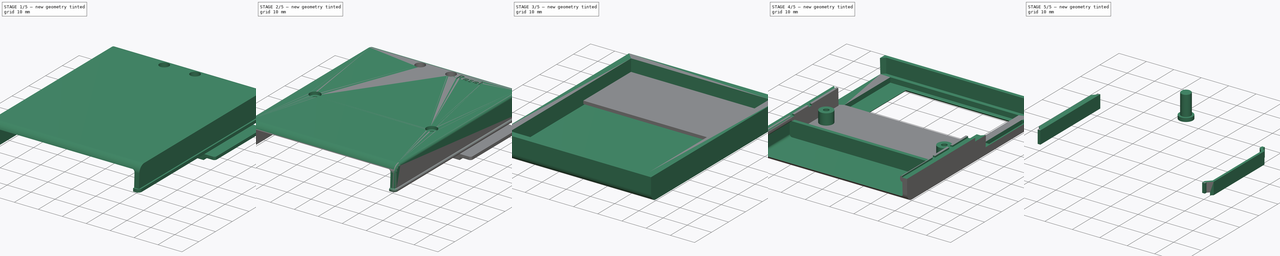
[diagram: build sequence overview — one tinted view per stage of 5, left to right]
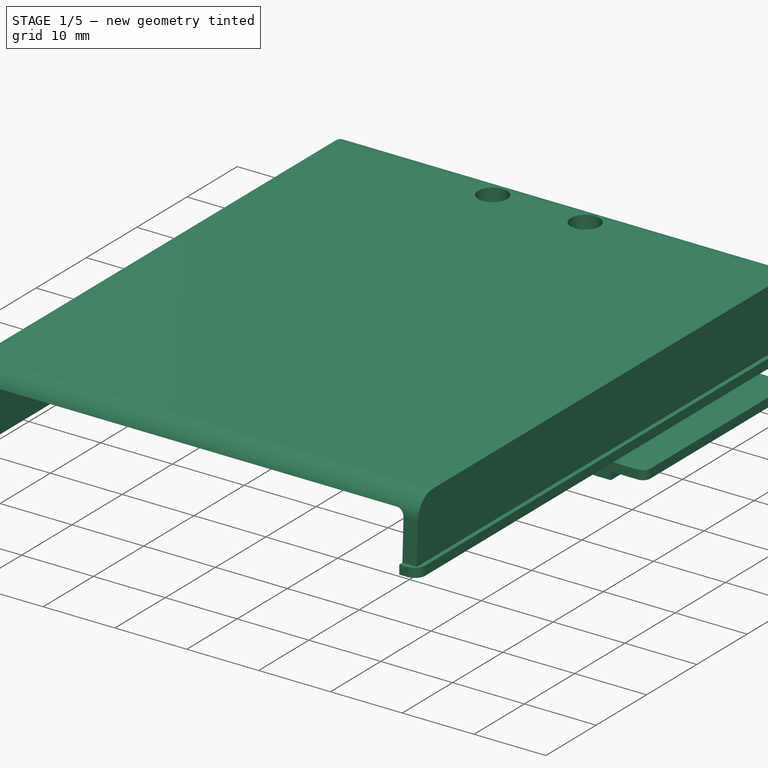
[diagram: stage 1 of 5 — iso view after this stage's code; geometry added in this stage tinted green]
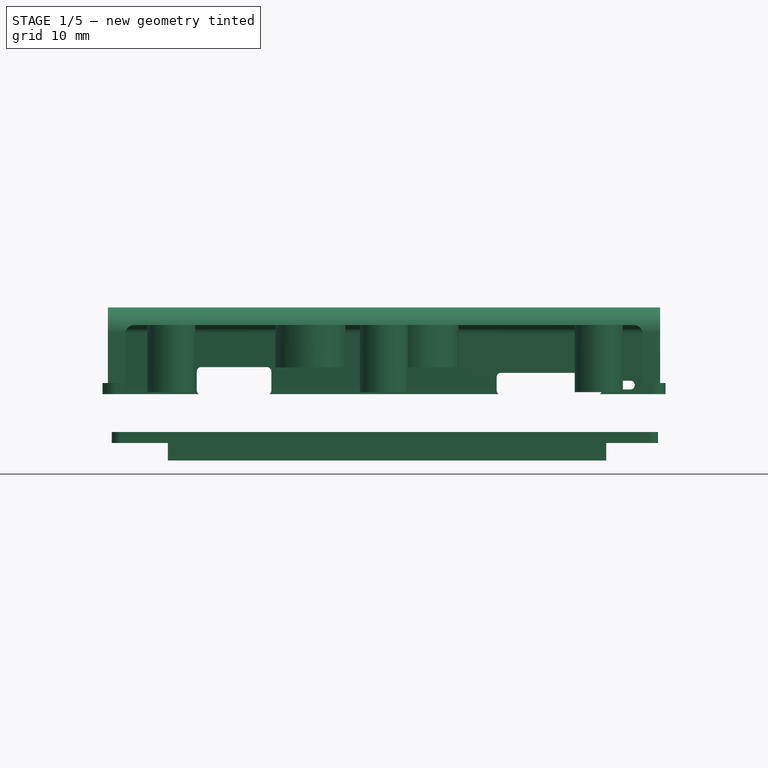
[diagram: stage 1 of 5 — front view after this stage's code; geometry added in this stage tinted green]
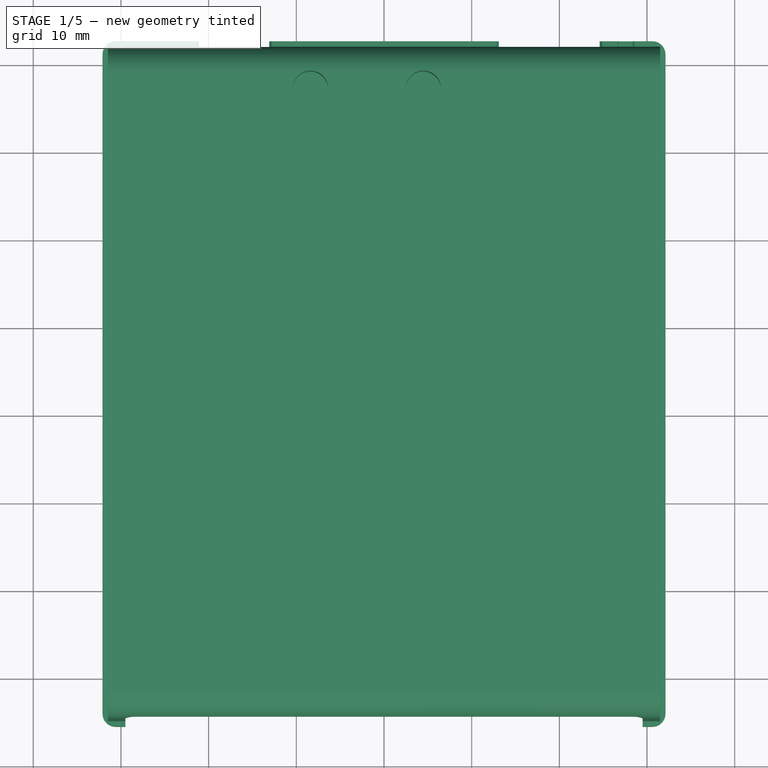
[diagram: stage 1 of 5 — top view after this stage's code; geometry added in this stage tinted green]
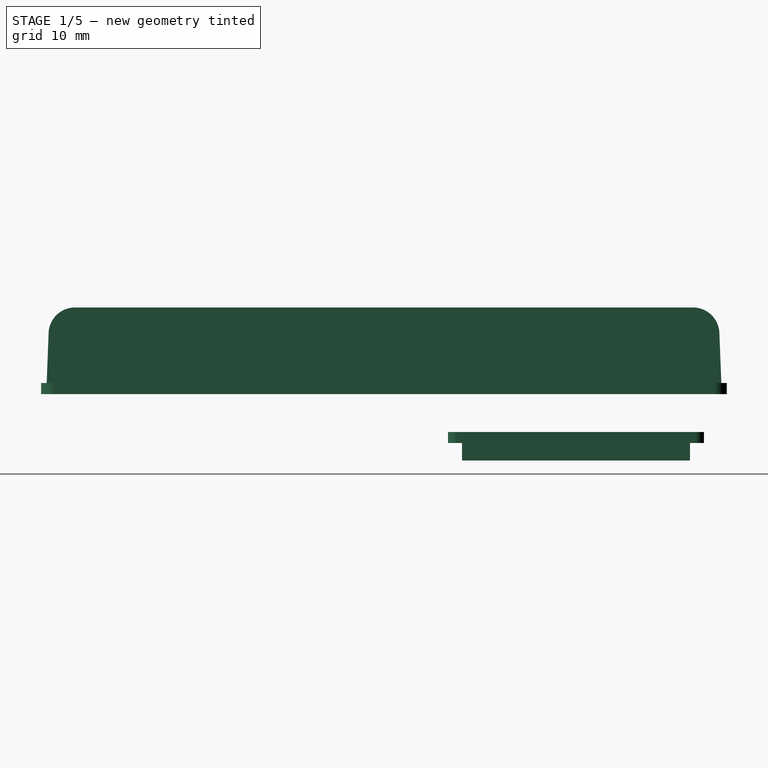
[diagram: stage 1 of 5 — right view after this stage's code; geometry added in this stage tinted green]
FCSTD DOCUMENT  (FreeCAD 1.0R39285 (Git))
Label: DecentCart2350
License: Creative Commons Attribution 4.0
LicenseURL: https://creativecommons.org/licenses/by/4.0/
objects: Part::Feature×97, App::Link×62, Sketcher::SketchObject×31, App::Part×27, PartDesign::Pocket×19, PartDesign::Pad×18, PartDesign::SubShapeBinder×14, PartDesign::Body×7, PartDesign::Fillet×5, PartDesign::Point×2, PartDesign::Draft×2, PartDesign::Thickness×2, PartDesign::Plane×2, PartDesign::Line×1, PartDesign::Chamfer×1, PartDesign::FeatureBase×1, Part::Part2DObjectPython×1, PartDesign::CoordinateSystem×1
note: 330 computed .brp shape members not serialized (recipe doc carries the construction recipe); baked Part::Feature solids carry a one-line shape summary decoded from their .brp

FEATURE [Sketcher::SketchObject] Sketch
  ArcFitTolerance = 1e-06
  AttachmentSupport = -> [YZ_Plane008]
  FullyConstrained = true
  MakeInternals = false
  MapMode = 5
  Placement = pos=(0,0,0) rot=(0.57735,0.57735,0.57735;2.0944rad)
  sketch-geometry (7):
    g0: LineSegment StartX=-5 StartY=0 StartZ=0 EndX=-4.75 EndY=6.36769 EndZ=0
    g1: ArcOfCircle CenterX=-1.75231 CenterY=6.25 CenterZ=0 NormalX=0 NormalY=0 NormalZ=1 AngleXU=0 Radius=3 StartAngle=1.5708 EndAngle=3.10235
    g2: LineSegment StartX=-1.75231 StartY=9.25 StartZ=0 EndX=68.7523 EndY=9.25 EndZ=0
    g3: ArcOfCircle CenterX=68.7523 CenterY=6.25 CenterZ=0 NormalX=0 NormalY=0 NormalZ=1 AngleXU=0 Radius=3 StartAngle=0.0392405 EndAngle=1.5708
    g4: LineSegment StartX=71.75 StartY=6.36769 StartZ=0 EndX=72 EndY=0 EndZ=0
    g5: LineSegment StartX=72 StartY=0 StartZ=0 EndX=-5 EndY=0 EndZ=0
    g6: LineSegment [constr] StartX=33.5 StartY=0 StartZ=0 EndX=33.5 EndY=9.25 EndZ=0
  constraints (18):
    c: PointOnObject(g0,g-1)
    c: Tangent(g0,g1) = 1.5708
    c: Horizontal(g2)
    c: Tangent(g2,g3) = 1.5708
    c: Coincident(g4,g5)
    c: Coincident(g5,g0)
    c: Tangent(g3,g4) = 1.5708
    c: Tangent(g1,g2) = 1.5708
    c: Horizontal(g0,g3)
    c: Radius(g1) = 3
    c: DistanceX(g0,g3) = 76.5
    c: DistanceX(g0,g4) = 77
    c: PointOnObject(g6,g2)
    c: Symmetric(g1,g2,g6)
    c: DistanceY(g4,g2) = 9.25
    c: DistanceX(g0,g-3) = 5
    c: Symmetric(g0,g4,g6)
    c: PointOnObject(g6,g-1)
FEATURE [PartDesign::Pad] Pad  label="General shape of the thing"
  Direction = (1,0,0)
  Length = 63
  Length2 = 10
  Midplane = true
  Placement = pos=(0,0,0) rot=(1,1,1;2.0944rad)
  Profile = -> Sketch
  ReferenceAxis = -> Sketch [N_Axis]
  Suppressed = false
  Type = 0
FEATURE [PartDesign::Thickness] Thickness  label="Dig the insides"
  Base = -> Pad [Face6]
  BaseFeature = -> Pad
  Intersection = false
  Join = 0
  Mode = 0
  Reversed = true
  SupportTransform = false
  Suppressed = false
  Value = 2
FEATURE [Sketcher::SketchObject] Sketch001
  ArcFitTolerance = 1e-06
  AttachmentSupport = -> [Thickness]
  ExternalGeometry = -> [Thickness]
  FullyConstrained = true
  MakeInternals = false
  MapMode = 5
  Placement = pos=(0,0,-2e-16) rot=(1,0,0;3.14159rad)
  expr: Constraints[15] = .Constraints.offset
  expr: Constraints[16] = .Constraints.offset
  expr: Constraints[17] = .Constraints.offset
  sketch-geometry (16):
    g0: LineSegment StartX=-29.5 StartY=2.99846 StartZ=0 EndX=-29.5 EndY=-69.9985 EndZ=0
    g1: LineSegment StartX=-29.5 StartY=-69.9985 StartZ=0 EndX=29.5 EndY=-69.9985 EndZ=0
    g2: LineSegment StartX=29.5 StartY=-69.9985 StartZ=0 EndX=29.5 EndY=2.99846 EndZ=0
    g3: LineSegment StartX=29.5 StartY=2.99846 StartZ=0 EndX=-29.5 EndY=2.99846 EndZ=0
    g4: LineSegment StartX=-32.1 StartY=4.1 StartZ=0 EndX=-32.1 EndY=-71.1 EndZ=0
    g5: LineSegment StartX=-30.6 StartY=-72.6 StartZ=0 EndX=30.6 EndY=-72.6 EndZ=0
    g6: LineSegment StartX=32.1 StartY=-71.1 StartZ=0 EndX=32.1 EndY=4.1 EndZ=0
    g7: LineSegment StartX=30.6 StartY=5.6 StartZ=0 EndX=-30.6 EndY=5.6 EndZ=0
    g8: ArcOfCircle CenterX=-30.6 CenterY=4.1 CenterZ=0 NormalX=0 NormalY=0 NormalZ=1 AngleXU=0 Radius=1.5 StartAngle=1.5708 EndAngle=3.14159
    g9: GeomPoint [constr] X=-32.1 Y=5.6 Z=0
    g10: ArcOfCircle CenterX=30.6 CenterY=4.1 CenterZ=0 NormalX=0 NormalY=0 NormalZ=1 AngleXU=0 Radius=1.5 StartAngle=3e-16 EndAngle=1.5708
    g11: GeomPoint [constr] X=32.1 Y=5.6 Z=0
    g12: ArcOfCircle CenterX=30.6 CenterY=-71.1 CenterZ=0 NormalX=0 NormalY=0 NormalZ=1 AngleXU=0 Radius=1.5 StartAngle=4.71239 EndAngle=6.28319
    g13: GeomPoint [constr] X=32.1 Y=-72.6 Z=0
    g14: ArcOfCircle CenterX=-30.6 CenterY=-71.1 CenterZ=0 NormalX=0 NormalY=0 NormalZ=1 AngleXU=0 Radius=1.5 StartAngle=3.14159 EndAngle=4.71239
    g15: GeomPoint [constr] X=-32.1 Y=-72.6 Z=0
  constraints (38):
    c: Coincident(g0,g1)
    c: Coincident(g1,g2)
    c: Coincident(g2,g3)
    c: Coincident(g3,g0)
    c: Vertical(g0)
    c: Vertical(g2)
    c: Horizontal(g1)
    c: Horizontal(g3)
    c: Coincident(g0,g-8)
    c: Coincident(g1,g-10)
    c: Vertical(g4)
    c: Vertical(g6)
    c: Horizontal(g5)
    c: Horizontal(g7)
    c: DistanceX(g9,g-3) = 0.6  'offset'
    c: DistanceY(g-3,g9) = 0.6
    c: DistanceX(g-5,g13) = 0.6
    c: DistanceY(g13,g-5) = 0.6
    c: PointOnObject(g9,g4)
    c: PointOnObject(g9,g7)
    c: Tangent(g4,g8) = -1.5708
    c: Tangent(g7,g8) = -1.5708
    c: PointOnObject(g11,g7)
    c: PointOnObject(g11,g6)
    c: Tangent(g7,g10) = -1.5708
    c: Tangent(g6,g10) = -1.5708
    c: PointOnObject(g13,g6)
    c: PointOnObject(g13,g5)
    c: Tangent(g6,g12) = -1.5708
    c: Tangent(g5,g12) = -1.5708
    c: PointOnObject(g15,g5)
    c: PointOnObject(g15,g4)
    c: Tangent(g5,g14) = -1.5708
    c: Tangent(g4,g14) = -1.5708
    c: Radius(g8) = 1.5
    c: Equal(g8,g10)
    c: Equal(g8,g14)
    c: Equal(g8,g12)
FEATURE [PartDesign::Pad] Pad001  label="Rim"
  BaseFeature = -> Thickness
  Direction = (0,0,-1)
  Length = 1.27
  Length2 = 10
  Midplane = true
  Profile = -> Sketch001
  ReferenceAxis = -> Sketch001 [N_Axis]
  Refine = true
  Suppressed = false
  Type = 0
FEATURE [PartDesign::Plane] DatumPlane  label="Top of PCB"
  AttachmentOffset = pos=(0,0,-2) rot=(0,0,1;0rad)
  AttachmentSupport = -> [Pad001]
  Length = 80.0315
  MapMode = 2
  Placement = pos=(0,0,-2) rot=(0,0,1;0rad)
  ResizeMode = 0
  Width = 113.432
FEATURE [PartDesign::Plane] DatumPlane001  label="Bottom of PCB"
  AttachmentOffset = pos=(0,0,-0.4) rot=(0,0,1;0rad)
  AttachmentSupport = -> [XY_Plane008]
  Length = 80.0315
  MapMode = 5
  Placement = pos=(0,0,-0.4) rot=(0,0,1;0rad)
  ResizeMode = 0
  Width = 113.432
FEATURE [Sketcher::SketchObject] Sketch002
  ArcFitTolerance = 1e-06
  AttachmentOffset = pos=(0,0,-73) rot=(0,0,1;0rad)
  AttachmentSupport = -> [XZ_Plane008]
  FullyConstrained = true
  MakeInternals = false
  MapMode = 5
  Placement = pos=(0,73,-1.62e-14) rot=(1,0,0;1.5708rad)
  sketch-geometry (28):
    g0: LineSegment StartX=12.85 StartY=1.3 StartZ=0 EndX=12.85 EndY=-0.2 EndZ=0
    g1: LineSegment StartX=13.35 StartY=-0.7 StartZ=0 EndX=24.35 EndY=-0.7 EndZ=0
    g2: LineSegment StartX=24.85 StartY=-0.2 StartZ=0 EndX=24.85 EndY=1.3 EndZ=0
    g3: LineSegment StartX=24.35 StartY=1.8 StartZ=0 EndX=13.35 EndY=1.8 EndZ=0
    g4: LineSegment StartX=-21.35 StartY=1.95 StartZ=0 EndX=-21.35 EndY=-0.2 EndZ=0
    g5: LineSegment StartX=-20.85 StartY=-0.7 StartZ=0 EndX=-13.35 EndY=-0.7 EndZ=0
    g6: LineSegment StartX=-12.85 StartY=-0.2 StartZ=0 EndX=-12.85 EndY=1.95 EndZ=0
    g7: LineSegment StartX=-13.35 StartY=2.45 StartZ=0 EndX=-20.85 EndY=2.45 EndZ=0
    g8: ArcOfCircle CenterX=13.35 CenterY=1.3 CenterZ=0 NormalX=0 NormalY=0 NormalZ=1 AngleXU=0 Radius=0.5 StartAngle=1.5708 EndAngle=3.14159
    g9: GeomPoint [constr] X=12.85 Y=1.8 Z=0
    g10: ArcOfCircle CenterX=13.35 CenterY=-0.2 CenterZ=0 NormalX=0 NormalY=0 NormalZ=1 AngleXU=0 Radius=0.5 StartAngle=3.14159 EndAngle=4.71239
    g11: GeomPoint [constr] X=12.85 Y=-0.7 Z=0
    g12: ArcOfCircle CenterX=24.35 CenterY=1.3 CenterZ=0 NormalX=0 NormalY=0 NormalZ=1 AngleXU=0 Radius=0.5 StartAngle=2e-16 EndAngle=1.5708
    g13: GeomPoint [constr] X=24.85 Y=1.8 Z=0
    g14: ArcOfCircle CenterX=24.35 CenterY=-0.2 CenterZ=0 NormalX=0 NormalY=0 NormalZ=1 AngleXU=0 Radius=0.5 StartAngle=4.71239 EndAngle=6.28319
    g15: GeomPoint [constr] X=24.85 Y=-0.7 Z=0
    g16: ArcOfCircle CenterX=-20.85 CenterY=1.95 CenterZ=0 NormalX=0 NormalY=0 NormalZ=1 AngleXU=0 Radius=0.5 StartAngle=1.5708 EndAngle=3.14159
    g17: GeomPoint [constr] X=-21.35 Y=2.45 Z=0
    g18: ArcOfCircle CenterX=-20.85 CenterY=-0.2 CenterZ=0 NormalX=0 NormalY=0 NormalZ=1 AngleXU=0 Radius=0.5 StartAngle=3.14159 EndAngle=4.71239
    g19: GeomPoint [constr] X=-21.35 Y=-0.7 Z=0
    g20: ArcOfCircle CenterX=-13.35 CenterY=-0.2 CenterZ=0 NormalX=0 NormalY=0 NormalZ=1 AngleXU=0 Radius=0.5 StartAngle=4.71239 EndAngle=6.28319
    g21: GeomPoint [constr] X=-12.85 Y=-0.7 Z=0
    g22: ArcOfCircle CenterX=-13.35 CenterY=1.95 CenterZ=0 NormalX=0 NormalY=0 NormalZ=1 AngleXU=0 Radius=0.5 StartAngle=0 EndAngle=1.5708
    g23: GeomPoint [constr] X=-12.85 Y=2.45 Z=0
    g24: ArcOfCircle CenterX=28.1 CenterY=0.4 CenterZ=0 NormalX=0 NormalY=0 NormalZ=1 AngleXU=0 Radius=0.5 StartAngle=4.71239 EndAngle=7.85398
    g25: ArcOfCircle CenterX=27.1 CenterY=0.4 CenterZ=0 NormalX=0 NormalY=0 NormalZ=1 AngleXU=0 Radius=0.5 StartAngle=1.5708 EndAngle=4.71239
    g26: LineSegment StartX=28.1 StartY=-0.1 StartZ=0 EndX=27.1 EndY=-0.1 EndZ=0
    g27: LineSegment StartX=28.1 StartY=0.9 StartZ=0 EndX=27.1 EndY=0.9 EndZ=0
  constraints (66):
    c: Vertical(g0)
    c: Vertical(g2)
    c: Horizontal(g1)
    c: Horizontal(g3)
    c: Vertical(g4)
    c: Vertical(g6)
    c: Horizontal(g5)
    c: Horizontal(g7)
    c: PointOnObject(g9,g3)
    c: PointOnObject(g9,g0)
    c: Tangent(g3,g8) = -1.5708
    c: Tangent(g0,g8) = -1.5708
    c: Radius(g8) = 0.5  'fillet'
    c: PointOnObject(g11,g1)
    c: PointOnObject(g11,g0)
    c: Tangent(g1,g10) = -1.5708
    c: Tangent(g0,g10) = -1.5708
    c: PointOnObject(g13,g2)
    c: PointOnObject(g13,g3)
    c: Tangent(g2,g12) = -1.5708
    c: Tangent(g3,g12) = -1.5708
    c: PointOnObject(g15,g2)
    c: PointOnObject(g15,g1)
    c: Tangent(g2,g14) = -1.5708
    c: Tangent(g1,g14) = -1.5708
    c: Equal(g8,g12)
    c: Equal(g8,g14)
    c: Equal(g8,g10)
    c: DistanceX(g-1,g0) = 12.85
    c: DistanceX(g0,g2) = 12
    c: PointOnObject(g17,g7)
    c: PointOnObject(g17,g4)
    c: Tangent(g7,g16) = -1.5708
    c: Tangent(g4,g16) = -1.5708
    c: PointOnObject(g19,g4)
    c: PointOnObject(g19,g5)
    c: Tangent(g4,g18) = -1.5708
    c: Tangent(g5,g18) = -1.5708
    c: PointOnObject(g21,g5)
    c: PointOnObject(g21,g6)
    c: Tangent(g5,g20) = -1.5708
    c: Tangent(g6,g20) = -1.5708
    c: PointOnObject(g23,g6)
    c: PointOnObject(g23,g7)
    c: Tangent(g6,g22) = -1.5708
    c: Tangent(g7,g22) = -1.5708
    c: Equal(g22,g8)
    c: Equal(g16,g22)
    c: Equal(g16,g20)
    c: Equal(g16,g18)
    c: DistanceX(g6,g-1) = 12.85
    c: DistanceX(g4,g6) = 8.5
    c: DistanceY(g5,g7) = 3.15
    c: DistanceY(g-1,g7) = 2.45
    c: DistanceY(g3,g7) = 0.65
    c: Horizontal(g1,g5)
    c: Tangent(g24,g26) = 1.5708
    c: Tangent(g24,g27) = -1.5708
    c: Tangent(g25,g26) = 1.5708
    c: Tangent(g25,g27) = -1.5708
    c: Equal(g24,g25)
    c: Horizontal(g26)
    c: DistanceY(g24,g24) = 1
    c: DistanceX(g25,g24) = 1
    c: DistanceY(g-1,g24) = 0.4
    c: DistanceX(g-1,g25) = 27.1
FEATURE [PartDesign::Pocket] Pocket  label="SD and USB slots"
  BaseFeature = -> Pad001
  Direction = (0,1,-2e-16)
  Length = 4
  Length2 = 5
  Profile = -> Sketch002
  ReferenceAxis = -> Sketch002 [N_Axis]
  Reversed = true
  Suppressed = false
  Type = 0
FEATURE [Sketcher::SketchObject] Sketch003
  ArcFitTolerance = 1e-06
  AttachmentOffset = pos=(0,0,-2) rot=(0,0,1;0rad)
  AttachmentSupport = -> [Pocket]
  FullyConstrained = true
  MakeInternals = false
  MapMode = 5
  Placement = pos=(0,2e-15,7.25) rot=(0,0,1;0rad)
  sketch-geometry (4):
    g0: Circle CenterX=-8.39 CenterY=67.1 CenterZ=0 NormalX=0 NormalY=0 NormalZ=1 AngleXU=0 Radius=4
    g1: Circle CenterX=4.49 CenterY=67.1 CenterZ=0 NormalX=0 NormalY=0 NormalZ=1 AngleXU=0 Radius=4
    g2: Circle CenterX=-8.39 CenterY=67.1 CenterZ=0 NormalX=0 NormalY=0 NormalZ=1 AngleXU=0 Radius=2
    g3: Circle CenterX=4.49 CenterY=67.1 CenterZ=0 NormalX=0 NormalY=0 NormalZ=1 AngleXU=0 Radius=2
  constraints (10):
    c: Horizontal(g0,g1)
    c: Equal(g0,g1)
    c: Diameter(g0) = 8
    c: Distance(g1,g-2) = 4.49
    c: Distance(g0,g-2) = 8.39
    c: Distance(g1,g-1) = 67.1
    c: Diameter(g2) = 4
    c: Coincident(g2,g0)
    c: Coincident(g3,g1)
    c: Equal(g3,g2)
FEATURE [PartDesign::Pad] Pad002  label="Button columns"
  BaseFeature = -> Pocket
  Direction = (0,0,1)
  Length = 4.85
  Length2 = 10
  Profile = -> Sketch003 [Edge2,Edge1]
  ReferenceAxis = -> Sketch003 [N_Axis]
  Reversed = true
  Suppressed = false
  Type = 0
FEATURE [PartDesign::Pocket] Pocket001  label="Button pockets"
  BaseFeature = -> Pad002
  Direction = (0,0,-1)
  Length = 5
  Length2 = 5
  Midplane = true
  Profile = -> Sketch003 [Edge4,Edge3]
  ReferenceAxis = -> Sketch003 [N_Axis]
  Suppressed = false
  Type = 1
FEATURE [PartDesign::Body] Body002  label="Boot select button"
  AllowCompound = false
  Group = -> [Clone]
  Origin = -> Origin010
  Placement = pos=(-12.88,0,-0.85) rot=(0,0,1;0rad)
  Tip = -> Clone
FEATURE [Sketcher::SketchObject] Sketch005
  ArcFitTolerance = 1e-06
  AttachmentSupport = -> [XZ_Plane008]
  ExternalGeometry = -> [Pocket001]
  FullyConstrained = true
  MakeInternals = false
  MapMode = 5
  Placement = pos=(0,0,0) rot=(1,0,0;1.5708rad)
  sketch-geometry (8):
    g0: LineSegment StartX=-29.5 StartY=-0.635 StartZ=0 EndX=29.5 EndY=-0.635 EndZ=0
    g1: LineSegment StartX=29.5 StartY=-0.635 StartZ=0 EndX=29.5 EndY=6.25 EndZ=0
    g2: LineSegment StartX=28.5 StartY=7.25 StartZ=0 EndX=-28.5 EndY=7.25 EndZ=0
    g3: LineSegment StartX=-29.5 StartY=6.25 StartZ=0 EndX=-29.5 EndY=-0.635 EndZ=0
    g4: ArcOfCircle CenterX=-28.5 CenterY=6.25 CenterZ=0 NormalX=0 NormalY=0 NormalZ=1 AngleXU=0 Radius=1 StartAngle=1.5708 EndAngle=3.14159
    g5: GeomPoint [constr] X=-29.5 Y=7.25 Z=0
    g6: ArcOfCircle CenterX=28.5 CenterY=6.25 CenterZ=0 NormalX=0 NormalY=0 NormalZ=1 AngleXU=0 Radius=1 StartAngle=4e-16 EndAngle=1.5708
    g7: GeomPoint [constr] X=29.5 Y=7.25 Z=0
  constraints (18):
    c: Coincident(g0,g1)
    c: Coincident(g3,g0)
    c: Horizontal(g0)
    c: Horizontal(g2)
    c: Vertical(g1)
    c: Vertical(g3)
    c: Coincident(g0,g-4)
    c: Coincident(g7,g-3)
    c: PointOnObject(g5,g3)
    c: PointOnObject(g5,g2)
    c: Tangent(g3,g4) = -1.5708
    c: Tangent(g2,g4) = -1.5708
    c: PointOnObject(g7,g2)
    c: PointOnObject(g7,g1)
    c: Tangent(g2,g6) = -1.5708
    c: Tangent(g1,g6) = -1.5708
    c: Equal(g4,g6)
    c: Radius(g4) = 1
FEATURE [PartDesign::Pocket] Pocket002  label="PCB opening"
  BaseFeature = -> Pocket001
  Direction = (0,1,-2e-16)
  Length = 5
  Length2 = 5
  Profile = -> Sketch005
  ReferenceAxis = -> Sketch005 [N_Axis]
  Refine = true
  Reversed = true
  Suppressed = false
  Type = 1
FEATURE [Sketcher::SketchObject] Sketch006
  ArcFitTolerance = 1e-06
  AttachmentSupport = -> [Pocket002]
  FullyConstrained = true
  MakeInternals = false
  MapMode = 5
  Placement = pos=(0,2e-15,9.25) rot=(0,0,1;0rad)
  sketch-geometry (9):
    g0: Circle CenterX=-24.25 CenterY=27 CenterZ=0 NormalX=0 NormalY=0 NormalZ=1 AngleXU=0 Radius=2.75
    g1: Circle CenterX=24.5 CenterY=27 CenterZ=0 NormalX=0 NormalY=0 NormalZ=1 AngleXU=0 Radius=2.75
    g2: Circle CenterX=0 CenterY=51.7 CenterZ=0 NormalX=0 NormalY=0 NormalZ=1 AngleXU=0 Radius=2.75
    g3: Circle CenterX=0 CenterY=51.7 CenterZ=0 NormalX=0 NormalY=0 NormalZ=1 AngleXU=0 Radius=1.1
    g4: Circle CenterX=-24.25 CenterY=27 CenterZ=0 NormalX=0 NormalY=0 NormalZ=1 AngleXU=0 Radius=1.1
    g5: Circle CenterX=24.5 CenterY=27 CenterZ=0 NormalX=0 NormalY=0 NormalZ=1 AngleXU=0 Radius=1.1
    g6: Circle CenterX=0 CenterY=51.7 CenterZ=0 NormalX=0 NormalY=0 NormalZ=1 AngleXU=0 Radius=2.25
    g7: Circle CenterX=24.5 CenterY=27 CenterZ=0 NormalX=0 NormalY=0 NormalZ=1 AngleXU=0 Radius=2.25
    g8: Circle CenterX=-24.25 CenterY=27 CenterZ=0 NormalX=0 NormalY=0 NormalZ=1 AngleXU=0 Radius=2.25
  constraints (21):
    c: PointOnObject(g2,g-2)
    c: Coincident(g3,g2)
    c: Coincident(g4,g0)
    c: Coincident(g5,g1)
    c: Equal(g3,g4)
    c: Equal(g3,g5)
    c: Equal(g2,g1)
    c: Equal(g2,g0)
    c: Diameter(g3) = 2.2
    c: Diameter(g2) = 5.5
    c: DistanceY(g-1,g2) = 51.7
    c: DistanceX(g-1,g1) = 24.5
    c: DistanceY(g-1,g1) = 27
    c: Diameter(g6) = 4.5
    c: Coincident(g6,g2)
    c: Coincident(g7,g1)
    c: Coincident(g8,g0)
    c: Equal(g6,g8)
    c: Equal(g6,g7)
    c: DistanceX(g0,g-1) = 24.25
    c: Horizontal(g0,g1)
FEATURE [PartDesign::Pad] Pad005  label="Screw columns"
  BaseFeature = -> Pocket002
  Direction = (0,0,1)
  Length = 10
  Length2 = 10
  Profile = -> Sketch006 [Edge3,Edge1,Edge2]
  ReferenceAxis = -> Sketch006 [N_Axis]
  Refine = true
  Reversed = true
  Suppressed = false
  Type = 3
  UpToFace = -> DatumPlane001
FEATURE [PartDesign::SubShapeBinder] Binder009
  BindCopyOnChange = 0
  BindMode = 0
  ClaimChildren = false
  Context = -> Board_9dbe [Body004.Binder009.]
  Fuse = false
  MakeFace = true
  OffsetFill = false
  OffsetIntersection = false
  OffsetJoinType = 0
  OffsetOpenResult = false
  PartialLoad = false
  Relative = true
  Support = -> [Board_Geoms_9dbe[PCB_Sketch_9dbe.]]
  _Version = 2
FEATURE [Sketcher::SketchObject] Sketch028
  ArcFitTolerance = 1e-06
  AttachmentOffset = pos=(0,0,-4.95) rot=(0,0,1;0rad)
  AttachmentSupport = -> [XY_Plane]
  ExternalGeometry = -> [Binder009]
  FullyConstrained = true
  MakeInternals = false
  MapMode = 5
  Placement = pos=(0,0,-4.95) rot=(0,0,1;0rad)
  sketch-geometry (10):
    g0: LineSegment StartX=30.25 StartY=70 StartZ=0 EndX=-30.05 EndY=70 EndZ=0
    g1: LineSegment StartX=-31.05 StartY=69 StartZ=0 EndX=-31.05 EndY=41.8 EndZ=0
    g2: LineSegment StartX=-30.05 StartY=40.8 StartZ=0 EndX=30.25 EndY=40.8 EndZ=0
    g3: LineSegment StartX=31.25 StartY=41.8 StartZ=0 EndX=31.25 EndY=69 EndZ=0
    g4: ArcOfCircle CenterX=30.25 CenterY=69 CenterZ=0 NormalX=0 NormalY=0 NormalZ=1 AngleXU=0 Radius=1 StartAngle=1.6e-15 EndAngle=1.5708
    g5: ArcOfCircle CenterX=-30.05 CenterY=69 CenterZ=0 NormalX=0 NormalY=0 NormalZ=1 AngleXU=0 Radius=1 StartAngle=1.5708 EndAngle=3.14159
    g6: ArcOfCircle CenterX=-30.05 CenterY=41.8 CenterZ=0 NormalX=0 NormalY=0 NormalZ=1 AngleXU=0 Radius=1 StartAngle=3.14159 EndAngle=4.71239
    g7: ArcOfCircle CenterX=30.25 CenterY=41.8 CenterZ=0 NormalX=0 NormalY=0 NormalZ=1 AngleXU=0 Radius=1 StartAngle=4.71239 EndAngle=6.28319
    g8: GeomPoint [constr] X=31.25 Y=70 Z=0
    g9: GeomPoint [constr] X=-31.05 Y=40.8 Z=0
  constraints (24):
    c: Tangent(g0,g4) = -1.5708
    c: Tangent(g0,g5) = -1.5708
    c: Tangent(g1,g5) = -1.5708
    c: Tangent(g1,g6) = -1.5708
    c: Tangent(g2,g6) = -1.5708
    c: Tangent(g2,g7) = -1.5708
    c: Tangent(g3,g7) = -1.5708
    c: Tangent(g3,g4) = -1.5708
    c: Horizontal(g0)
    c: Horizontal(g2)
    c: Vertical(g1)
    c: Vertical(g3)
    c: Equal(g4,g5)
    c: Equal(g5,g6)
    c: Equal(g6,g7)
    c: PointOnObject(g8,g0)
    c: PointOnObject(g8,g3)
    c: PointOnObject(g9,g1)
    c: PointOnObject(g9,g2)
    c: Radius(g5) = 1
    c: PointOnObject(g3,g-3)
    c: PointOnObject(g0,g-4)
    c: DistanceX(g1,g3) = 62.3
    c: DistanceY(g2,g0) = 29.2
FEATURE [PartDesign::Pad] Pad018  label="Display PCB"
  Direction = (0,0,1)
  Length = 1.25
  Length2 = 10
  Profile = -> Sketch028
  ReferenceAxis = -> Sketch028 [N_Axis]
  Reversed = true
  Suppressed = false
  Type = 0
FEATURE [Sketcher::SketchObject] Sketch029
  ArcFitTolerance = 1e-06
  AttachmentSupport = -> [Pad018]
  ExternalGeometry = -> [Pad018]
  FullyConstrained = true
  MakeInternals = false
  MapMode = 5
  Placement = pos=(0,0,-6.2) rot=(1,0,0;3.14159rad)
  sketch-geometry (8):
    g0: LineSegment StartX=-24.65 StartY=-42.4 StartZ=0 EndX=-24.65 EndY=-68.4 EndZ=0
    g1: LineSegment StartX=-24.65 StartY=-68.4 StartZ=0 EndX=25.35 EndY=-68.4 EndZ=0
    g2: LineSegment StartX=25.35 StartY=-68.4 StartZ=0 EndX=25.35 EndY=-42.4 EndZ=0
    g3: LineSegment StartX=25.35 StartY=-42.4 StartZ=0 EndX=-24.65 EndY=-42.4 EndZ=0
    g4: GeomPoint [constr] X=0.1 Y=-55.4 Z=0
    g5: GeomPoint [constr] X=-31.05 Y=-55.4 Z=0
    g6: GeomPoint [constr] X=31.25 Y=-55.4 Z=0
    g7: LineSegment [constr] StartX=-31.05 StartY=-55.4 StartZ=0 EndX=31.25 EndY=-55.4 EndZ=0
  constraints (16):
    c: Coincident(g0,g1)
    c: Coincident(g1,g2)
    c: Coincident(g2,g3)
    c: Coincident(g3,g0)
    c: Vertical(g2)
    c: Horizontal(g1)
    c: Horizontal(g3)
    c: DistanceX(g3,g3) = 50
    c: DistanceY(g2,g2) = 26
    c: Symmetric(g-3,g-4,g4)
    c: Symmetric(g-3,g-3,g5)
    c: Symmetric(g-4,g-4,g6)
    c: Coincident(g7,g5)
    c: Coincident(g7,g6)
    c: Symmetric(g0,g0,g7)
    c: DistanceX(g-3,g0) = 6.4
FEATURE [PartDesign::Pad] Pad019  label="Display glass"
  BaseFeature = -> Pad018
  Direction = (0,0,-1)
  Length = 2
  Length2 = 10
  Profile = -> Sketch029
  ReferenceAxis = -> Sketch029 [N_Axis]
  Suppressed = false
  Type = 0
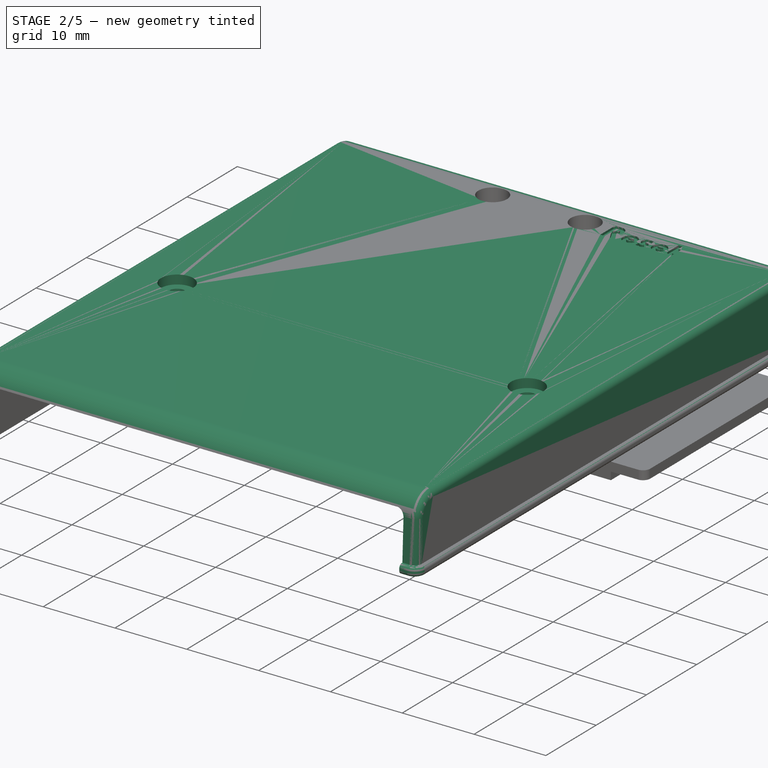
[diagram: stage 2 of 5 — iso view after this stage's code; geometry added in this stage tinted green]
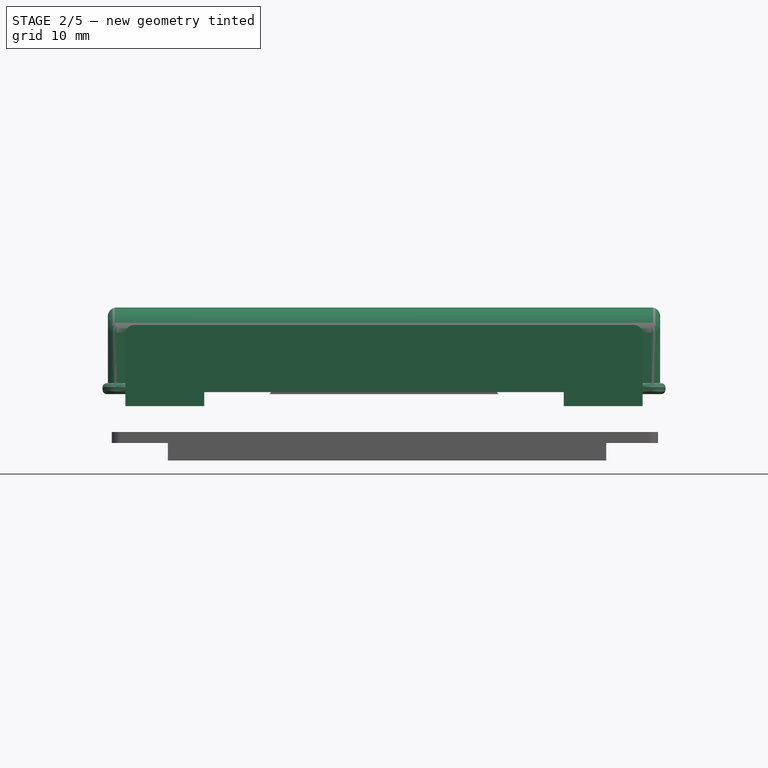
[diagram: stage 2 of 5 — front view after this stage's code; geometry added in this stage tinted green]
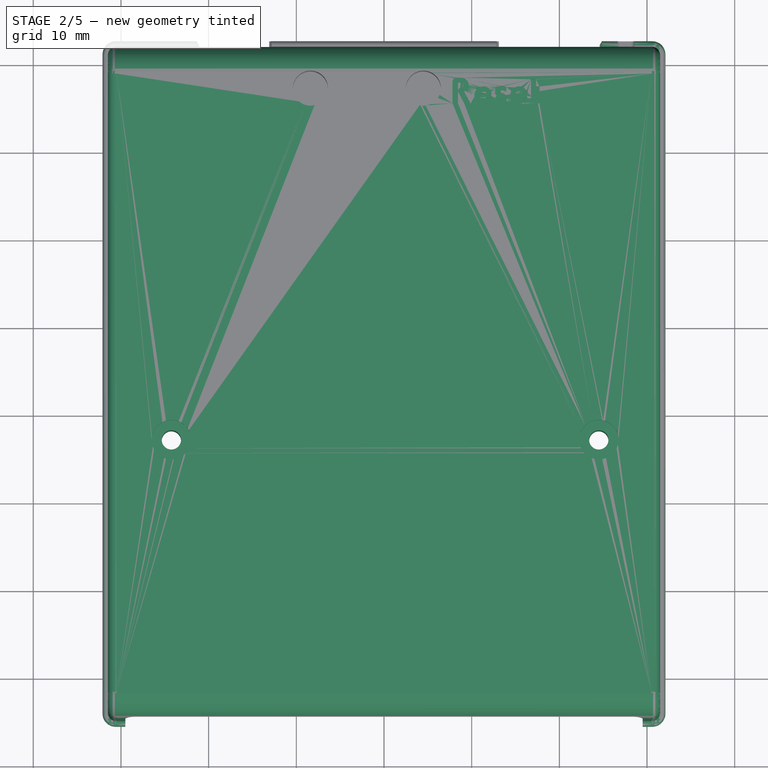
[diagram: stage 2 of 5 — top view after this stage's code; geometry added in this stage tinted green]
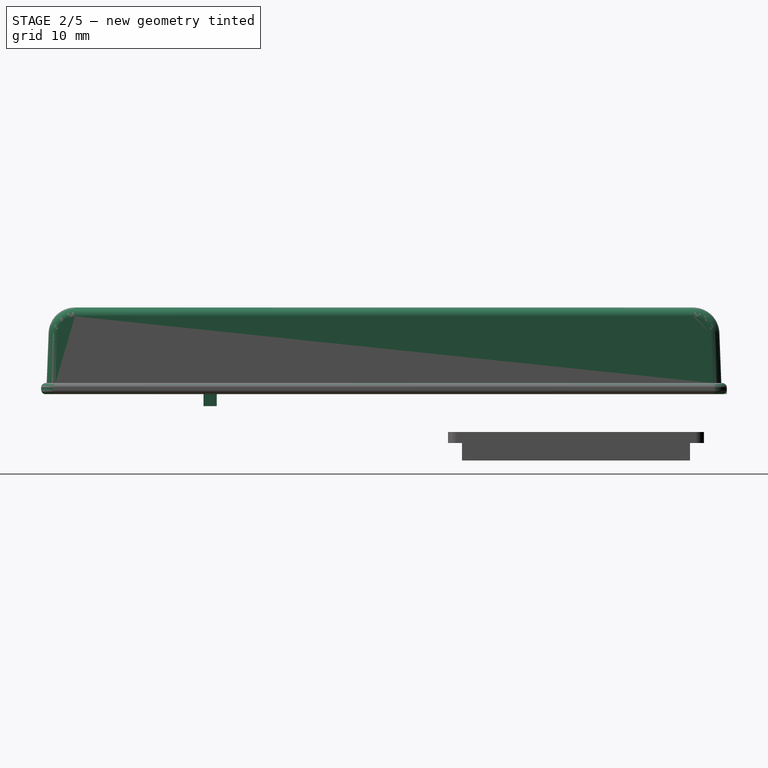
[diagram: stage 2 of 5 — right view after this stage's code; geometry added in this stage tinted green]
FEATURE [PartDesign::Pocket] Pocket003  label="Screw head recess"
  BaseFeature = -> Pad005
  Direction = (0,0,-1)
  Length = 1.25
  Length2 = 5
  Profile = -> Sketch006 [Edge9,Edge8]
  ReferenceAxis = -> Sketch006 [N_Axis]
  Suppressed = false
  Type = 0
FEATURE [PartDesign::Pocket] Pocket004  label="Screw tunnels"
  BaseFeature = -> Pocket003
  Direction = (0,0,-1)
  Length = 5
  Length2 = 5
  Profile = -> Sketch006 [Edge5,Edge6]
  ReferenceAxis = -> Sketch006 [N_Axis]
  Suppressed = false
  Type = 1
FEATURE [Sketcher::SketchObject] Sketch007
  ArcFitTolerance = 1e-06
  AttachmentSupport = -> [Pocket004]
  ExternalGeometry = -> [Pocket004]
  FullyConstrained = true
  MakeInternals = false
  MapMode = 5
  Placement = pos=(0,2.6e-15,7.25) rot=(1,0,0;3.14159rad)
  sketch-geometry (12):
    g0: LineSegment StartX=-29.5 StartY=-22.75 StartZ=0 EndX=-28 EndY=-23 EndZ=0
    g1: LineSegment StartX=-28 StartY=-23 StartZ=0 EndX=-28 EndY=-24.5 EndZ=0
    g2: LineSegment StartX=-28 StartY=-24.5 StartZ=0 EndX=-29.5 EndY=-24.75 EndZ=0
    g3: LineSegment StartX=-29.5 StartY=-24.75 StartZ=0 EndX=-29.5 EndY=-22.75 EndZ=0
    g4: LineSegment StartX=-29.5 StartY=-64 StartZ=0 EndX=-28 EndY=-64.25 EndZ=0
    g5: LineSegment StartX=-28 StartY=-64.25 StartZ=0 EndX=-28 EndY=-65.75 EndZ=0
    g6: LineSegment StartX=-28 StartY=-65.75 StartZ=0 EndX=-29.5 EndY=-66 EndZ=0
    g7: LineSegment StartX=-29.5 StartY=-66 StartZ=0 EndX=-29.5 EndY=-64 EndZ=0
    g8: LineSegment StartX=29.5 StartY=-22.75 StartZ=0 EndX=28 EndY=-23 EndZ=0
    g9: LineSegment StartX=28 StartY=-23 StartZ=0 EndX=28 EndY=-24.5 EndZ=0
    g10: LineSegment StartX=28 StartY=-24.5 StartZ=0 EndX=29.5 EndY=-24.75 EndZ=0
    g11: LineSegment StartX=29.5 StartY=-24.75 StartZ=0 EndX=29.5 EndY=-22.75 EndZ=0
  constraints (36):
    c: Coincident(g0,g1)
    c: Coincident(g1,g2)
    c: Coincident(g2,g3)
    c: Coincident(g3,g0)
    c: DistanceY(g1,g1) = 1.5
    c: DistanceY(g3,g3) = 2
    c: Equal(g0,g2)
    c: DistanceY(g0,g-1) = 23
    c: Coincident(g4,g5)
    c: Coincident(g5,g6)
    c: Coincident(g6,g7)
    c: Coincident(g7,g4)
    c: DistanceY(g5,g5) = 1.5
    c: DistanceY(g7,g7) = 2
    c: Equal(g4,g6)
    c: Coincident(g8,g9)
    c: Coincident(g9,g10)
    c: Coincident(g10,g11)
    c: Coincident(g11,g8)
    c: DistanceY(g9,g9) = 1.5
    c: DistanceY(g11,g11) = 2
    c: Equal(g8,g10)
    c: PointOnObject(g0,g-3)
    c: PointOnObject(g2,g-3)
    c: PointOnObject(g1,g-4)
    c: PointOnObject(g0,g-4)
    c: PointOnObject(g4,g-3)
    c: PointOnObject(g6,g-3)
    c: PointOnObject(g4,g-4)
    c: PointOnObject(g5,g-4)
    c: DistanceY(g4,g-1) = 64
    c: PointOnObject(g8,g-5)
    c: PointOnObject(g10,g-5)
    c: PointOnObject(g8,g-6)
    c: PointOnObject(g9,g-6)
    c: Horizontal(g8,g0)
FEATURE [PartDesign::Pad] Pad006  label="Side padding"
  BaseFeature = -> Pocket004
  Direction = (0,0,-1)
  Length = 10
  Length2 = 10
  Profile = -> Sketch007
  ReferenceAxis = -> Sketch007 [N_Axis]
  Refine = true
  Suppressed = false
  Type = 3
  UpToFace = -> Pocket004 [Face52]
FEATURE [PartDesign::Fillet] Fillet  label="Wide fillet"
  Base = -> Pad006 [Edge49,Edge122]
  BaseFeature = -> Pad006
  Radius = 1
  SupportTransform = false
  Suppressed = false
  UseAllEdges = false
FEATURE [PartDesign::Fillet] Fillet001  label="Thin fillet"
  Base = -> Fillet [Edge205,Edge78,Edge238,Edge168,Edge265,Edge252]
  BaseFeature = -> Fillet
  Radius = 0.5
  SupportTransform = false
  Suppressed = false
  UseAllEdges = false
FEATURE [PartDesign::Fillet] Fillet002  label="Column base fillet"
  Base = -> Fillet001 [Edge217,Edge218,Edge219]
  BaseFeature = -> Fillet001
  Radius = 1.5
  SupportTransform = false
  Suppressed = false
  UseAllEdges = false
FEATURE [Sketcher::SketchObject] Sketch008
  ArcFitTolerance = 1e-06
  AttachmentSupport = -> [Fillet002]
  ExternalGeometry = -> [Fillet002]
  FullyConstrained = true
  MakeInternals = false
  MapMode = 5
  Placement = pos=(0,2.6e-15,7.25) rot=(1,0,0;3.14159rad)
  sketch-geometry (4):
    g0: LineSegment StartX=-29.5 StartY=-12.9193 StartZ=0 EndX=-29.5 EndY=-14.4193 EndZ=0
    g1: LineSegment StartX=-29.5 StartY=-14.4193 StartZ=0 EndX=29.5 EndY=-14.4193 EndZ=0
    g2: LineSegment StartX=29.5 StartY=-14.4193 StartZ=0 EndX=29.5 EndY=-12.9193 EndZ=0
    g3: LineSegment StartX=29.5 StartY=-12.9193 StartZ=0 EndX=-29.5 EndY=-12.9193 EndZ=0
  constraints (12):
    c: Coincident(g0,g1)
    c: Coincident(g1,g2)
    c: Coincident(g2,g3)
    c: Coincident(g3,g0)
    c: Vertical(g0)
    c: Vertical(g2)
    c: Horizontal(g1)
    c: Horizontal(g3)
    c: PointOnObject(g2,g-3)
    c: PointOnObject(g0,g-4)
    c: DistanceY(g0,g0) = 1.5
    c: DistanceY(g0,g-5) = 17.5
FEATURE [PartDesign::Pad] Pad007  label="Lower barrier"
  BaseFeature = -> Fillet002
  Direction = (0,0,-1)
  Length = 6.6
  Length2 = 10
  Profile = -> Sketch008
  ReferenceAxis = -> Sketch008 [N_Axis]
  Refine = true
  Suppressed = false
  Type = 3
  UpToFace = -> DatumPlane001 [Plane]
FEATURE [Sketcher::SketchObject] Sketch009
  ArcFitTolerance = 1e-06
  AttachmentSupport = -> [Pad007]
  ExternalGeometry = -> [Pad007]
  FullyConstrained = true
  MakeInternals = false
  MapMode = 5
  Placement = pos=(0,0,-0.4) rot=(1,0,0;3.14159rad)
  sketch-geometry (8):
    g0: LineSegment StartX=-29.5 StartY=-12.9193 StartZ=0 EndX=-29.5 EndY=-14.4193 EndZ=0
    g1: LineSegment StartX=-29.5 StartY=-14.4193 StartZ=0 EndX=-22 EndY=-14.4193 EndZ=0
    g2: LineSegment StartX=-22 StartY=-14.4193 StartZ=0 EndX=-20.5 EndY=-12.9193 EndZ=0
    g3: LineSegment StartX=-20.5 StartY=-12.9193 StartZ=0 EndX=-29.5 EndY=-12.9193 EndZ=0
    g4: LineSegment StartX=29.5 StartY=-12.9193 StartZ=0 EndX=20.5 EndY=-12.9193 EndZ=0
    g5: LineSegment StartX=20.5 StartY=-12.9193 StartZ=0 EndX=22 EndY=-14.4193 EndZ=0
    g6: LineSegment StartX=22 StartY=-14.4193 StartZ=0 EndX=29.5 EndY=-14.4193 EndZ=0
    g7: LineSegment StartX=29.5 StartY=-14.4193 StartZ=0 EndX=29.5 EndY=-12.9193 EndZ=0
  constraints (20):
    c: Coincident(g0,g1)
    c: Coincident(g1,g2)
    c: Coincident(g2,g3)
    c: Coincident(g3,g0)
    c: Vertical(g0)
    c: Horizontal(g1)
    c: Horizontal(g3)
    c: Coincident(g4,g5)
    c: Coincident(g6,g7)
    c: Coincident(g7,g4)
    c: Horizontal(g6)
    c: Symmetric(g2,g4,g-2)
    c: DistanceX(g2,g4) = 41
    c: Coincident(g6,g5)
    c: Angle(g5,g4) = 0.785398
    c: Angle(g3,g2) = 0.785398
    c: Horizontal(g4)
    c: Coincident(g4,g-3)
    c: Coincident(g6,g-4)
    c: Coincident(g0,g-4)
FEATURE [PartDesign::Pad] Pad008  label="Top barrier"
  BaseFeature = -> Pad007
  Direction = (0,0,-1)
  Length = 1.6
  Length2 = 10
  Profile = -> Sketch009
  ReferenceAxis = -> Sketch009 [N_Axis]
  Refine = true
  Suppressed = false
  Type = 0
FEATURE [PartDesign::SubShapeBinder] Binder004  label="Back PCB opening binder"
  BindCopyOnChange = 0
  BindMode = 0
  ClaimChildren = false
  Context = -> Body003 [Binder004.]
  Fuse = false
  MakeFace = true
  OffsetFill = false
  OffsetIntersection = false
  OffsetJoinType = 0
  OffsetOpenResult = false
  PartialLoad = false
  Relative = true
  Support = -> [Body[Sketch005.]]
  _Version = 2
FEATURE [PartDesign::SubShapeBinder] Binder005  label="Screw column binder"
  BindCopyOnChange = 0
  BindMode = 0
  ClaimChildren = false
  Context = -> Body003 [Binder005.]
  Fuse = false
  MakeFace = true
  OffsetFill = false
  OffsetIntersection = false
  OffsetJoinType = 0
  OffsetOpenResult = false
  PartialLoad = false
  Relative = true
  Support = -> [Body[Sketch006.]]
  _Version = 2
FEATURE [Part::Part2DObjectPython] ShapeString  label="Reset"  # Draft 2D object (typed FeaturePython)
  FontFile = <path>
  Fuse = false
  Justification = 6
  JustificationReference = 0
  KeepLeftMargin = false
  MakeFace = true
  ObliqueAngle = 0
  Placement = pos=(7.8198,65.3531,9.25) rot=(0,0,-0.999058;0rad)
  ScaleToSize = true
  Size = 3
  String = Reset
  Tracking = 0
FEATURE [PartDesign::Pocket] Pocket011  label="Reset legend"
  BaseFeature = -> Pad008
  Direction = (0,0,-1)
  Length = 0.3
  Length2 = 5
  Profile = -> ShapeString
  ReferenceAxis = -> ShapeString [N_Axis]
  Suppressed = false
  Type = 0
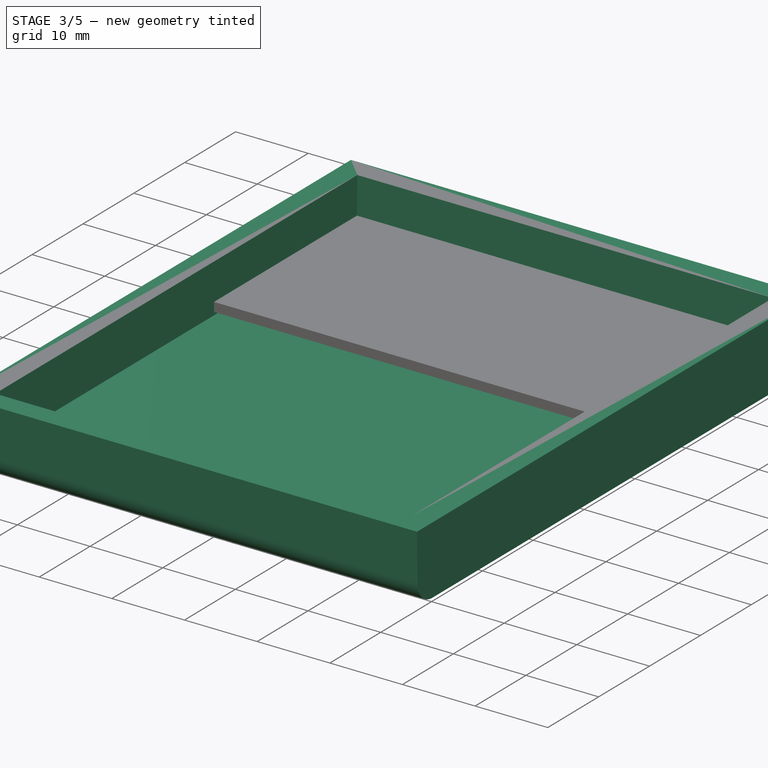
[diagram: stage 3 of 5 — iso view after this stage's code; geometry added in this stage tinted green]
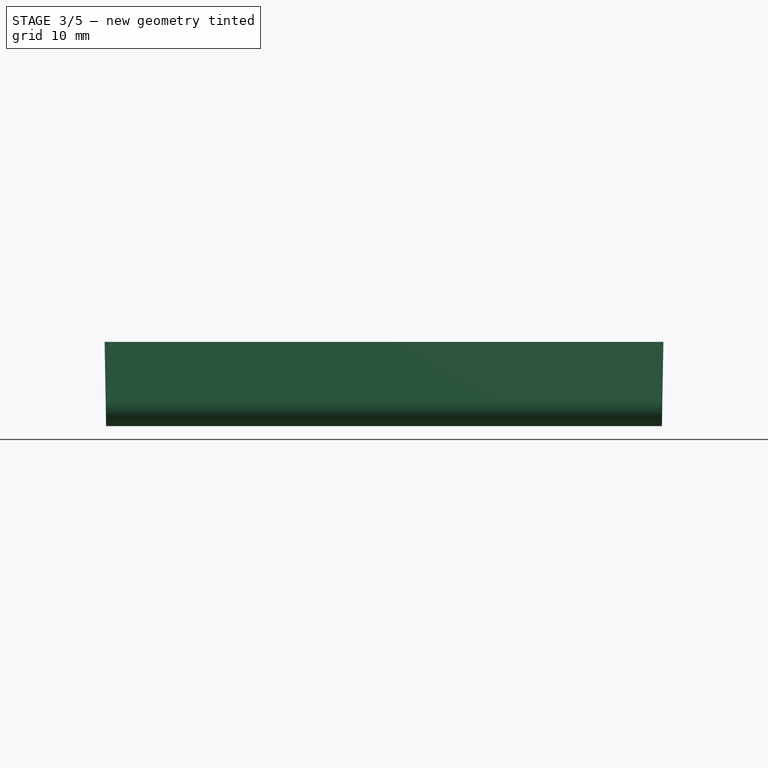
[diagram: stage 3 of 5 — front view after this stage's code; geometry added in this stage tinted green]
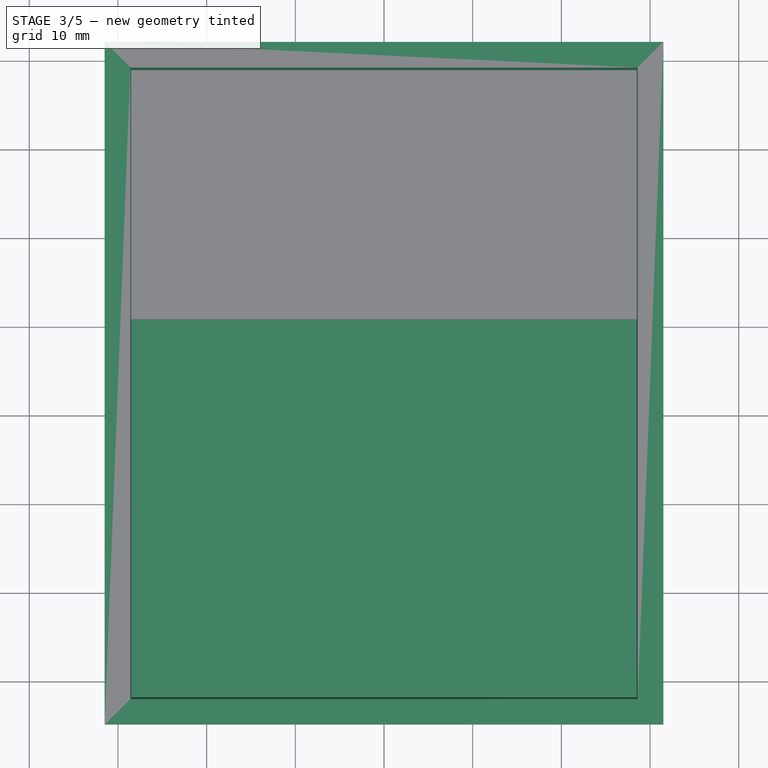
[diagram: stage 3 of 5 — top view after this stage's code; geometry added in this stage tinted green]
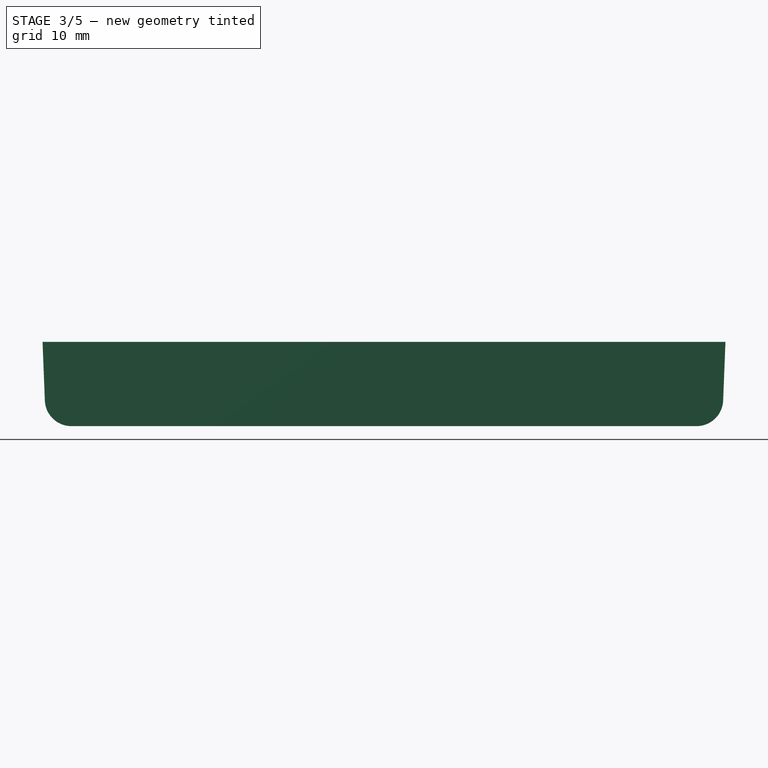
[diagram: stage 3 of 5 — right view after this stage's code; geometry added in this stage tinted green]
FEATURE [PartDesign::Point] DatumPoint  label="Top middle"
  AttacherType = Attacher::AttachEnginePoint
  MapMode = 37
  Placement = pos=(0,70,-2) rot=(0,0,1;0rad)
FEATURE [PartDesign::Point] DatumPoint001  label="Bottom middle"
  AttacherType = Attacher::AttachEnginePoint
  MapMode = 37
  Placement = pos=(0,-1.42e-14,-2) rot=(0,0,1;0rad)
FEATURE [PartDesign::Line] DatumLine  label="Mid"
  AttacherType = Attacher::AttachEngineLine
  AttachmentSupport = -> [DatumPoint,DatumPoint001]
  Length = 20
  MapMode = 29
  Placement = pos=(0,70,-2) rot=(1,0,0;1.5708rad)
  ResizeMode = 0
FEATURE [PartDesign::Draft] Draft  label="Sides draft"
  Angle = 1
  Base = -> Pad [Face8,Face7]
  BaseFeature = -> Pad
  NeutralPlane = -> Pad [Face3]
  Placement = pos=(0,0,0) rot=(1,1,1;2.0944rad)
  SupportTransform = false
  Suppressed = false
FEATURE [PartDesign::SubShapeBinder] Binder002  label="Side profile binder"
  BindCopyOnChange = 0
  BindMode = 0
  ClaimChildren = false
  Context = -> Body003 [Binder002.]
  Fuse = false
  MakeFace = true
  OffsetFill = false
  OffsetIntersection = false
  OffsetJoinType = 0
  OffsetOpenResult = false
  PartialLoad = false
  Relative = true
  Support = -> [Body[Sketch.]]
  _Version = 2
FEATURE [Sketcher::SketchObject] Sketch010
  ArcFitTolerance = 1e-06
  AttachmentSupport = -> [Binder002]
  ExternalGeometry = -> [Binder002]
  FullyConstrained = true
  MakeInternals = false
  MapMode = 5
  Placement = pos=(0,0,0) rot=(0.57735,0.57735,0.57735;2.0944rad)
  sketch-geometry (6):
    g0: LineSegment StartX=-5 StartY=0 StartZ=0 EndX=72 EndY=9e-16 EndZ=0
    g1: LineSegment StartX=72 StartY=9e-16 StartZ=0 EndX=71.74 EndY=-6.61778 EndZ=0
    g2: ArcOfCircle CenterX=68.7423 CenterY=-6.5 CenterZ=0 NormalX=0 NormalY=0 NormalZ=1 AngleXU=0 Radius=3 StartAngle=4.71239 EndAngle=6.24392
    g3: LineSegment StartX=68.7423 StartY=-9.5 StartZ=0 EndX=-1.7423 EndY=-9.5 EndZ=0
    g4: ArcOfCircle CenterX=-1.7423 CenterY=-6.5 CenterZ=0 NormalX=0 NormalY=0 NormalZ=1 AngleXU=0 Radius=3 StartAngle=3.18086 EndAngle=4.71239
    g5: LineSegment StartX=-4.73999 StartY=-6.61778 StartZ=0 EndX=-5 EndY=0 EndZ=0
  constraints (14):
    c: Coincident(g-3,g0)
    c: Coincident(g0,g-5)
    c: Coincident(g0,g1)
    c: Tangent(g1,g2) = 1.5708
    c: Tangent(g3,g4) = 1.5708
    c: Coincident(g5,g0)
    c: Angle(g5,g0) = 1.53153
    c: Angle(g0,g1) = 1.53153
    c: DistanceY(g3,g0) = 9.5
    c: Horizontal(g3)
    c: Tangent(g2,g3) = 1.5708
    c: Equal(g-6,g4)
    c: Equal(g4,g2)
    c: Tangent(g4,g5) = 1.5708
FEATURE [PartDesign::Pad] Pad009  label="General shape of the front thing"
  Direction = (1,0,0)
  Length = 63
  Length2 = 10
  Midplane = true
  Profile = -> Sketch010
  ReferenceAxis = -> Sketch010 [N_Axis]
  Suppressed = false
  Type = 0
FEATURE [PartDesign::Draft] Draft001  label="Sides draft front"
  Angle = 1
  Base = -> Pad009 [Face7,Face8]
  BaseFeature = -> Pad009
  SupportTransform = false
  Suppressed = false
FEATURE [PartDesign::Thickness] Thickness001  label="Digging the front"
  Base = -> Draft001 [Face1]
  BaseFeature = -> Draft001
  Intersection = false
  Join = 1
  Mode = 0
  Reversed = true
  SupportTransform = false
  Suppressed = false
  Value = 2.9
FEATURE [PartDesign::SubShapeBinder] Binder008  label="Bottom of PCB binder"
  BindCopyOnChange = 0
  BindMode = 0
  ClaimChildren = false
  Context = -> Body003 [Binder008.]
  Fuse = false
  MakeFace = true
  OffsetFill = false
  OffsetIntersection = false
  OffsetJoinType = 0
  OffsetOpenResult = false
  PartialLoad = false
  Placement = pos=(0,0,-1.2) rot=(0,0,1;0rad)
  Relative = true
  Support = -> [Body[DatumPlane001.]]
  _Version = 2
FEATURE [PartDesign::CoordinateSystem] Local_CS_9dbe
  AttacherType = Attacher::AttachEngine3D
  MapMode = 2
FEATURE [Part::Feature] Pcb_9dbe
  Placement = pos=(-149.761,121.317,0) rot=(0,0,1;0rad)
  shape: bbox 59.25 x 73 x 1.6 mm, 71 faces (baked)
FEATURE [Sketcher::SketchObject] PCB_Sketch_9dbe
  ArcFitTolerance = 1e-06
  FullyConstrained = false
  MakeInternals = false
  sketch-geometry (19):
    g0: LineSegment StartX=19.7929 StartY=12.7071 StartZ=0 EndX=27.7071 EndY=20.6229 EndZ=0
    g1: LineSegment StartX=19.5 StartY=-2.5 StartZ=0 EndX=19.5 EndY=12 EndZ=0
    g2: LineSegment StartX=-26 StartY=70 StartZ=0 EndX=29.25 EndY=70 EndZ=0
    g3: LineSegment StartX=19 StartY=-3 StartZ=0 EndX=19.5 EndY=-2.5 EndZ=0
    g4: LineSegment StartX=28 StartY=32.89 StartZ=0 EndX=28 EndY=21.33 EndZ=0
    g5: LineSegment StartX=19 StartY=-3 StartZ=0 EndX=-19 EndY=-3 EndZ=0
    g6: LineSegment StartX=-28 StartY=21.3171 StartZ=0 EndX=-28 EndY=68 EndZ=0
    g7: LineSegment StartX=31.25 StartY=36.14 StartZ=0 EndX=31.25 EndY=68 EndZ=0
    g8: LineSegment StartX=-19.7929 StartY=12.7071 StartZ=0 EndX=-27.7071 EndY=20.61 EndZ=0
    g9: LineSegment StartX=-19 StartY=-3 StartZ=0 EndX=-19.5 EndY=-2.5 EndZ=0
    g10: LineSegment StartX=-19.5 StartY=-2.5 StartZ=0 EndX=-19.5 EndY=12 EndZ=0
    g11: ArcOfCircle CenterX=-20.5001 CenterY=12 CenterZ=0 NormalX=0 NormalY=0 NormalZ=-1 AngleXU=2.35623 Radius=1.00008 StartAngle=0 EndAngle=0.78533
    g12: ArcOfCircle CenterX=29.25 CenterY=36.14 CenterZ=0 NormalX=0 NormalY=0 NormalZ=-1 AngleXU=3.14159 Radius=2 StartAngle=0 EndAngle=1.5708
    g13: ArcOfCircle CenterX=29.25 CenterY=32.89 CenterZ=0 NormalX=0 NormalY=0 NormalZ=-1 AngleXU=1.30145e-06 Radius=1.25 StartAngle=0 EndAngle=1.57079
    g14: ArcOfCircle CenterX=20.5 CenterY=12 CenterZ=0 NormalX=0 NormalY=0 NormalZ=-1 AngleXU=1.0278e-05 Radius=1.00003 StartAngle=0 EndAngle=0.785377
    g15: ArcOfCircle CenterX=29.25 CenterY=68 CenterZ=0 NormalX=0 NormalY=0 NormalZ=-1 AngleXU=1.5708 Radius=2 StartAngle=0 EndAngle=1.5708
    g16: ArcOfCircle CenterX=-27 CenterY=21.3171 CenterZ=0 NormalX=0 NormalY=0 NormalZ=-1 AngleXU=-0.785398 Radius=0.999999 StartAngle=0 EndAngle=0.785399
    g17: ArcOfCircle CenterX=-26 CenterY=68 CenterZ=0 NormalX=0 NormalY=0 NormalZ=-1 AngleXU=-7.47076e-07 Radius=2 StartAngle=0 EndAngle=1.5708
    g18: ArcOfCircle CenterX=27 CenterY=21.33 CenterZ=0 NormalX=0 NormalY=0 NormalZ=-1 AngleXU=3.14158 Radius=0.999978 StartAngle=0 EndAngle=0.785416
  constraints (19):
    c: Coincident(g6,g16)
    c: Coincident(g6,g17)
    c: Coincident(g8,g16)
    c: Coincident(g2,g17)
    c: Coincident(g8,g11)
    c: Coincident(g9,g10)
    c: Coincident(g10,g11)
    c: Coincident(g5,g9)
    c: Coincident(g3,g5)
    c: Coincident(g1,g3)
    c: Coincident(g1,g14)
    c: Coincident(g0,g14)
    c: Coincident(g0,g18)
    c: Coincident(g4,g18)
    c: Coincident(g4,g13)
    c: Coincident(g12,g13)
    c: Coincident(g2,g15)
    c: Coincident(g7,g12)
    c: Coincident(g7,g15)
FEATURE [App::Part] Board_Geoms_9dbe
  Group = -> [Pcb_9dbe,PCB_Sketch_9dbe]
  Origin = -> Origin012
FEATURE [Part::Feature] Shape  label="U6_TSSOP_24_44x78mm_P065mm_249428eb97b7"
  Placement = pos=(9.906,23.836,0) rot=(0,0,-1;0.785398rad)
  shape: bbox 9.765 x 9.765 x 0.97 mm, 396 faces (baked)
FEATURE [Part::Feature] Shape001  label="R30_R_0402_1005Metric_56d1e8ac7ec3"
  Placement = pos=(-3.7846,64.6938,0) rot=(0,0,1;1.5708rad)
  shape: bbox 0.5 x 1 x 0.35 mm, 26 faces (baked)
FEATURE [Part::Feature] Shape002  label="C33_C_0402_1005Metric_439f5c97a156"
  Placement = pos=(15.9258,23.0232,0) rot=(0,0,1;2.35619rad)
  shape: bbox 1.061 x 1.061 x 0.5 mm, 28 faces (baked)
FEATURE [Part::Feature] Shape003  label="U3_RP2350B_5bf34b71a8d2"
  Placement = pos=(0,38.314,0) rot=(0,0,1;0.785398rad)
  shape: bbox 14.16 x 14.16 x 0.9762 mm, 744 faces (baked)
FEATURE [App::Link] C33_C_0402_1005Metric_439f5c97a156_ln_  label="C29_C_0402_1005Metric_d980d0f3218c"
  LinkPlacement = pos=(4.8514,21.55,0) rot=(0,0,1;3.14159rad)
  LinkedObject = -> Shape002
  Placement = pos=(4.8514,21.55,0) rot=(0,0,1;3.14159rad)
FEATURE [App::Link] C33_C_0402_1005Metric_439f5c97a156_ln_001  label="C10_C_0402_1005Metric_251042c45dc4"
  LinkPlacement = pos=(4.9784,42.5812,0) rot=(0,0,1;0.785398rad)
  LinkedObject = -> Shape002
  Placement = pos=(4.9784,42.5812,0) rot=(0,0,1;0.785398rad)
FEATURE [App::Link] R30_R_0402_1005Metric_56d1e8ac7ec3_ln_  label="R10_R_0402_1005Metric_51b1b8e8657a"
  LinkPlacement = pos=(-11.1506,31.4306,0) rot=(0,0,1;3.92699rad)
  LinkedObject = -> Shape001
  Placement = pos=(-11.1506,31.4306,0) rot=(0,0,1;3.92699rad)
FEATURE [App::Link] R30_R_0402_1005Metric_56d1e8ac7ec3_ln_001  label="R24_R_0402_1005Metric_4880820e7255"
  LinkPlacement = pos=(5.7404,41.8338,0) rot=(0,0,1;0.785398rad)
  LinkedObject = -> Shape001
  Placement = pos=(5.7404,41.8338,0) rot=(0,0,1;0.785398rad)
FEATURE [App::Link] C33_C_0402_1005Metric_439f5c97a156_ln_002  label="C39_C_0402_1005Metric_aed9d11787dd"
  LinkPlacement = pos=(21.4376,27.9508,0) rot=(0,0,1;0.785398rad)
  LinkedObject = -> Shape002
  Placement = pos=(21.4376,27.9508,0) rot=(0,0,1;0.785398rad)
FEATURE [App::Link] R30_R_0402_1005Metric_56d1e8ac7ec3_ln_002  label="R7_R_0402_1005Metric_6c02ad4cb323"
  LinkPlacement = pos=(20.32,51.1302,0) rot=(0,0,1;1.5708rad)
  LinkedObject = -> Shape001
  Placement = pos=(20.32,51.1302,0) rot=(0,0,1;1.5708rad)
FEATURE [App::Link] R30_R_0402_1005Metric_56d1e8ac7ec3_ln_003  label="R6_R_0402_1005Metric_24b84eea597d"
  LinkPlacement = pos=(17.4752,51.1302,0) rot=(0,0,1;1.5708rad)
  LinkedObject = -> Shape001
  Placement = pos=(17.4752,51.1302,0) rot=(0,0,1;1.5708rad)
FEATURE [App::Link] C33_C_0402_1005Metric_439f5c97a156_ln_003  label="C24_C_0402_1005Metric_bb1ce9836f4d"
  LinkPlacement = pos=(4.3434,28.9922,0) rot=(0,0,1;2.35619rad)
  LinkedObject = -> Shape002
  Placement = pos=(4.3434,28.9922,0) rot=(0,0,1;2.35619rad)
FEATURE [App::Link] U6_TSSOP_24_44x78mm_P065mm_249428eb97b7_ln_  label="U5_TSSOP_24_44x78mm_P065mm_d589b01f07bd"
  LinkPlacement = pos=(-0.254,19.518,0) rot=(0,0,-1;1.5708rad)
  LinkedObject = -> Shape
  Placement = pos=(-0.254,19.518,0) rot=(0,0,-1;1.5708rad)
FEATURE [Part::Feature] Shape004  label="R28_R_0805_2012Metric_252277e7415b"
  Placement = pos=(-6.604,45.339,0) rot=(0,0,-1;0.785398rad)
  shape: bbox 2.263 x 2.263 x 0.45 mm, 26 faces (baked)
FEATURE [App::Link] R30_R_0402_1005Metric_56d1e8ac7ec3_ln_004  label="R9_R_0402_1005Metric_bd238e743bb6"
  LinkPlacement = pos=(23.1648,51.1302,0) rot=(0,0,1;1.5708rad)
  LinkedObject = -> Shape001
  Placement = pos=(23.1648,51.1302,0) rot=(0,0,1;1.5708rad)
FEATURE [App::Link] C33_C_0402_1005Metric_439f5c97a156_ln_004  label="C16_C_0402_1005Metric_04ddee7b3d28"
  LinkPlacement = pos=(19.3802,51.1556,0) rot=(0,0,1;1.5708rad)
  LinkedObject = -> Shape002
  Placement = pos=(19.3802,51.1556,0) rot=(0,0,1;1.5708rad)
FEATURE [App::Link] C33_C_0402_1005Metric_439f5c97a156_ln_005  label="C25_C_0402_1005Metric_b25ebf576064"
  LinkPlacement = pos=(4.3942,32.1926,0) rot=(0,0,1;0.785398rad)
  LinkedObject = -> Shape002
  Placement = pos=(4.3942,32.1926,0) rot=(0,0,1;0.785398rad)
FEATURE [Part::Feature] Part__Feature008  label="TS-1187A v004"
  shape: bbox 5.1 x 5.1 x 1.2 mm, 48 faces (baked)
FEATURE [Part::Feature] Part__Feature009  label="TS-1187A v005"
  shape: bbox 2 x 2 x 1.4 mm, 4 faces (baked)
FEATURE [Part::Feature] Part__Feature010  label="TS-1187A v006"
  shape: bbox 1.15 x 1.15 x 0.7 mm, 10 faces (baked)
FEATURE [Part::Feature] Part__Feature011  label="TS-1187A v007"
  shape: bbox 1.15 x 1.15 x 0.7 mm, 10 faces (baked)
FEATURE [Part::Feature] Part__Feature012  label="TS-1187A v008"
  shape: bbox 1.15 x 1.15 x 0.7 mm, 10 faces (baked)
FEATURE [Part::Feature] Part__Feature013  label="TS-1187A v009"
  shape: bbox 1.15 x 1.15 x 0.7 mm, 10 faces (baked)
FEATURE [Part::Feature] Part__Feature014  label="TS-1187A v010"
  shape: bbox 1.55 x 0.5 x 0.2 mm, 10 faces (baked)
FEATURE [Part::Feature] Part__Feature015  label="TS-1187A v011"
  shape: bbox 1.55 x 0.5 x 0.2 mm, 10 faces (baked)
FEATURE [Part::Feature] Part__Feature016  label="TS-1187A v012"
  shape: bbox 1.55 x 0.5 x 0.2 mm, 10 faces (baked)
FEATURE [Part::Feature] Part__Feature017  label="TS-1187A v013"
  shape: bbox 1.55 x 0.5 x 0.2 mm, 10 faces (baked)
FEATURE [App::Part] TS_1187A_v2  label="SW3_TS-1187A v012_8148cfb37216"
  Group = -> [Part__Feature008,Part__Feature009,Part__Feature010,Part__Feature011,Part__Feature012,Part__Feature013,Part__Feature014,Part__Feature015,Part__Feature016,Part__Feature017]
  Origin = -> Origin017
  Placement = pos=(4.5,67.1,0) rot=(0,0,1;3.14159rad)
FEATURE [App::Link] R30_R_0402_1005Metric_56d1e8ac7ec3_ln_005  label="R36_R_0402_1005Metric_a48c821af01a"
  LinkPlacement = pos=(-17.52,43.93,0) rot=(0,0,1;0.785398rad)
  LinkedObject = -> Shape001
  Placement = pos=(-17.52,43.93,0) rot=(0,0,1;0.785398rad)
FEATURE [App::Link] U6_TSSOP_24_44x78mm_P065mm_249428eb97b7_ln_001  label="U1_TSSOP_24_44x78mm_P065mm_cca0021ee69b"
  LinkPlacement = pos=(-16.51,29.932,0) rot=(0,0,1;3.92699rad)
  LinkedObject = -> Shape
  Placement = pos=(-16.51,29.932,0) rot=(0,0,1;3.92699rad)
FEATURE [App::Link] R30_R_0402_1005Metric_56d1e8ac7ec3_ln_006  label="R8_R_0402_1005Metric_3dfb7eb72526"
  LinkPlacement = pos=(22.098,51.1302,0) rot=(0,0,1;1.5708rad)
  LinkedObject = -> Shape001
  Placement = pos=(22.098,51.1302,0) rot=(0,0,1;1.5708rad)
FEATURE [Part::Feature] Part__Feature018  label="Contact009"
  Placement = pos=(-13.13,0,0) rot=(0,0,1;0rad)
  shape: bbox 0.9 x 1.8 x 0.4546 mm, 22 faces (baked)
FEATURE [Part::Feature] Part__Feature019  label="Contact008"
  Placement = pos=(-7.7,0,0) rot=(0,0,1;0rad)
  shape: bbox 0.9 x 6.04 x 0.9096 mm, 26 faces (baked)
FEATURE [Part::Feature] Part__Feature020  label="Contact007"
  Placement = pos=(-6.6,0,0) rot=(0,0,1;0rad)
  shape: bbox 0.9 x 6.04 x 0.9096 mm, 26 faces (baked)
FEATURE [Part::Feature] Part__Feature021  label="Contact006"
  Placement = pos=(-5.5,0,0) rot=(0,0,1;0rad)
  shape: bbox 0.9 x 6.04 x 0.9096 mm, 26 faces (baked)
FEATURE [Part::Feature] Part__Feature022  label="Contact005"
  Placement = pos=(-4.4,0,0) rot=(0,0,1;0rad)
  shape: bbox 0.9 x 6.04 x 0.9096 mm, 26 faces (baked)
FEATURE [Part::Feature] Part__Feature023  label="Contact004"
  Placement = pos=(-3.3,0,0) rot=(0,0,1;0rad)
  shape: bbox 0.9 x 6.04 x 0.9096 mm, 26 faces (baked)
FEATURE [Part::Feature] Part__Feature024  label="Contact003"
  Placement = pos=(-2.2,0,0) rot=(0,0,1;0rad)
  shape: bbox 0.9 x 6.04 x 0.9096 mm, 26 faces (baked)
FEATURE [Part::Feature] Part__Feature025  label="Contact002"
  Placement = pos=(-1.1,0,0) rot=(0,0,1;0rad)
  shape: bbox 0.9 x 6.04 x 0.9096 mm, 26 faces (baked)
FEATURE [App::Part] cont
  Group = -> [Part__Feature018,Part__Feature019,Part__Feature020,Part__Feature021,Part__Feature022,Part__Feature023,Part__Feature024,Part__Feature025]
  Origin = -> Origin018
FEATURE [Part::Feature] Part__Feature026  label="frame002"
  Placement = pos=(0.05,0,-8.83) rot=(0,0,1;0rad)
  shape: bbox 14.8 x 14.69 x 2.22 mm, 238 faces (baked)
FEATURE [Part::Feature] Part__Feature027  label="cover001"
  Placement = pos=(0.3,1.14,-0.54) rot=(0.706791,-0.029864,0.706791;3.07998rad)
  shape: bbox 15.98 x 14.86 x 1.92 mm, 162 faces (baked)
FEATURE [Part::Feature] Part__Feature028  label="spring"
  Placement = pos=(-1.82,8.5,-8.08) rot=(0.15487,0.698575,-0.698575;2.83429rad)
  shape: bbox 1.439 x 3.68 x 1.439 mm, 10 faces (baked)
FEATURE [App::Part] microSD_card_slot  label="J1_microSD_card_slot_e46293b91a5e"
  Group = -> [cont,Part__Feature026,Part__Feature027,Part__Feature028]
  Origin = -> Origin019
  Placement = pos=(11.59,62.758,8.9) rot=(0,0,1;3.14159rad)
FEATURE [Part::Feature] Part__Feature029  label="cont002"
  Placement = pos=(6.9,4,0) rot=(0,0,1;0rad)
  shape: bbox 0.8 x 2.9 x 0.1 mm, 6 faces (baked)
FEATURE [Part::Feature] Part__Feature030  label="cont003"
  Placement = pos=(5.8,4,0) rot=(0,0,1;0rad)
  shape: bbox 0.8 x 2.9 x 0.1 mm, 6 faces (baked)
FEATURE [Part::Feature] Part__Feature031  label="cont005"
  Placement = pos=(3.6,4,0) rot=(0,0,1;0rad)
  shape: bbox 0.8 x 2.9 x 0.1 mm, 6 faces (baked)
FEATURE [Part::Feature] Part__Feature032  label="cont006"
  Placement = pos=(2.5,4.15,0) rot=(0,0,1;0rad)
  shape: bbox 0.8 x 3.2 x 0.1 mm, 6 faces (baked)
FEATURE [Part::Feature] Part__Feature033  label="cont007"
  Placement = pos=(1.4,4,0) rot=(0,0,1;0rad)
  shape: bbox 0.8 x 2.9 x 0.1 mm, 6 faces (baked)
FEATURE [Part::Feature] Part__Feature034  label="cont008"
  Placement = pos=(0.3,4,0) rot=(0,0,1;0rad)
  shape: bbox 0.8 x 2.9 x 0.1 mm, 6 faces (baked)
FEATURE [Part::Feature] Part__Feature035  label="cont001"
  Placement = pos=(8,4,0) rot=(0,0,1;0rad)
  shape: bbox 0.8 x 2.9 x 0.1 mm, 6 faces (baked)
FEATURE [Part::Feature] Part__Feature036  label="cont004"
  Placement = pos=(4.7,4.15,0) rot=(0,0,1;0rad)
  shape: bbox 0.8 x 3.2 x 0.1 mm, 6 faces (baked)
FEATURE [App::Part] contacts
  Group = -> [Part__Feature029,Part__Feature030,Part__Feature031,Part__Feature032,Part__Feature033,Part__Feature034,Part__Feature035,Part__Feature036]
  Origin = -> Origin020
  Placement = pos=(-11.8,0.74,-8.1) rot=(0,0,1;0rad)
FEATURE [Part::Feature] Part__Feature037  label="body"
  Placement = pos=(-7.65,2.35,-8.04) rot=(0,0,1;0rad)
  shape: bbox 11.09 x 15 x 1 mm, 19 faces (baked)
FEATURE [Part::Feature] Part__Feature038  label="microSD001"
  Placement = pos=(-9.65,-4.1,-7.33) rot=(0,0,1;0rad)
  shape: bbox 1.052 x 0.727 x 2e-07 mm, 1 faces, 0 solids (baked)
FEATURE [Part::Feature] Part__Feature039  label="microSD002"
  Placement = pos=(-9.65,-4.1,-7.33) rot=(0,0,1;0rad)
  shape: bbox 0.1517 x 0.7132 x 2e-07 mm, 1 faces, 0 solids (baked)
FEATURE [Part::Feature] Part__Feature040  label="microSD003"
  Placement = pos=(-9.65,-4.1,-7.33) rot=(0,0,1;0rad)
  shape: bbox 0.1704 x 0.168 x 2e-07 mm, 1 faces, 0 solids (baked)
FEATURE [Part::Feature] Part__Feature041  label="microSD004"
  Placement = pos=(-9.65,-4.1,-7.33) rot=(0,0,1;0rad)
  shape: bbox 0.546 x 0.7407 x 2e-07 mm, 1 faces, 0 solids (baked)
FEATURE [Part::Feature] Part__Feature042  label="microSD005"
  Placement = pos=(-9.65,-4.1,-7.33) rot=(0,0,1;0rad)
  shape: bbox 0.4376 x 0.727 x 2e-07 mm, 1 faces, 0 solids (baked)
FEATURE [Part::Feature] Part__Feature043  label="microSD006"
  Placement = pos=(-9.65,-4.1,-7.33) rot=(0,0,1;0rad)
  shape: bbox 0.6757 x 0.7407 x 2e-07 mm, 1 faces, 0 solids (baked)
FEATURE [Part::Feature] Part__Feature044  label="microSD007"
  Placement = pos=(-9.65,-4.1,-7.33) rot=(0,0,1;0rad)
  shape: bbox 0.6041 x 0.972 x 2e-07 mm, 1 faces, 0 solids (baked)
FEATURE [Part::Feature] Part__Feature045  label="microSD008"
  Placement = pos=(-9.65,-4.1,-7.33) rot=(0,0,1;0rad)
  shape: bbox 0.7674 x 0.9445 x 2e-07 mm, 1 faces, 0 solids (baked)
FEATURE [App::Part] microSD009
  Group = -> [Part__Feature038,Part__Feature039,Part__Feature040,Part__Feature041,Part__Feature042,Part__Feature043,Part__Feature044,Part__Feature045]
  Origin = -> Origin021
FEATURE [Part::Feature] Part__Feature046  label="DATA2"
  Placement = pos=(-4.04,1.23,-8.06) rot=(0.707107,0.707107,0;3.14159rad)
  shape: bbox 0.4723 x 0.3582 x 2e-07 mm, 1 faces, 0 solids (baked)
FEATURE [Part::Feature] Part__Feature047  label="DATA003"
  Placement = pos=(-4.04,1.23,-8.06) rot=(0.707107,0.707107,0;3.14159rad)
  shape: bbox 0.4736 x 0.3966 x 2e-07 mm, 1 faces, 0 solids (baked)
FEATURE [Part::Feature] Part__Feature048  label="DATA004"
  Placement = pos=(-4.04,1.23,-8.06) rot=(0.707107,0.707107,0;3.14159rad)
  shape: bbox 0.4723 x 0.3398 x 2e-07 mm, 1 faces, 0 solids (baked)
FEATURE [Part::Feature] Part__Feature049  label="DATA005"
  Placement = pos=(-4.04,1.23,-8.06) rot=(0.707107,0.707107,0;3.14159rad)
  shape: bbox 0.4736 x 0.3966 x 2e-07 mm, 1 faces, 0 solids (baked)
FEATURE [Part::Feature] Part__Feature050  label="DATA006"
  Placement = pos=(-4.04,1.23,-8.06) rot=(0.707107,0.707107,0;3.14159rad)
  shape: bbox 0.4791 x 0.2953 x 2e-07 mm, 1 faces, 0 solids (baked)
FEATURE [App::Part] DATA007
  Group = -> [Part__Feature046,Part__Feature047,Part__Feature048,Part__Feature049,Part__Feature050]
  Origin = -> Origin022
FEATURE [Part::Feature] Part__Feature051  label="DATA3"
  Placement = pos=(-5.14,0.1,-8.06) rot=(0.707107,0.707107,0;3.14159rad)
  shape: bbox 0.4723 x 0.3582 x 2e-07 mm, 1 faces, 0 solids (baked)
FEATURE [Part::Feature] Part__Feature052  label="DATA008"
  Placement = pos=(-5.14,0.1,-8.06) rot=(0.707107,0.707107,0;3.14159rad)
  shape: bbox 0.4736 x 0.3966 x 2e-07 mm, 1 faces, 0 solids (baked)
FEATURE [Part::Feature] Part__Feature053  label="DATA009"
  Placement = pos=(-5.14,0.1,-8.06) rot=(0.707107,0.707107,0;3.14159rad)
  shape: bbox 0.4723 x 0.3398 x 2e-07 mm, 1 faces, 0 solids (baked)
FEATURE [Part::Feature] Part__Feature054  label="DATA010"
  Placement = pos=(-5.14,0.1,-8.06) rot=(0.707107,0.707107,0;3.14159rad)
  shape: bbox 0.4736 x 0.3966 x 2e-07 mm, 1 faces, 0 solids (baked)
FEATURE [Part::Feature] Part__Feature055  label="DATA011"
  Placement = pos=(-5.14,0.1,-8.06) rot=(0.707107,0.707107,0;3.14159rad)
  shape: bbox 0.486 x 0.3001 x 2e-07 mm, 1 faces, 0 solids (baked)
FEATURE [Part::Feature] Part__Feature056  label="DATA012"
  Placement = pos=(-5.14,0.1,-8.06) rot=(0.707107,0.707107,0;3.14159rad)
  shape: bbox 0.4723 x 0.2094 x 2e-07 mm, 1 faces, 0 solids (baked)
FEATURE [Part::Feature] Part__Feature057  label="DATA013"
  Placement = pos=(-5.14,0.1,-8.06) rot=(0.707107,0.707107,0;3.14159rad)
  shape: bbox 0.486 x 0.3482 x 2e-07 mm, 1 faces, 0 solids (baked)
FEATURE [Part::Feature] Part__Feature058  label="DATA014"
  Placement = pos=(-5.14,0.1,-8.06) rot=(0.707107,0.707107,0;3.14159rad)
  shape: bbox 0.4723 x 0.3582 x 2e-07 mm, 1 faces, 0 solids (baked)
FEATURE [App::Part] DATA015
  Group = -> [Part__Feature051,Part__Feature052,Part__Feature053,Part__Feature054,Part__Feature055,Part__Feature056,Part__Feature057,Part__Feature058]
  Origin = -> Origin023
FEATURE [Part::Feature] Part__Feature059  label="CMD"
  Placement = pos=(-6.23,1.68,-8.06) rot=(0.707107,0.707107,0;3.14159rad)
  shape: bbox 0.486 x 0.3482 x 2e-07 mm, 1 faces, 0 solids (baked)
FEATURE [Part::Feature] Part__Feature060  label="CMD001"
  Placement = pos=(-6.23,1.68,-8.06) rot=(0.707107,0.707107,0;3.14159rad)
  shape: bbox 0.4723 x 0.4369 x 2e-07 mm, 1 faces, 0 solids (baked)
FEATURE [Part::Feature] Part__Feature061  label="CMD002"
  Placement = pos=(-6.23,1.68,-8.06) rot=(0.707107,0.707107,0;3.14159rad)
  shape: bbox 0.4723 x 0.3582 x 2e-07 mm, 1 faces, 0 solids (baked)
FEATURE [App::Part] CMD003
  Group = -> [Part__Feature059,Part__Feature060,Part__Feature061]
  Origin = -> Origin024
FEATURE [Part::Feature] Part__Feature062  label="VDD"
  Placement = pos=(-7.32,1.83,-8.06) rot=(0.707107,0.707107,0;3.14159rad)
  shape: bbox 0.4723 x 0.3814 x 2e-07 mm, 1 faces, 0 solids (baked)
FEATURE [Part::Feature] Part__Feature063  label="VDD001"
  Placement = pos=(-7.32,1.83,-8.06) rot=(0.707107,0.707107,0;3.14159rad)
  shape: bbox 0.4723 x 0.3582 x 2e-07 mm, 1 faces, 0 solids (baked)
FEATURE [Part::Feature] Part__Feature064  label="VDD002"
  Placement = pos=(-7.32,1.83,-8.06) rot=(0.707107,0.707107,0;3.14159rad)
  shape: bbox 0.4723 x 0.3582 x 2e-07 mm, 1 faces, 0 solids (baked)
FEATURE [App::Part] VDD003
  Group = -> [Part__Feature062,Part__Feature063,Part__Feature064]
  Origin = -> Origin025
FEATURE [Part::Feature] Part__Feature065  label="CLK"
  Placement = pos=(-8.41,1.93,-8.06) rot=(0.707107,0.707107,0;3.14159rad)
  shape: bbox 0.486 x 0.3482 x 2e-07 mm, 1 faces, 0 solids (baked)
FEATURE [Part::Feature] Part__Feature066  label="CLK001"
  Placement = pos=(-8.41,1.93,-8.06) rot=(0.707107,0.707107,0;3.14159rad)
  shape: bbox 0.4723 x 0.2578 x 2e-07 mm, 1 faces, 0 solids (baked)
FEATURE [Part::Feature] Part__Feature067  label="CLK002"
  Placement = pos=(-8.41,1.93,-8.06) rot=(0.707107,0.707107,0;3.14159rad)
  shape: bbox 0.4723 x 0.3172 x 2e-07 mm, 1 faces, 0 solids (baked)
FEATURE [App::Part] CLK003
  Group = -> [Part__Feature065,Part__Feature066,Part__Feature067]
  Origin = -> Origin026
FEATURE [Part::Feature] Part__Feature068  label="GND"
  Placement = pos=(-9.5,1.68,-8.06) rot=(0.707107,0.707107,0;3.14159rad)
  shape: bbox 0.486 x 0.3847 x 2e-07 mm, 1 faces, 0 solids (baked)
FEATURE [Part::Feature] Part__Feature069  label="GND001"
  Placement = pos=(-9.5,1.68,-8.06) rot=(0.707107,0.707107,0;3.14159rad)
  shape: bbox 0.4723 x 0.343 x 2e-07 mm, 1 faces, 0 solids (baked)
FEATURE [Part::Feature] Part__Feature070  label="GND002"
  Placement = pos=(-9.5,1.68,-8.06) rot=(0.707107,0.707107,0;3.14159rad)
  shape: bbox 0.4723 x 0.3582 x 2e-07 mm, 1 faces, 0 solids (baked)
FEATURE [App::Part] GND003
  Group = -> [Part__Feature068,Part__Feature069,Part__Feature070]
  Origin = -> Origin027
FEATURE [Part::Feature] Part__Feature071  label="DATA0"
  Placement = pos=(-10.65,1.22,-8.06) rot=(0.707107,0.707107,0;3.14159rad)
  shape: bbox 0.4723 x 0.3582 x 2e-07 mm, 1 faces, 0 solids (baked)
FEATURE [Part::Feature] Part__Feature072  label="DATA016"
  Placement = pos=(-10.65,1.22,-8.06) rot=(0.707107,0.707107,0;3.14159rad)
  shape: bbox 0.4736 x 0.3966 x 2e-07 mm, 1 faces, 0 solids (baked)
FEATURE [Part::Feature] Part__Feature073  label="DATA017"
  Placement = pos=(-10.65,1.22,-8.06) rot=(0.707107,0.707107,0;3.14159rad)
  shape: bbox 0.4723 x 0.3398 x 2e-07 mm, 1 faces, 0 solids (baked)
FEATURE [Part::Feature] Part__Feature074  label="DATA018"
  Placement = pos=(-10.65,1.22,-8.06) rot=(0.707107,0.707107,0;3.14159rad)
  shape: bbox 0.4736 x 0.3966 x 2e-07 mm, 1 faces, 0 solids (baked)
FEATURE [Part::Feature] Part__Feature075  label="DATA019"
  Placement = pos=(-10.65,1.22,-8.06) rot=(0.707107,0.707107,0;3.14159rad)
  shape: bbox 0.486 x 0.3033 x 2e-07 mm, 1 faces, 0 solids (baked)
FEATURE [App::Part] DATA020
  Group = -> [Part__Feature071,Part__Feature072,Part__Feature073,Part__Feature074,Part__Feature075]
  Origin = -> Origin028
FEATURE [Part::Feature] Part__Feature076  label="DATA1"
  Placement = pos=(-11.75,1.26,-8.06) rot=(0.707107,0.707107,0;3.14159rad)
  shape: bbox 0.4723 x 0.3582 x 2e-07 mm, 1 faces, 0 solids (baked)
FEATURE [Part::Feature] Part__Feature077  label="DATA021"
  Placement = pos=(-11.75,1.26,-8.06) rot=(0.707107,0.707107,0;3.14159rad)
  shape: bbox 0.4736 x 0.3966 x 2e-07 mm, 1 faces, 0 solids (baked)
FEATURE [Part::Feature] Part__Feature078  label="DATA022"
  Placement = pos=(-11.75,1.26,-8.06) rot=(0.707107,0.707107,0;3.14159rad)
  shape: bbox 0.4723 x 0.3398 x 2e-07 mm, 1 faces, 0 solids (baked)
FEATURE [Part::Feature] Part__Feature079  label="DATA023"
  Placement = pos=(-11.75,1.26,-8.06) rot=(0.707107,0.707107,0;3.14159rad)
  shape: bbox 0.4736 x 0.3966 x 2e-07 mm, 1 faces, 0 solids (baked)
FEATURE [Part::Feature] Part__Feature080  label="DATA024"
  Placement = pos=(-11.75,1.26,-8.06) rot=(0.707107,0.707107,0;3.14159rad)
  shape: bbox 0.4723 x 0.1559 x 2e-07 mm, 1 faces, 0 solids (baked)
FEATURE [App::Part] DATA025
  Group = -> [Part__Feature076,Part__Feature077,Part__Feature078,Part__Feature079,Part__Feature080]
  Origin = -> Origin029
FEATURE [App::Part] sillk
  Group = -> [microSD009,DATA007,DATA015,CMD003,VDD003,CLK003,GND003,DATA020,DATA025]
  Origin = -> Origin030
FEATURE [App::Part] microSD  label="J1_microSD_e46293b91a5e[2]"
  Group = -> [contacts,Part__Feature037,sillk]
  Origin = -> Origin031
  Placement = pos=(11.52,64.008,8.8) rot=(0,0,1;3.14159rad)
FEATURE [App::Link] C33_C_0402_1005Metric_439f5c97a156_ln_006  label="C17_C_0402_1005Metric_c6ca86716594"
  LinkPlacement = pos=(-10.4902,30.7448,0) rot=(0,0,1;3.92699rad)
  LinkedObject = -> Shape002
  Placement = pos=(-10.4902,30.7448,0) rot=(0,0,1;3.92699rad)
FEATURE [App::Link] R30_R_0402_1005Metric_56d1e8ac7ec3_ln_007  label="R3_R_0402_1005Metric_55c9ecff9d97"
  LinkPlacement = pos=(-5.1054,25.36,0) rot=(0,0,1;3.92699rad)
  LinkedObject = -> Shape001
  Placement = pos=(-5.1054,25.36,0) rot=(0,0,1;3.92699rad)
FEATURE [App::Link] C33_C_0402_1005Metric_439f5c97a156_ln_007  label="C19_C_0402_1005Metric_aa6b38768ae2"
  LinkPlacement = pos=(-17.9832,24.5726,0) rot=(0,0,1;0.785398rad)
  LinkedObject = -> Shape002
  Placement = pos=(-17.9832,24.5726,0) rot=(0,0,1;0.785398rad)
FEATURE [App::Link] C33_C_0402_1005Metric_439f5c97a156_ln_008  label="C13_C_0402_1005Metric_ac4835eec644"
  LinkPlacement = pos=(-3.429,32.2688,0) rot=(0,0,1;3.92699rad)
  LinkedObject = -> Shape002
  Placement = pos=(-3.429,32.2688,0) rot=(0,0,1;3.92699rad)
FEATURE [App::Link] C33_C_0402_1005Metric_439f5c97a156_ln_009  label="C2_C_0402_1005Metric_d5aa21b2d2a1"
  LinkPlacement = pos=(-11.2268,17.8162,0) rot=(0,0,1;0.785398rad)
  LinkedObject = -> Shape002
  Placement = pos=(-11.2268,17.8162,0) rot=(0,0,1;0.785398rad)
FEATURE [App::Link] C33_C_0402_1005Metric_439f5c97a156_ln_010  label="C42_C_0402_1005Metric_3308e26e4d18"
  LinkPlacement = pos=(-12.44,51.24,0) rot=(0,0,1;3.92699rad)
  LinkedObject = -> Shape002
  Placement = pos=(-12.44,51.24,0) rot=(0,0,1;3.92699rad)
FEATURE [App::Link] C33_C_0402_1005Metric_439f5c97a156_ln_011  label="C21_C_0402_1005Metric_6886174ada46"
  LinkPlacement = pos=(-2.12,44.7,0) rot=(0,0,1;0.785398rad)
  LinkedObject = -> Shape002
  Placement = pos=(-2.12,44.7,0) rot=(0,0,1;0.785398rad)
FEATURE [App::Link] R30_R_0402_1005Metric_56d1e8ac7ec3_ln_008  label="R4_R_0402_1005Metric_b9c112d264e7"
  LinkPlacement = pos=(15.4432,51.1302,0) rot=(0,0,1;1.5708rad)
  LinkedObject = -> Shape001
  Placement = pos=(15.4432,51.1302,0) rot=(0,0,1;1.5708rad)
FEATURE [App::Link] C33_C_0402_1005Metric_439f5c97a156_ln_012  label="C6_C_0402_1005Metric_b7d84032a39b"
  LinkPlacement = pos=(-4.8768,33.7166,0) rot=(0,0,1;3.92699rad)
  LinkedObject = -> Shape002
  Placement = pos=(-4.8768,33.7166,0) rot=(0,0,1;3.92699rad)
FEATURE [App::Link] C33_C_0402_1005Metric_439f5c97a156_ln_013  label="C12_C_0402_1005Metric_14e4f58a395b"
  LinkPlacement = pos=(3.0734,31.5322,0) rot=(0,0,-1;0.785398rad)
  LinkedObject = -> Shape002
  Placement = pos=(3.0734,31.5322,0) rot=(0,0,-1;0.785398rad)
FEATURE [Part::Feature] Part__Feature081  label="60816e3e-9268-11ed-8af4-a0cec80452fd_part"
  shape: bbox 2.6 x 1.7 x 1 mm, 20 faces (baked)
FEATURE [App::Part] _0816e3e_9268_11ed_8af4_a0cec80452fd  label="60816e3e-9268-11ed-8af4-a0cec80452fd"
  Group = -> [Part__Feature081]
  Origin = -> Origin032
FEATURE [Part::Feature] Part__Feature082  label="6081710e-9268-11ed-8af4-a0cec80452fd_part"
  shape: bbox 0.4598 x 0.9 x 0.16 mm, 6 faces (baked)
FEATURE [Part::Feature] Part__Feature083  label="6081710e-9268-11ed-8af4-a0cec80452fd_part001"
  shape: bbox 0.4598 x 0.9 x 0.16 mm, 6 faces (baked)
FEATURE [App::Part] _081710e_9268_11ed_8af4_a0cec80452fd_part  label="6081710e-9268-11ed-8af4-a0cec80452fd_part002"
  Group = -> [Part__Feature082,Part__Feature083]
  Origin = -> Origin033
FEATURE [App::Part] _081710e_9268_11ed_8af4_a0cec80452fd  label="6081710e-9268-11ed-8af4-a0cec80452fd"
  Group = -> [_081710e_9268_11ed_8af4_a0cec80452fd_part]
  Origin = -> Origin034
FEATURE [Part::Feature] Part__Feature084  label="6081737a-9268-11ed-8af4-a0cec80452fd_part"
  shape: bbox 0.4 x 1.48 x 0.02 mm, 6 faces (baked)
FEATURE [App::Part] _081737a_9268_11ed_8af4_a0cec80452fd  label="6081737a-9268-11ed-8af4-a0cec80452fd"
  Group = -> [Part__Feature084]
  Origin = -> Origin035
FEATURE [App::Part] _081697a_9268_11ed_8af4_a0cec80452fd  label="6081697a-9268-11ed-8af4-a0cec80452fd"
  Group = -> [_0816e3e_9268_11ed_8af4_a0cec80452fd,_081710e_9268_11ed_8af4_a0cec80452fd,_081737a_9268_11ed_8af4_a0cec80452fd]
  Origin = -> Origin036
FEATURE [App::Part] CQ_assembly  label="D1_CQ assembly_46ded2abadd1"
  Group = -> [_081697a_9268_11ed_8af4_a0cec80452fd]
  Origin = -> Origin037
  Placement = pos=(-15,61.23,0) rot=(0,0,1;1.5708rad)
FEATURE [App::Link] C33_C_0402_1005Metric_439f5c97a156_ln_014  label="C27_C_0402_1005Metric_bd2403ac6954"
  LinkPlacement = pos=(-9.75,54.21,0) rot=(0,0,1;3.14159rad)
  LinkedObject = -> Shape002
  Placement = pos=(-9.75,54.21,0) rot=(0,0,1;3.14159rad)
FEATURE [App::Link] R30_R_0402_1005Metric_56d1e8ac7ec3_ln_009  label="R35_R_0402_1005Metric_71611a0bce3b"
  LinkPlacement = pos=(15.1638,35.2914,0) rot=(0,0,1;3.92699rad)
  LinkedObject = -> Shape001
  Placement = pos=(15.1638,35.2914,0) rot=(0,0,1;3.92699rad)
FEATURE [App::Link] C33_C_0402_1005Metric_439f5c97a156_ln_015  label="C9_C_0402_1005Metric_957a496e0a03"
  LinkPlacement = pos=(1.9558,45.5276,0) rot=(0,0,1;0.785398rad)
  LinkedObject = -> Shape002
  Placement = pos=(1.9558,45.5276,0) rot=(0,0,1;0.785398rad)
FEATURE [App::Link] C33_C_0402_1005Metric_439f5c97a156_ln_016  label="C23_C_0402_1005Metric_9e2713827f55"
  LinkPlacement = pos=(18.4262,51.1558,0) rot=(0,0,1;1.5708rad)
  LinkedObject = -> Shape002
  Placement = pos=(18.4262,51.1558,0) rot=(0,0,1;1.5708rad)
FEATURE [App::Link] R30_R_0402_1005Metric_56d1e8ac7ec3_ln_010  label="R5_R_0402_1005Metric_086edd3ead8f"
  LinkPlacement = pos=(16.4592,51.1302,0) rot=(0,0,1;1.5708rad)
  LinkedObject = -> Shape001
  Placement = pos=(16.4592,51.1302,0) rot=(0,0,1;1.5708rad)
FEATURE [App::Link] C33_C_0402_1005Metric_439f5c97a156_ln_017  label="C18_C_0402_1005Metric_165645344e4a"
  LinkPlacement = pos=(-17.3228,23.9122,0) rot=(0,0,1;0.785398rad)
  LinkedObject = -> Shape002
  Placement = pos=(-17.3228,23.9122,0) rot=(0,0,1;0.785398rad)
FEATURE [App::Link] C33_C_0402_1005Metric_439f5c97a156_ln_018  label="C5_C_0402_1005Metric_bc355a2b3d5d"
  LinkPlacement = pos=(5.715,34.2246,0) rot=(0,0,-1;0.785398rad)
  LinkedObject = -> Shape002
  Placement = pos=(5.715,34.2246,0) rot=(0,0,-1;0.785398rad)
FEATURE [App::Link] C33_C_0402_1005Metric_439f5c97a156_ln_019  label="C8_C_0402_1005Metric_b928555f1243"
  LinkPlacement = pos=(-6.1468,41.3366,0) rot=(0,0,1;2.35619rad)
  LinkedObject = -> Shape002
  Placement = pos=(-6.1468,41.3366,0) rot=(0,0,1;2.35619rad)
FEATURE [Part::Feature] Shape005  label="L16_L_0805_2012Metric_0281535a62de"
  Placement = pos=(-3.79,46.43,0) rot=(0,0,1;0.785398rad)
  shape: bbox 2.298 x 2.298 x 1.25 mm, 28 faces (baked)
FEATURE [Part::Feature] Shape006  label="U4_SOT_223_5f523945142b"
  Placement = pos=(-8.89,59.11,0) rot=(0,0,1;1.5708rad)
  shape: bbox 6.5 x 7 x 1.7 mm, 78 faces (baked)
FEATURE [App::Link] C33_C_0402_1005Metric_439f5c97a156_ln_020  label="C31_C_0402_1005Metric_84c232924965"
  LinkPlacement = pos=(2.5146,14.7428,0) rot=(0,0,1;1.5708rad)
  LinkedObject = -> Shape002
  Placement = pos=(2.5146,14.7428,0) rot=(0,0,1;1.5708rad)
FEATURE [Part::Feature] Shape007  label="Q1_SOT_23_9d8ac5fe343f"
  Placement = pos=(26.97,66.12,0) rot=(0,0,1;0rad)
  shape: bbox 2.5 x 3 x 1.2 mm, 76 faces (baked)
FEATURE [App::Link] R30_R_0402_1005Metric_56d1e8ac7ec3_ln_011  label="R34_R_0402_1005Metric_8a8964e957b6"
  LinkPlacement = pos=(29.87,68.3,0) rot=(0,0,1;1.5708rad)
  LinkedObject = -> Shape001
  Placement = pos=(29.87,68.3,0) rot=(0,0,1;1.5708rad)
FEATURE [App::Link] U6_TSSOP_24_44x78mm_P065mm_249428eb97b7_ln_002  label="U2_TSSOP_24_44x78mm_P065mm_d0ac7568970f"
  LinkPlacement = pos=(-10.414,23.836,0) rot=(0,0,1;3.92699rad)
  LinkedObject = -> Shape
  Placement = pos=(-10.414,23.836,0) rot=(0,0,1;3.92699rad)
FEATURE [App::Link] SW3_TS_1187A_v012_8148cfb37216_ln_  label="SW2_TS-1187A v012_394d79c053f1"
  LinkPlacement = pos=(-8.4,67.1,0) rot=(0,0,1;0rad)
  LinkedObject = -> TS_1187A_v2
  Placement = pos=(-8.4,67.1,0) rot=(0,0,1;0rad)
FEATURE [Part::Feature] Part__Feature085  label="SMxB-SRSS-TB002"
  shape: bbox 0.2 x 3.7 x 2.45 mm, 30 faces (baked)
FEATURE [Part::Feature] Part__Feature086  label="SMxB-SRSS-TB003"
  shape: bbox 0.2 x 3.7 x 2.45 mm, 30 faces (baked)
FEATURE [Part::Feature] Part__Feature087  label="SMxB-SRSS-TB004"
  shape: bbox 0.2 x 3.7 x 2.45 mm, 30 faces (baked)
FEATURE [Part::Feature] Part__Feature088  label="SMxB-SRSS-TB005"
  shape: bbox 0.2 x 1.5 x 1.25 mm, 11 faces (baked)
FEATURE [Part::Feature] Part__Feature089  label="SMxB-SRSS-TB006"
  shape: bbox 0.2 x 1.5 x 1.25 mm, 11 faces (baked)
FEATURE [Part::Feature] Part__Feature090  label="SMxB-SRSS-TB007"
  shape: bbox 5 x 4.25 x 2.9 mm, 113 faces (baked)
FEATURE [App::Part] SMxB_SRSS_TB  label="J9_SMxB-SRSS-TB006_7e7ccc67e959"
  Group = -> [Part__Feature085,Part__Feature086,Part__Feature087,Part__Feature088,Part__Feature089,Part__Feature090]
  Origin = -> Origin038
  Placement = pos=(12.6332,38.178,0) rot=(0,0,1;3.14159rad)
FEATURE [App::Link] C33_C_0402_1005Metric_439f5c97a156_ln_021  label="C38_C_0402_1005Metric_9d220426103a"
  LinkPlacement = pos=(16.9164,35.5962,0) rot=(0,0,-1;0.785398rad)
  LinkedObject = -> Shape002
  Placement = pos=(16.9164,35.5962,0) rot=(0,0,-1;0.785398rad)
FEATURE [App::Link] C33_C_0402_1005Metric_439f5c97a156_ln_022  label="C34_C_0402_1005Metric_a9f5ada5892b"
  LinkPlacement = pos=(15.2654,22.3628,0) rot=(0,0,1;2.35619rad)
  LinkedObject = -> Shape002
  Placement = pos=(15.2654,22.3628,0) rot=(0,0,1;2.35619rad)
FEATURE [App::Link] R30_R_0402_1005Metric_56d1e8ac7ec3_ln_012  label="R33_R_0402_1005Metric_4fc78a53e28e"
  LinkPlacement = pos=(3.4036,24.344,0) rot=(0,0,-1;1.5708rad)
  LinkedObject = -> Shape001
  Placement = pos=(3.4036,24.344,0) rot=(0,0,-1;1.5708rad)
FEATURE [Part::Feature] Shape008  label="J8_USB_Micro-B_Molex_47346-0001_f12a3e0ad891"
  Placement = pos=(-17.1,67.0975,0) rot=(0,0,1;3.14159rad)
  shape: bbox 7.977 x 5.418 x 2.937 mm, 484 faces (baked)
FEATURE [App::Link] C33_C_0402_1005Metric_439f5c97a156_ln_023  label="C28_C_0402_1005Metric_0eebf704aaba"
  LinkPlacement = pos=(-9.37,64.03,0) rot=(0,0,1;3.14159rad)
  LinkedObject = -> Shape002
  Placement = pos=(-9.37,64.03,0) rot=(0,0,1;3.14159rad)
FEATURE [App::Link] R30_R_0402_1005Metric_56d1e8ac7ec3_ln_013  label="R25_R_0402_1005Metric_619907af2cf0"
  LinkPlacement = pos=(-1.97,48.21,0) rot=(0,0,-1;0.785398rad)
  LinkedObject = -> Shape001
  Placement = pos=(-1.97,48.21,0) rot=(0,0,-1;0.785398rad)
FEATURE [App::Link] R30_R_0402_1005Metric_56d1e8ac7ec3_ln_014  label="R1_R_0402_1005Metric_3510945f31ea"
  LinkPlacement = pos=(2.4612,24.3504,0) rot=(0,0,-1;1.5708rad)
  LinkedObject = -> Shape001
  Placement = pos=(2.4612,24.3504,0) rot=(0,0,-1;1.5708rad)
FEATURE [App::Link] U6_TSSOP_24_44x78mm_P065mm_249428eb97b7_ln_003  label="U8_TSSOP_24_44x78mm_P065mm_4a3d7d93a238"
  LinkPlacement = pos=(16.002,29.932,0) rot=(0,0,-1;0.785398rad)
  LinkedObject = -> Shape
  Placement = pos=(16.002,29.932,0) rot=(0,0,-1;0.785398rad)
FEATURE [App::Link] R30_R_0402_1005Metric_56d1e8ac7ec3_ln_015  label="R2_R_0402_1005Metric_a4cba3dcb5fe"
  LinkPlacement = pos=(8.4328,29.17,0) rot=(0,0,-1;0.785398rad)
  LinkedObject = -> Shape001
  Placement = pos=(8.4328,29.17,0) rot=(0,0,-1;0.785398rad)
FEATURE [App::Link] C33_C_0402_1005Metric_439f5c97a156_ln_024  label="C7_C_0402_1005Metric_66e62140b239"
  LinkPlacement = pos=(-5.1816,42.3164,0) rot=(0,0,1;2.35619rad)
  LinkedObject = -> Shape002
  Placement = pos=(-5.1816,42.3164,0) rot=(0,0,1;2.35619rad)
FEATURE [App::Link] C33_C_0402_1005Metric_439f5c97a156_ln_025  label="C22_C_0402_1005Metric_0f7daab94107"
  LinkPlacement = pos=(-2.78,45.37,0) rot=(0,0,1;0.785398rad)
  LinkedObject = -> Shape002
  Placement = pos=(-2.78,45.37,0) rot=(0,0,1;0.785398rad)
FEATURE [App::Link] C33_C_0402_1005Metric_439f5c97a156_ln_026  label="C40_C_0402_1005Metric_0b39370d082a"
  LinkPlacement = pos=(20.7772,28.6112,0) rot=(0,0,1;0.785398rad)
  LinkedObject = -> Shape002
  Placement = pos=(20.7772,28.6112,0) rot=(0,0,1;0.785398rad)
FEATURE [App::Link] C33_C_0402_1005Metric_439f5c97a156_ln_027  label="C15_C_0402_1005Metric_b01c136d6a1b"
  LinkPlacement = pos=(-6.2738,35.139,0) rot=(0,0,1;3.92699rad)
  LinkedObject = -> Shape002
  Placement = pos=(-6.2738,35.139,0) rot=(0,0,1;3.92699rad)
FEATURE [Part::Feature] Shape009  label="J3_PinHeader_2x07_P254mm_Vertical_93339528d4fb"
  Placement = pos=(24.8866,48.4324,0) rot=(0,0,-1;1.5708rad)
  shape: bbox 17.78 x 5.08 x 11.54 mm, 298 faces (baked)
FEATURE [App::Link] R28_R_0805_2012Metric_252277e7415b_ln_  label="R26_R_0805_2012Metric_359f2953e371"
  LinkPlacement = pos=(-7.9502,43.9928,0) rot=(0,0,-1;0.785398rad)
  LinkedObject = -> Shape004
  Placement = pos=(-7.9502,43.9928,0) rot=(0,0,-1;0.785398rad)
FEATURE [App::Link] R30_R_0402_1005Metric_56d1e8ac7ec3_ln_016  label="R31_R_0402_1005Metric_23446e149bbc"
  LinkPlacement = pos=(5.0476,33.5228,0) rot=(0,0,1;2.35619rad)
  LinkedObject = -> Shape001
  Placement = pos=(5.0476,33.5228,0) rot=(0,0,1;2.35619rad)
FEATURE [App::Link] C33_C_0402_1005Metric_439f5c97a156_ln_028  label="C11_C_0402_1005Metric_c4bec38f26ff"
  LinkPlacement = pos=(6.8834,40.6762,0) rot=(0,0,1;0.785398rad)
  LinkedObject = -> Shape002
  Placement = pos=(6.8834,40.6762,0) rot=(0,0,1;0.785398rad)
FEATURE [App::Link] C33_C_0402_1005Metric_439f5c97a156_ln_029  label="C1_C_0402_1005Metric_80c80a2956ab"
  LinkPlacement = pos=(-4.4196,24.6488,0) rot=(0,0,1;3.92699rad)
  LinkedObject = -> Shape002
  Placement = pos=(-4.4196,24.6488,0) rot=(0,0,1;3.92699rad)
FEATURE [App::Link] C33_C_0402_1005Metric_439f5c97a156_ln_030  label="C3_C_0402_1005Metric_807ef83ce3c4"
  LinkPlacement = pos=(-11.9126,18.502,0) rot=(0,0,1;0.785398rad)
  LinkedObject = -> Shape002
  Placement = pos=(-11.9126,18.502,0) rot=(0,0,1;0.785398rad)
FEATURE [App::Link] C33_C_0402_1005Metric_439f5c97a156_ln_031  label="C26_C_0402_1005Metric_6469debd9077"
  LinkPlacement = pos=(-4.76,55.48,0) rot=(0,0,-1;1.5708rad)
  LinkedObject = -> Shape002
  Placement = pos=(-4.76,55.48,0) rot=(0,0,-1;1.5708rad)
FEATURE [App::Link] C33_C_0402_1005Metric_439f5c97a156_ln_032  label="C32_C_0402_1005Metric_4dd76e80f4a2"
  LinkPlacement = pos=(9.1186,29.8304,0) rot=(0,0,-1;0.785398rad)
  LinkedObject = -> Shape002
  Placement = pos=(9.1186,29.8304,0) rot=(0,0,-1;0.785398rad)
FEATURE [App::Link] Q1_SOT_23_9d8ac5fe343f_ln_  label="Q2_SOT_23_50f1675c441e"
  LinkPlacement = pos=(-15.8863,56.1702,0) rot=(0,0,-1;1.5708rad)
  LinkedObject = -> Shape007
  Placement = pos=(-15.8863,56.1702,0) rot=(0,0,-1;1.5708rad)
FEATURE [App::Link] C33_C_0402_1005Metric_439f5c97a156_ln_033  label="C4_C_0402_1005Metric_8636b596dda0"
  LinkPlacement = pos=(4.318,43.2416,0) rot=(0,0,1;0.785398rad)
  LinkedObject = -> Shape002
  Placement = pos=(4.318,43.2416,0) rot=(0,0,1;0.785398rad)
FEATURE [App::Link] R30_R_0402_1005Metric_56d1e8ac7ec3_ln_017  label="R32_R_0402_1005Metric_82362ff6eb54"
  LinkPlacement = pos=(8.001,55.9562,0) rot=(0,0,1;1.5708rad)
  LinkedObject = -> Shape001
  Placement = pos=(8.001,55.9562,0) rot=(0,0,1;1.5708rad)
FEATURE [Part::Feature] Shape010  label="X1_Crystal_SMD_Abracon_ABM8G-4Pin_3.2x2.5mm_7d0c7747cc04"
  Placement = pos=(6.1468,30.8464,0) rot=(0,0,1;0.785398rad)
  shape: bbox 3.889 x 3.891 x 0.64 mm, 28 faces (baked)
FEATURE [Part::Feature] Shape011  label="D2_D_0805_9f8cde1107a4"
  Placement = pos=(27.62,68.82,0) rot=(0,0,1;3.14159rad)
  shape: bbox 2 x 1.27 x 0.8 mm, 39 faces (baked)
FEATURE [App::Link] C33_C_0402_1005Metric_439f5c97a156_ln_034  label="C20_C_0402_1005Metric_31c811988362"
  LinkPlacement = pos=(-0.64,46.88,0) rot=(0,0,-1;0.785398rad)
  LinkedObject = -> Shape002
  Placement = pos=(-0.64,46.88,0) rot=(0,0,-1;0.785398rad)
FEATURE [App::Link] C33_C_0402_1005Metric_439f5c97a156_ln_035  label="C14_C_0402_1005Metric_99a20b7e1a14"
  LinkPlacement = pos=(3.7084,32.8784,0) rot=(0,0,1;3.92699rad)
  LinkedObject = -> Shape002
  Placement = pos=(3.7084,32.8784,0) rot=(0,0,1;3.92699rad)
FEATURE [App::Link] C33_C_0402_1005Metric_439f5c97a156_ln_036  label="C30_C_0402_1005Metric_526f7df735bc"
  LinkPlacement = pos=(3.429,14.7428,0) rot=(0,0,1;1.5708rad)
  LinkedObject = -> Shape002
  Placement = pos=(3.429,14.7428,0) rot=(0,0,1;1.5708rad)
FEATURE [App::Part] Top_9dbe
  Group = -> [Shape,Shape001,Shape002,Shape003,C33_C_0402_1005Metric_439f5c97a156_ln_,C33_C_0402_1005Metric_439f5c97a156_ln_001,R30_R_0402_1005Metric_56d1e8ac7ec3_ln_,R30_R_0402_1005Metric_56d1e8ac7ec3_ln_001,C33_C_0402_1005Metric_439f5c97a156_ln_002,R30_R_0402_1005Metric_56d1e8ac7ec3_ln_002,R30_R_0402_1005Metric_56d1e8ac7ec3_ln_003,C33_C_0402_1005Metric_439f5c97a156_ln_003,+67 more]
  Origin = -> Origin015
FEATURE [Part::Feature] Shape012  label="J7_PinHeader_1x08_P254mm_Vertical_c7cf26157386"
  Placement = pos=(29.45,46.61,-1.6) rot=(1,0,0;3.14159rad)
  shape: bbox 2.54 x 20.32 x 11.54 mm, 196 faces (baked)
FEATURE [App::Part] Bot_9dbe
  Group = -> [Shape012]
  Origin = -> Origin016
  Placement = pos=(0,0,2) rot=(0,0,1;0rad)
FEATURE [App::Part] Step_Models_9dbe
  Group = -> [Top_9dbe,Bot_9dbe]
  Origin = -> Origin014
FEATURE [Sketcher::SketchObject] Sketch024
  ArcFitTolerance = 1e-06
  AttachmentSupport = -> [Pocket011]
  FullyConstrained = true
  MakeInternals = false
  MapMode = 5
  Placement = pos=(0,14.4193,0) rot=(0,0.707107,0.707107;3.14159rad)
  sketch-geometry (4):
    g0: LineSegment StartX=-2.1 StartY=0 StartZ=0 EndX=-2.1 EndY=0.2 EndZ=0
    g1: LineSegment StartX=-2.1 StartY=0.2 StartZ=0 EndX=-3.85 EndY=0.2 EndZ=0
    g2: LineSegment StartX=-3.85 StartY=0.2 StartZ=0 EndX=-3.85 EndY=0 EndZ=0
    g3: LineSegment StartX=-3.85 StartY=0 StartZ=0 EndX=-2.1 EndY=0 EndZ=0
  constraints (12):
    c: Coincident(g0,g1)
    c: Coincident(g1,g2)
    c: Coincident(g2,g3)
    c: Coincident(g3,g0)
    c: Vertical(g0)
    c: Vertical(g2)
    c: Horizontal(g1)
    c: Horizontal(g3)
    c: PointOnObject(g0,g-1)
    c: DistanceX(g1,g1) = 1.75
    c: DistanceY(g2,g2) = 0.2
    c: DistanceX(g0,g-1) = 2.1
FEATURE [PartDesign::Pocket] Pocket017  label="SmallCapPocket"
  BaseFeature = -> Pocket011
  Direction = (0,-1,2e-16)
  Length = 0.3
  Length2 = 5
  Profile = -> Sketch024
  ReferenceAxis = -> Sketch024 [N_Axis]
  Suppressed = false
  Type = 0
FEATURE [Sketcher::SketchObject] Sketch025
  ArcFitTolerance = 1e-06
  AttachmentSupport = -> [Pocket017]
  ExternalGeometry = -> [Pocket017]
  FullyConstrained = true
  MakeInternals = false
  MapMode = 5
  Placement = pos=(5e-16,0,-0.635) rot=(1,0,0;3.14159rad)
  sketch-geometry (4):
    g0: ArcOfCircle CenterX=29.5 CenterY=-36 CenterZ=0 NormalX=0 NormalY=0 NormalZ=1 AngleXU=0 Radius=2.1 StartAngle=-1.8e-15 EndAngle=3.14159
    g1: ArcOfCircle CenterX=29.5 CenterY=-68.2 CenterZ=0 NormalX=0 NormalY=0 NormalZ=1 AngleXU=0 Radius=2.1 StartAngle=3.14159 EndAngle=6.28319
    g2: LineSegment StartX=31.6 StartY=-36 StartZ=0 EndX=31.6 EndY=-68.2 EndZ=0
    g3: LineSegment StartX=27.4 StartY=-36 StartZ=0 EndX=27.4 EndY=-68.2 EndZ=0
  constraints (10):
    c: Tangent(g0,g2) = 1.5708
    c: Tangent(g0,g3) = -1.5708
    c: Tangent(g1,g2) = 1.5708
    c: Tangent(g1,g3) = -1.5708
    c: Equal(g0,g1)
    c: Vertical(g3)
    c: PointOnObject(g0,g-3)
    c: PointOnObject(g0,g-4)
    c: DistanceY(g2,g2) = 32.2
    c: DistanceY(g0,g-1) = 36
FEATURE [PartDesign::Pocket] Pocket018  label="SidePCBPocket"
  BaseFeature = -> Pocket017
  Direction = (0,0,1)
  Length = 0.2
  Length2 = 5
  Profile = -> Sketch025
  ReferenceAxis = -> Sketch025 [N_Axis]
  Suppressed = false
  Type = 0
FEATURE [Sketcher::SketchObject] Sketch026
  ArcFitTolerance = 1e-06
  AttachmentSupport = -> [Pocket018]
  ExternalGeometry = -> [Pocket018]
  FullyConstrained = true
  MakeInternals = false
  MapMode = 5
  Placement = pos=(0,0,-0.435) rot=(1,0,0;3.14159rad)
  sketch-geometry (5):
    g0: ArcOfCircle CenterX=29.5 CenterY=-46.5 CenterZ=0 NormalX=0 NormalY=0 NormalZ=1 AngleXU=0 Radius=0.75 StartAngle=1.3e-15 EndAngle=3.14159
    g1: ArcOfCircle CenterX=29.5 CenterY=-64.5 CenterZ=0 NormalX=0 NormalY=0 NormalZ=1 AngleXU=0 Radius=0.75 StartAngle=3.14159 EndAngle=6.28319
    g2: LineSegment StartX=30.25 StartY=-46.5 StartZ=0 EndX=30.25 EndY=-64.5 EndZ=0
    g3: LineSegment StartX=28.75 StartY=-46.5 StartZ=0 EndX=28.75 EndY=-64.5 EndZ=0
    g4: Circle CenterX=29.5 CenterY=-68.25 CenterZ=0 NormalX=0 NormalY=0 NormalZ=1 AngleXU=0 Radius=1
  constraints (13):
    c: Tangent(g0,g2) = 1.5708
    c: Tangent(g0,g3) = -1.5708
    c: Tangent(g1,g2) = 1.5708
    c: Tangent(g1,g3) = -1.5708
    c: Equal(g0,g1)
    c: Vertical(g2)
    c: DistanceX(g0,g0) = 0.75
    c: DistanceY(g1,g0) = 18
    c: DistanceY(g0,g-1) = 46.5
    c: PointOnObject(g0,g-3)
    c: Diameter(g4) = 2
    c: DistanceY(g4,g1) = 3.75
    c: Vertical(g4,g0)
FEATURE [PartDesign::Pocket] Pocket019  label="SideComponentPocket"
  BaseFeature = -> Pocket018
  Direction = (0,0,1)
  Length = 1.5
  Length2 = 5
  Profile = -> Sketch026
  ReferenceAxis = -> Sketch026 [N_Axis]
  Suppressed = false
  Type = 0
FEATURE [Sketcher::SketchObject] Sketch027
  ArcFitTolerance = 1e-06
  AttachmentSupport = -> [Pocket019]
  FullyConstrained = true
  MakeInternals = false
  MapMode = 5
  Placement = pos=(0,0,9.25) rot=(0,0,1;0rad)
  sketch-geometry (18):
    g0: LineSegment StartX=8.27 StartY=50.16 StartZ=0 EndX=8.27 EndY=44.16 EndZ=0
    g1: LineSegment StartX=8.27 StartY=44.16 StartZ=0 EndX=26.27 EndY=44.16 EndZ=0
    g2: LineSegment StartX=26.27 StartY=44.16 StartZ=0 EndX=26.27 EndY=50.16 EndZ=0
    g3: LineSegment StartX=26.27 StartY=50.16 StartZ=0 EndX=8.27 EndY=50.16 EndZ=0
    g4: LineSegment StartX=9.005 StartY=42.49 StartZ=0 EndX=9.005 EndY=38.09 EndZ=0
    g5: LineSegment StartX=9.005 StartY=38.09 StartZ=0 EndX=14.255 EndY=38.09 EndZ=0
    g6: LineSegment StartX=14.255 StartY=38.09 StartZ=0 EndX=14.255 EndY=42.49 EndZ=0
    g7: LineSegment StartX=14.255 StartY=42.49 StartZ=0 EndX=9.005 EndY=42.49 EndZ=0
    g8: LineSegment StartX=6.27 StartY=52.16 StartZ=0 EndX=6.27 EndY=36.09 EndZ=0
    g9: LineSegment StartX=28.27 StartY=42.16 StartZ=0 EndX=28.27 EndY=52.16 EndZ=0
    g10: LineSegment StartX=28.27 StartY=52.16 StartZ=0 EndX=6.27 EndY=52.16 EndZ=0
    g11: LineSegment StartX=6.27 StartY=36.09 StartZ=0 EndX=16.255 EndY=36.09 EndZ=0
    g12: LineSegment StartX=16.255 StartY=36.09 StartZ=0 EndX=16.255 EndY=42.16 EndZ=0
    g13: LineSegment StartX=16.255 StartY=42.16 StartZ=0 EndX=28.27 EndY=42.16 EndZ=0
    g14: GeomPoint [constr] X=17.27 Y=47.16 Z=0
    g15: GeomPoint [constr] X=11.63 Y=40.29 Z=0
    g16: GeomPoint [constr] X=17.27 Y=48.43 Z=0
    g17: GeomPoint [constr] X=17.27 Y=45.89 Z=0
  constraints (47):
    c: Coincident(g0,g1)
    c: Coincident(g1,g2)
    c: Coincident(g2,g3)
    c: Coincident(g3,g0)
    c: Vertical(g0)
    c: Vertical(g2)
    c: Horizontal(g1)
    c: Horizontal(g3)
    c: Coincident(g4,g5)
    c: Coincident(g5,g6)
    c: Coincident(g6,g7)
    c: Coincident(g7,g4)
    c: Vertical(g4)
    c: Vertical(g6)
    c: Horizontal(g5)
    c: Horizontal(g7)
    c: Coincident(g9,g10)
    c: Coincident(g10,g8)
    c: Vertical(g8)
    c: Vertical(g9)
    c: Horizontal(g10)
    c: Coincident(g11,g8)
    c: Horizontal(g11)
    c: Coincident(g12,g11)
    c: Vertical(g12)
    c: Coincident(g13,g12)
    c: Coincident(g13,g9)
    c: Horizontal(g13)
    c: Symmetric(g0,g2,g14)
    c: DistanceY(g17,g16) = 2.54
    c: Symmetric(g17,g16,g14)
    c: DistanceX(g-1,g14) = 17.27
    c: DistanceY(g-1,g14) = 47.16
    c: Vertical(g16,g17)
    c: DistanceY(g2,g9) = 2
    c: DistanceX(g2,g9) = 2
    c: DistanceX(g3,g3) = 18
    c: DistanceY(g2,g2) = 6
    c: DistanceX(g8,g0) = 2
    c: DistanceY(g9,g1) = 2
    c: Symmetric(g4,g6,g15)
    c: DistanceX(g-1,g15) = 11.63
    c: DistanceY(g6,g6) = 4.4
    c: DistanceX(g7,g7) = 5.25
    c: DistanceX(g6,g12) = 2
    c: DistanceY(g-1,g15) = 40.29
    c: DistanceY(g11,g5) = 2
FEATURE [PartDesign::Pocket] Pocket020  label="PortAccess"
  BaseFeature = -> Pocket019
  Direction = (0,0,-1)
  Length = 5
  Length2 = 5
  Profile = -> Sketch027 [Edge2,Edge1,Edge4,Edge3,Edge6,Edge5,Edge8,Edge7]
  ReferenceAxis = -> Sketch027 [N_Axis]
  Suppressed = false
  Type = 1
FEATURE [PartDesign::Pad] Pad016  label="PortTunnel"
  BaseFeature = -> Pocket020
  Direction = (0,0,1)
  Length = 7
  Length2 = 10
  Profile = -> Sketch027
  ReferenceAxis = -> Sketch027 [N_Axis]
  Refine = true
  Reversed = true
  Suppressed = false
  Type = 0
FEATURE [PartDesign::Fillet] Fillet004
  Base = -> Pad016 [Edge454,Edge448,Edge452,Edge450,Edge462,Edge460,Edge458,Edge456]
  BaseFeature = -> Pad016
  Radius = 0.75
  SupportTransform = false
  Suppressed = false
  UseAllEdges = false
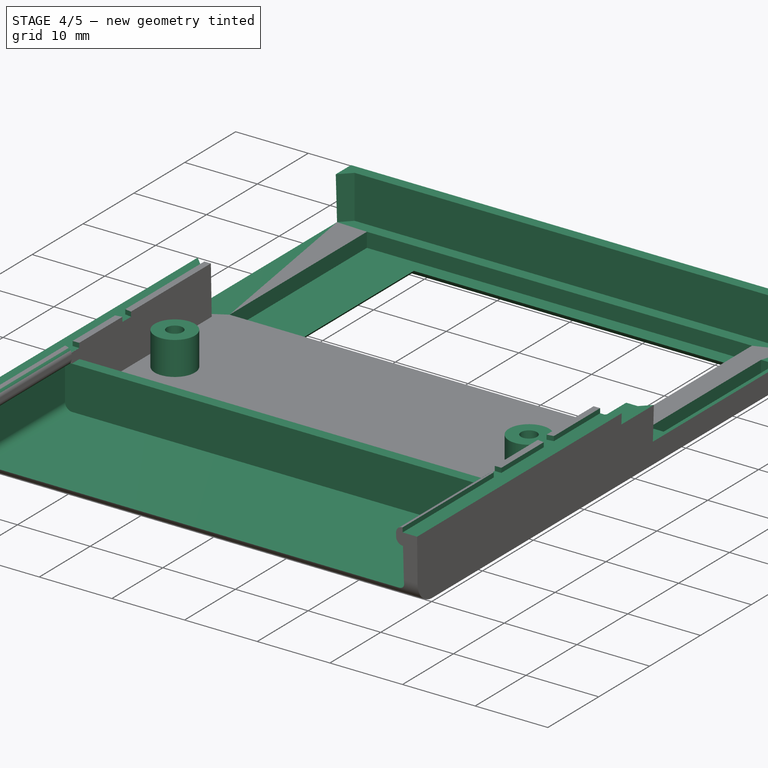
[diagram: stage 4 of 5 — iso view after this stage's code; geometry added in this stage tinted green]
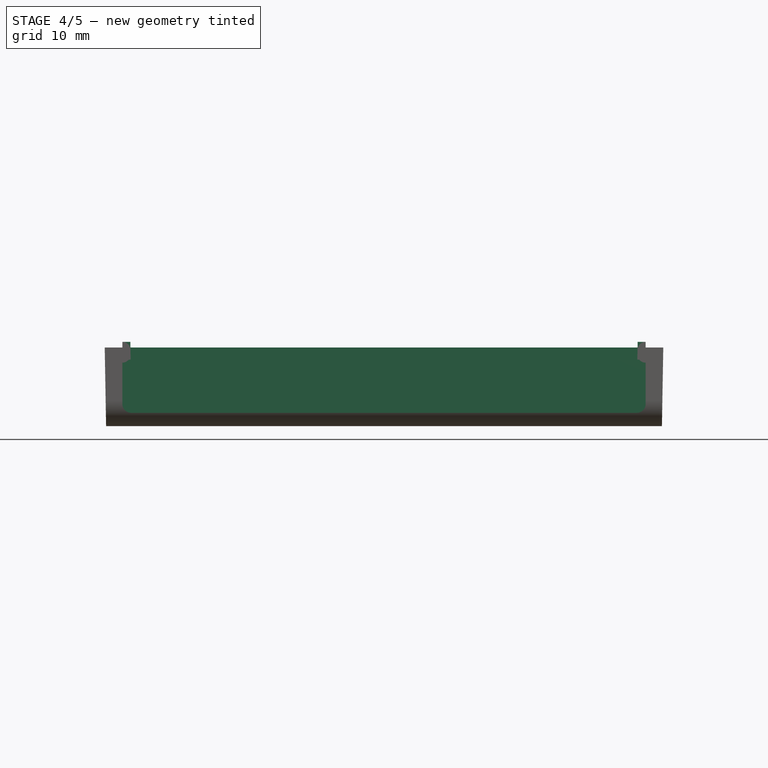
[diagram: stage 4 of 5 — front view after this stage's code; geometry added in this stage tinted green]
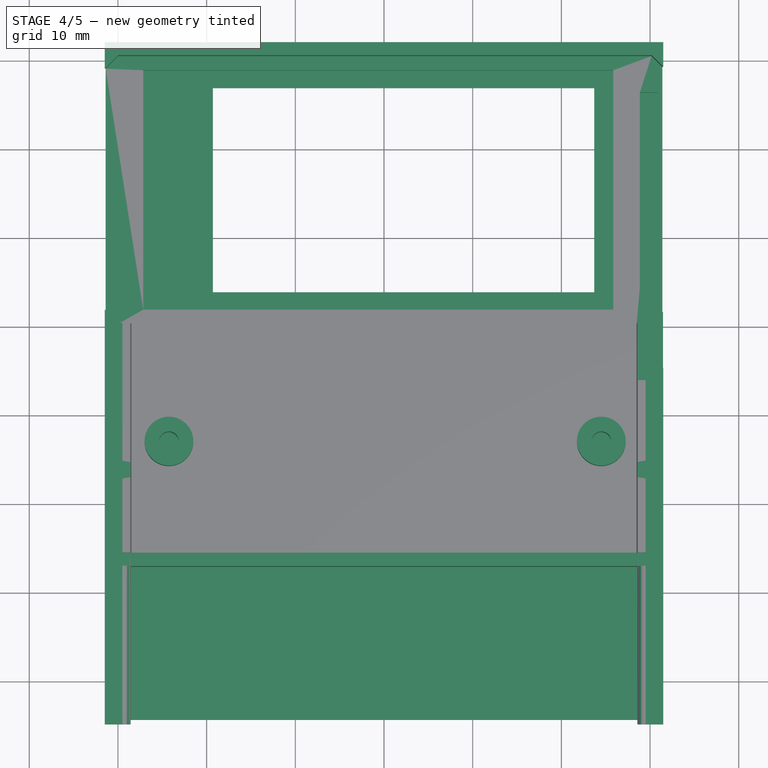
[diagram: stage 4 of 5 — top view after this stage's code; geometry added in this stage tinted green]
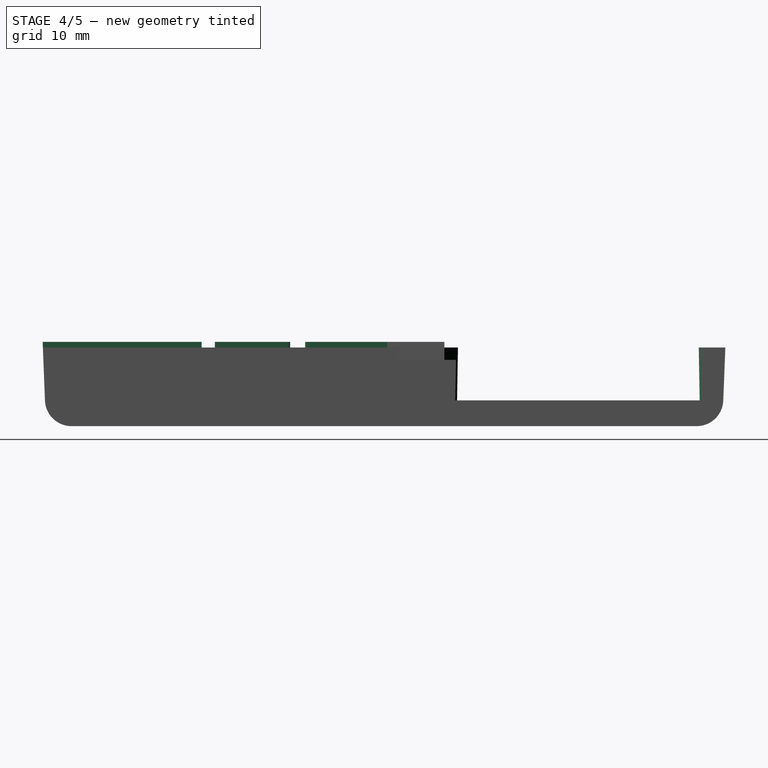
[diagram: stage 4 of 5 — right view after this stage's code; geometry added in this stage tinted green]
FEATURE [PartDesign::Body] Body  label="BackBody"
  AllowCompound = false
  Group = -> [Sketch,Pad,DatumPoint,DatumPoint001,DatumLine,Draft,Thickness,Sketch001,Pad001,DatumPlane,DatumPlane001,Sketch002,Pocket,Sketch003,Pad002,Pocket001,Sketch005,Pocket002,Sketch006,Pad005,Pocket003,Pocket004,Sketch007,Pad006,Fillet,Fillet001,Fillet002,Sketch008,Pad007,Sketch009,Pad008,ShapeString,Pocket011,Sketch024,Pocket017,Sketch025,Pocket018,Sketch026,Pocket019,Sketch027,Pocket020,Pad016,+1 more]
  Origin = -> Origin008
  Tip = -> Fillet004
FEATURE [PartDesign::SubShapeBinder] Binder  label="BackBinder"
  BindCopyOnChange = 0
  BindMode = 0
  ClaimChildren = false
  Context = -> Body003 [Binder.]
  Fuse = false
  MakeFace = true
  OffsetFill = false
  OffsetIntersection = false
  OffsetJoinType = 0
  OffsetOpenResult = false
  PartialLoad = false
  Relative = true
  Support = -> [Body[Fillet004.]]
  _Version = 2
FEATURE [Sketcher::SketchObject] Sketch011
  ArcFitTolerance = 1e-06
  AttachmentSupport = -> [Binder]
  FullyConstrained = true
  MakeInternals = false
  MapMode = 5
  Placement = pos=(0,0,-0.635) rot=(1,0,0;3.14159rad)
  sketch-geometry (36):
    g0: LineSegment StartX=-32.1 StartY=5.6 StartZ=0 EndX=-29.5 EndY=5.6 EndZ=0
    g1: LineSegment StartX=29.5 StartY=5.6 StartZ=0 EndX=32.1 EndY=5.6 EndZ=0
    g2: LineSegment StartX=32.1 StartY=5.6 StartZ=0 EndX=32.1 EndY=-72.6 EndZ=0
    g3: LineSegment StartX=32.1 StartY=-72.6 StartZ=0 EndX=-32.1 EndY=-72.6 EndZ=0
    g4: LineSegment StartX=-32.1 StartY=-72.6 StartZ=0 EndX=-32.1 EndY=5.6 EndZ=0
    g5: LineSegment StartX=-29.5 StartY=5.6 StartZ=0 EndX=-29.5 EndY=-12.9193 EndZ=0
    g6: LineSegment StartX=-29.5 StartY=-12.9193 StartZ=0 EndX=-20.5 EndY=-12.9193 EndZ=0
    g7: LineSegment StartX=-20.5 StartY=-12.9193 StartZ=0 EndX=-22 EndY=-14.4193 EndZ=0
    g8: LineSegment StartX=-22 StartY=-14.4193 StartZ=0 EndX=-29.5 EndY=-14.4193 EndZ=0
    g9: LineSegment StartX=-29.5 StartY=-14.4193 StartZ=0 EndX=-29.5 EndY=-22.75 EndZ=0
    g10: LineSegment StartX=-29.5 StartY=-22.75 StartZ=0 EndX=-28 EndY=-23 EndZ=0
    g11: LineSegment StartX=-28 StartY=-23 StartZ=0 EndX=-28 EndY=-24.5 EndZ=0
    g12: LineSegment StartX=-28 StartY=-24.5 StartZ=0 EndX=-29.5 EndY=-24.75 EndZ=0
    g13: LineSegment StartX=-29.5 StartY=-24.75 StartZ=0 EndX=-29.5 EndY=-64 EndZ=0
    g14: LineSegment StartX=-29.5 StartY=-64 StartZ=0 EndX=-28 EndY=-64.25 EndZ=0
    g15: LineSegment StartX=-28 StartY=-64.25 StartZ=0 EndX=-28 EndY=-65.75 EndZ=0
    g16: LineSegment StartX=-28 StartY=-65.75 StartZ=0 EndX=-29.5 EndY=-66 EndZ=0
    g17: LineSegment StartX=-29.5 StartY=-66 StartZ=0 EndX=-29.5 EndY=-69.9985 EndZ=0
    g18: LineSegment StartX=29.5 StartY=-69.9985 StartZ=0 EndX=29.5 EndY=-66 EndZ=0
    g19: LineSegment StartX=29.5 StartY=-66 StartZ=0 EndX=28 EndY=-65.75 EndZ=0
    g20: LineSegment StartX=28 StartY=-65.75 StartZ=0 EndX=28 EndY=-64.25 EndZ=0
    g21: LineSegment StartX=28 StartY=-64.25 StartZ=0 EndX=29.5 EndY=-64 EndZ=0
    g22: LineSegment StartX=29.5 StartY=-64 StartZ=0 EndX=29.5 EndY=-24.75 EndZ=0
    g23: LineSegment StartX=29.5 StartY=-24.75 StartZ=0 EndX=28 EndY=-24.5 EndZ=0
    g24: LineSegment StartX=28 StartY=-24.5 StartZ=0 EndX=28 EndY=-23 EndZ=0
    g25: LineSegment StartX=28 StartY=-23 StartZ=0 EndX=29.5 EndY=-22.75 EndZ=0
    g26: LineSegment StartX=29.5 StartY=-22.75 StartZ=0 EndX=29.5 EndY=-14.4193 EndZ=0
    g27: LineSegment StartX=29.5 StartY=-14.4193 StartZ=0 EndX=22 EndY=-14.4193 EndZ=0
    g28: LineSegment StartX=22 StartY=-14.4193 StartZ=0 EndX=20.5 EndY=-12.9193 EndZ=0
    g29: LineSegment StartX=20.5 StartY=-12.9193 StartZ=0 EndX=29.5 EndY=-12.9193 EndZ=0
    g30: LineSegment StartX=29.5 StartY=-12.9193 StartZ=0 EndX=29.5 EndY=5.6 EndZ=0
    g31: LineSegment StartX=-29.5 StartY=-69.9985 StartZ=0 EndX=-28 EndY=-69.9985 EndZ=0
    g32: LineSegment StartX=28 StartY=-69.9985 StartZ=0 EndX=29.5 EndY=-69.9985 EndZ=0
    g33: LineSegment StartX=-28 StartY=-69.9985 StartZ=0 EndX=-28 EndY=-66.75 EndZ=0
    g34: LineSegment StartX=-28 StartY=-66.75 StartZ=0 EndX=28 EndY=-66.75 EndZ=0
    g35: LineSegment StartX=28 StartY=-66.75 StartZ=0 EndX=28 EndY=-69.9985 EndZ=0
  constraints (82):
    c: Horizontal(g0)
    c: Coincident(g0,g5)
    c: Coincident(g17,g31)
    c: Coincident(g30,g1)
    c: Horizontal(g1)
    c: Coincident(g3,g4)
    c: Coincident(g1,g2)
    c: Coincident(g2,g3)
    c: Coincident(g0,g4)
    c: Coincident(g18,g32)
    c: Vertical(g4)
    c: Vertical(g2)
    c: Horizontal(g3)
    c: PointOnObject(g-13,g1)
    c: PointOnObject(g-12,g0)
    c: PointOnObject(g-11,g4)
    c: PointOnObject(g-9,g3)
    c: PointOnObject(g-14,g2)
    c: Coincident(g5,g6)
    c: Vertical(g5)
    c: Coincident(g6,g7)
    c: Coincident(g7,g8)
    c: Coincident(g8,g9)
    c: Coincident(g9,g10)
    c: Coincident(g10,g11)
    c: Coincident(g11,g12)
    c: Coincident(g12,g13)
    c: Coincident(g13,g14)
    c: Coincident(g14,g15)
    c: Coincident(g15,g16)
    c: Coincident(g16,g17)
    c: Coincident(g18,g19)
    c: Coincident(g19,g20)
    c: Coincident(g20,g21)
    c: Coincident(g21,g22)
    c: Coincident(g22,g23)
    c: Coincident(g23,g24)
    c: Coincident(g24,g25)
    c: Coincident(g25,g26)
    c: Coincident(g26,g27)
    c: Coincident(g27,g28)
    c: Coincident(g28,g29)
    c: Coincident(g29,g30)
    c: Vertical(g30)
    c: Coincident(g7,g-16)
    c: Coincident(g6,g-15)
    c: Coincident(g5,g-15)
    c: Coincident(g8,g-16)
    c: Coincident(g-19,g10)
    c: Coincident(g-19,g9)
    c: Coincident(g11,g-20)
    c: Coincident(g12,g-20)
    c: Coincident(g-17,g29)
    c: Coincident(g28,g-17)
    c: Coincident(g27,g-18)
    c: Coincident(g26,g-18)
    c: Coincident(g25,g-21)
    c: Coincident(g24,g-21)
    c: Coincident(g23,g-22)
    c: Coincident(g22,g-22)
    c: Coincident(g-23,g15)
    c: Coincident(g16,g-23)
    c: Coincident(g14,g-24)
    c: Coincident(g13,g-24)
    c: Coincident(g20,g-25)
    c: Coincident(g21,g-25)
    c: Coincident(g19,g-26)
    c: Coincident(g18,g-26)
    c: Coincident(g31,g-5)
    c: Horizontal(g31)
    c: Horizontal(g32)
    c: PointOnObject(g31,g15)
    c: PointOnObject(g32,g20)
    c: Coincident(g18,g-6)
    c: Coincident(g31,g33)
    c: Vertical(g33)
    c: Coincident(g33,g34)
    c: Horizontal(g34)
    c: Coincident(g34,g35)
    c: Coincident(g35,g32)
    c: Vertical(g35)
    c: DistanceY(g34,g19) = 1
FEATURE [PartDesign::Pocket] Pocket005  label="Remove parts that overlap the back"
  BaseFeature = -> Thickness001
  Direction = (0,0,1)
  Length = 5
  Length2 = 5
  Profile = -> Sketch011
  ReferenceAxis = -> Sketch011 [N_Axis]
  Suppressed = false
  Type = 1
FEATURE [Sketcher::SketchObject] Sketch014
  ArcFitTolerance = 1e-06
  ExternalGeometry = -> [Binder]
  FullyConstrained = true
  MakeInternals = false
  MapMode = 5
  Placement = pos=(0,12.9193,-2.9e-15) rot=(1,0,0;1.5708rad)
  sketch-geometry (4):
    g0: LineSegment StartX=-28.4844 StartY=-6.6 StartZ=0 EndX=28.4844 EndY=-6.6 EndZ=0
    g1: LineSegment StartX=28.4844 StartY=-6.6 StartZ=0 EndX=29.5 EndY=-2 EndZ=0
    g2: LineSegment StartX=29.5 StartY=-2 StartZ=0 EndX=-29.5 EndY=-2 EndZ=0
    g3: LineSegment StartX=-29.5 StartY=-2 StartZ=0 EndX=-28.4844 EndY=-6.6 EndZ=0
  constraints (8):
    c: Coincident(g-3,g0)
    c: Coincident(g0,g1)
    c: Coincident(g3,g0)
    c: Coincident(g2,g3)
    c: Coincident(g1,g2)
    c: Symmetric(g3,g1,g-2)
    c: Coincident(g0,g-3)
    c: Coincident(g2,g-5)
FEATURE [Sketcher::SketchObject] Sketch023
  ArcFitTolerance = 1e-06
  AttachmentSupport = -> [Pocket005]
  ExternalGeometry = -> [Pocket005]
  FullyConstrained = true
  MakeInternals = false
  MapMode = 5
  Placement = pos=(0,0,-0.635) rot=(0,0,1;0rad)
  sketch-geometry (8):
    g0: LineSegment StartX=30.0862 StartY=70.1451 StartZ=0 EndX=-26.7611 EndY=70.1451 EndZ=0
    g1: LineSegment StartX=-28.0111 StartY=68.8951 StartZ=0 EndX=28.4844 EndY=68.8951 EndZ=0
    g2: LineSegment StartX=28.4844 StartY=68.8951 StartZ=0 EndX=28.4844 EndY=33.8451 EndZ=0
    g3: LineSegment StartX=28.4844 StartY=33.8451 StartZ=0 EndX=30.0917 EndY=33.8451 EndZ=0
    g4: LineSegment StartX=31.4889 StartY=68.7423 StartZ=0 EndX=31.4889 EndY=35.2423 EndZ=0
    g5: LineSegment StartX=30.0917 StartY=33.8451 StartZ=0 EndX=31.4889 EndY=35.2423 EndZ=0
    g6: LineSegment StartX=30.0862 StartY=70.1451 StartZ=0 EndX=31.4889 EndY=68.7423 EndZ=0
    g7: LineSegment StartX=-28.0111 StartY=68.8951 StartZ=0 EndX=-26.7611 EndY=70.1451 EndZ=0
  constraints (24):
    c: DistanceY(g0,g-6) = 1.83
    c: DistanceX(g1,g4) = 59.5
    c: Horizontal(g1)
    c: Coincident(g2,g1)
    c: Vertical(g2)
    c: Coincident(g3,g2)
    c: Horizontal(g3)
    c: PointOnObject(g1,g-7)
    c: Horizontal(g0)
    c: Vertical(g4)
    c: PointOnObject(g4,g-6)
    c: Coincident(g5,g3)
    c: Coincident(g5,g4)
    c: Coincident(g6,g0)
    c: Coincident(g6,g4)
    c: Angle(g5,g4) = 0.785398
    c: Angle(g4,g6) = 0.785398
    c: DistanceY(g4,g4) = 33.5
    c: DistanceY(g3,g0) = 36.3
    c: Coincident(g7,g1)
    c: Coincident(g7,g0)
    c: Angle(g0,g7) = 0.785398
    c: DistanceY(g1,g0) = 1.25
    c: Horizontal(g-7,g4)
FEATURE [PartDesign::Pocket] Pocket014  label="Remove parts that overlap the PCB"
  BaseFeature = -> Pocket005
  Direction = (0,0,-1)
  Length = 1.4
  Length2 = 2
  Offset = 0.35
  Profile = -> Sketch023
  ReferenceAxis = -> Sketch023 [N_Axis]
  Suppressed = false
  Type = 4
FEATURE [Sketcher::SketchObject] Sketch012
  ArcFitTolerance = 1e-06
  ExternalGeometry = -> [Binder004,Pocket014]
  FullyConstrained = true
  MakeInternals = false
  MapMode = 5
  Placement = pos=(0,12.9193,0) rot=(1,0,0;1.5708rad)
  sketch-geometry (12):
    g0: LineSegment StartX=-29.5 StartY=-2.3416 StartZ=0 EndX=-29.5 EndY=-7 EndZ=0
    g1: ArcOfCircle CenterX=-28.5 CenterY=-7 CenterZ=0 NormalX=0 NormalY=0 NormalZ=1 AngleXU=0 Radius=1 StartAngle=3.14159 EndAngle=4.71239
    g2: LineSegment StartX=-28.5 StartY=-8 StartZ=0 EndX=28.5 EndY=-8 EndZ=0
    g3: ArcOfCircle CenterX=28.5 CenterY=-7 CenterZ=0 NormalX=0 NormalY=0 NormalZ=1 AngleXU=0 Radius=1 StartAngle=4.71239 EndAngle=6.28319
    g4: LineSegment StartX=29.5 StartY=-7 StartZ=0 EndX=29.5 EndY=-2.3416 EndZ=0
    g5: LineSegment StartX=29.5 StartY=0 StartZ=0 EndX=-29.5 EndY=0 EndZ=0
    g6: ArcOfCircle CenterX=29.5 CenterY=-0.916438 CenterZ=0 NormalX=0 NormalY=0 NormalZ=1 AngleXU=0 Radius=0.916438 StartAngle=1.5708 EndAngle=3.14159
    g7: ArcOfCircle CenterX=29.5 CenterY=-1.41644 CenterZ=0 NormalX=0 NormalY=0 NormalZ=1 AngleXU=0 Radius=0.925166 StartAngle=3.14159 EndAngle=4.71239
    g8: LineSegment StartX=28.5836 StartY=-0.916438 StartZ=0 EndX=28.5748 EndY=-1.41644 EndZ=0
    g9: ArcOfCircle CenterX=-29.5 CenterY=-0.916438 CenterZ=0 NormalX=0 NormalY=0 NormalZ=1 AngleXU=0 Radius=0.916438 StartAngle=0 EndAngle=1.5708
    g10: ArcOfCircle CenterX=-29.5 CenterY=-1.41644 CenterZ=0 NormalX=0 NormalY=0 NormalZ=1 AngleXU=0 Radius=0.925166 StartAngle=4.71239 EndAngle=6.28319
    g11: LineSegment StartX=-28.5836 StartY=-0.916438 StartZ=0 EndX=-28.5748 EndY=-1.41644 EndZ=0
  constraints (38):
    c: Vertical(g0)
    c: Tangent(g0,g1) = -1.5708
    c: Tangent(g2,g3) = -1.5708
    c: Vertical(g4)
    c: Horizontal(g2)
    c: PointOnObject(g-4,g0)
    c: Radius(g3) = 1
    c: Equal(g3,g1)
    c: Tangent(g1,g2) = -1.5708
    c: PointOnObject(g-7,g4)
    c: Tangent(g3,g4) = -1.5708
    c: DistanceY(g2,g5) = 8
    c: PointOnObject(g5,g-1)
    c: PointOnObject(g5,g-1)
    c: PointOnObject(g5,g0)
    c: PointOnObject(g5,g4)
    c: Horizontal(g0,g4)
    c: Angle(g6) = 1.5708
    c: Coincident(g6,g5)
    c: PointOnObject(g6,g4)
    c: PointOnObject(g6,g-10)
    c: Angle(g7) = 1.5708
    c: Coincident(g7,g4)
    c: PointOnObject(g7,g4)
    c: PointOnObject(g7,g-10)
    c: DistanceY(g7,g6) = 0.5
    c: Coincident(g8,g6)
    c: Coincident(g8,g7)
    c: PointOnObject(g9,g0)
    c: Coincident(g9,g5)
    c: Horizontal(g9,g9)
    c: PointOnObject(g9,g-9)
    c: Coincident(g10,g0)
    c: PointOnObject(g10,g-9)
    c: Horizontal(g10,g10)
    c: Vertical(g10,g0)
    c: Coincident(g11,g9)
    c: Coincident(g11,g10)
FEATURE [PartDesign::Pocket] Pocket006  label="Front opening"
  BaseFeature = -> Pocket014
  Direction = (0,1,0)
  Length = 5
  Length2 = 5
  Profile = -> Sketch012
  ReferenceAxis = -> Sketch012 [N_Axis]
  Refine = true
  Reversed = true
  Suppressed = false
  Type = 1
FEATURE [Sketcher::SketchObject] Sketch013
  ArcFitTolerance = 1e-06
  AttachmentOffset = pos=(0,0,-1.5) rot=(0,0,1;0rad)
  AttachmentSupport = -> [Pocket006]
  ExternalGeometry = -> [Binder005]
  FullyConstrained = true
  MakeInternals = false
  MapMode = 5
  Placement = pos=(0,0,-8.1) rot=(0,0,1;0rad)
  sketch-geometry (4):
    g0: Circle CenterX=24.5 CenterY=27 CenterZ=0 NormalX=0 NormalY=0 NormalZ=1 AngleXU=0 Radius=1.1
    g1: Circle CenterX=24.5 CenterY=27 CenterZ=0 NormalX=0 NormalY=0 NormalZ=1 AngleXU=0 Radius=2.75
    g2: Circle CenterX=-24.25 CenterY=27 CenterZ=0 NormalX=0 NormalY=0 NormalZ=1 AngleXU=0 Radius=1.1
    g3: Circle CenterX=-24.25 CenterY=27 CenterZ=0 NormalX=0 NormalY=0 NormalZ=1 AngleXU=0 Radius=2.75
  constraints (8):
    c: Coincident(g0,g-6)
    c: Equal(g0,g-6)
    c: Coincident(g1,g0)
    c: Coincident(g2,g-5)
    c: Equal(g2,g-5)
    c: Coincident(g3,g2)
    c: Equal(g-3,g1)
    c: Equal(g-4,g3)
FEATURE [PartDesign::Pad] Pad011  label="Top PCB barrier"
  BaseFeature = -> Pocket006
  Direction = (0,-1,0)
  Length = 1.5
  Length2 = 10
  Profile = -> Sketch014
  ReferenceAxis = -> Sketch014 [N_Axis]
  Refine = true
  Reversed = true
  Suppressed = false
  Type = 0
FEATURE [PartDesign::Pad] Pad017  label="Front Screw Columns"
  BaseFeature = -> Pad011
  Direction = (0,0,1)
  Length = 10
  Length2 = 10
  Profile = -> Sketch013 [Edge4,Edge2]
  ReferenceAxis = -> Sketch013 [N_Axis]
  Suppressed = false
  Type = 3
  UpToFace = -> Pad011 [Face56]
FEATURE [PartDesign::Pocket] Pocket022  label="Front Screw Holes"
  BaseFeature = -> Pad017
  Direction = (0,0,-1)
  Length = 5
  Length2 = 5
  Profile = -> Sketch013 [Edge1,Edge3]
  ReferenceAxis = -> Sketch013 [N_Axis]
  Reversed = true
  Suppressed = false
  Type = 1
FEATURE [Sketcher::SketchObject] Sketch030  label="Display area"
  ArcFitTolerance = 1e-06
  AttachmentSupport = -> [Pad019]
  ExternalGeometry = -> [Pad019]
  FullyConstrained = true
  MakeInternals = false
  MapMode = 5
  Placement = pos=(0,0,-8.2) rot=(1,0,0;3.14159rad)
  sketch-geometry (7):
    g0: LineSegment StartX=-19.3 StartY=-43.9 StartZ=0 EndX=-19.3 EndY=-66.9 EndZ=0
    g1: LineSegment StartX=-19.3 StartY=-66.9 StartZ=0 EndX=23.7 EndY=-66.9 EndZ=0
    g2: LineSegment StartX=23.7 StartY=-66.9 StartZ=0 EndX=23.7 EndY=-43.9 EndZ=0
    g3: LineSegment StartX=23.7 StartY=-43.9 StartZ=0 EndX=-19.3 EndY=-43.9 EndZ=0
    g4: GeomPoint [constr] X=-31.05 Y=-55.4 Z=0
    g5: GeomPoint [constr] X=31.25 Y=-55.4 Z=0
    g6: LineSegment [constr] StartX=-31.05 StartY=-55.4 StartZ=0 EndX=31.25 EndY=-55.4 EndZ=0
  constraints (15):
    c: Coincident(g0,g1)
    c: Coincident(g1,g2)
    c: Coincident(g2,g3)
    c: Coincident(g3,g0)
    c: Vertical(g2)
    c: Horizontal(g1)
    c: Horizontal(g3)
    c: DistanceX(g3,g3) = 43
    c: DistanceY(g2,g2) = 23
    c: Symmetric(g-3,g-3,g4)
    c: Symmetric(g-4,g-4,g5)
    c: Coincident(g6,g4)
    c: Coincident(g6,g5)
    c: Symmetric(g0,g0,g6)
    c: DistanceX(g-3,g0) = 11.75
FEATURE [PartDesign::Body] Body004  label="Display"
  AllowCompound = false
  Group = -> [Binder009,Sketch028,Pad018,Sketch029,Pad019,Sketch030]
  Origin = -> Origin
  Tip = -> Pad019
FEATURE [App::Part] Board_9dbe  label="DecentCart"
  Group = -> [Local_CS_9dbe,Board_Geoms_9dbe,Step_Models_9dbe,Body004]
  Origin = -> Origin013
  Placement = pos=(0,0,-0.4) rot=(0,0,1;0rad)
FEATURE [PartDesign::SubShapeBinder] Binder010  label="GlassBinder"
  BindCopyOnChange = 0
  BindMode = 0
  ClaimChildren = false
  Context = -> Body003 [Binder010.]
  Fuse = false
  MakeFace = true
  OffsetFill = false
  OffsetIntersection = false
  OffsetJoinType = 0
  OffsetOpenResult = false
  PartialLoad = false
  Relative = true
  Support = -> [Board_9dbe[Body004.Pad019.]]
  _Version = 2
FEATURE [Sketcher::SketchObject] Sketch015
  ArcFitTolerance = 1e-06
  AttachmentSupport = -> [Pad011]
  ExternalGeometry = -> [Binder010]
  FullyConstrained = true
  MakeInternals = false
  MapMode = 5
  Placement = pos=(0,0,-6.6) rot=(0,0,1;0rad)
  sketch-geometry (15):
    g0: LineSegment StartX=25.85 StartY=68.9 StartZ=0 EndX=25.85 EndY=41.9 EndZ=0
    g1: LineSegment StartX=25.85 StartY=41.9 StartZ=0 EndX=-25.15 EndY=41.9 EndZ=0
    g2: LineSegment [constr] StartX=-25.15 StartY=41.9 StartZ=0 EndX=-25.15 EndY=68.9 EndZ=0
    g3: LineSegment StartX=-25.15 StartY=68.9 StartZ=0 EndX=25.85 EndY=68.9 EndZ=0
    g4: LineSegment StartX=30.85 StartY=44.4 StartZ=0 EndX=30.85 EndY=66.4 EndZ=0
    g5: LineSegment StartX=30.85 StartY=66.4 StartZ=0 EndX=28.85 EndY=66.4 EndZ=0
    g6: LineSegment StartX=28.85 StartY=66.4 StartZ=0 EndX=28.85 EndY=44.4 EndZ=0
    g7: LineSegment StartX=28.85 StartY=44.4 StartZ=0 EndX=30.85 EndY=44.4 EndZ=0
    g8: GeomPoint [constr] X=0.35 Y=55.4 Z=0
    g9: GeomPoint [constr] X=25.35 Y=55.4 Z=0
    g10: LineSegment [constr] StartX=25.35 StartY=55.4 StartZ=0 EndX=0.35 EndY=55.4 EndZ=0
    g11: GeomPoint [constr] X=29.85 Y=44.4 Z=0
    g12: LineSegment StartX=-25.15 StartY=41.9 StartZ=0 EndX=-27.15 EndY=41.9 EndZ=0
    g13: LineSegment StartX=-27.15 StartY=41.9 StartZ=0 EndX=-27.15 EndY=68.9 EndZ=0
    g14: LineSegment StartX=-27.15 StartY=68.9 StartZ=0 EndX=-25.15 EndY=68.9 EndZ=0
  constraints (35):
    c: Coincident(g0,g1)
    c: Coincident(g1,g2)
    c: Coincident(g2,g3)
    c: Coincident(g3,g0)
    c: Vertical(g0)
    c: Vertical(g2)
    c: Horizontal(g1)
    c: Horizontal(g3)
    c: Coincident(g4,g5)
    c: Coincident(g5,g6)
    c: Coincident(g6,g7)
    c: Coincident(g7,g4)
    c: Vertical(g4)
    c: Horizontal(g5)
    c: Horizontal(g7)
    c: Symmetric(g-3,g-4,g8)
    c: Symmetric(g0,g1,g8)
    c: DistanceX(g-3,g0) = 0.5
    c: DistanceY(g4,g4) = 22
    c: DistanceX(g7,g7) = 2
    c: Symmetric(g-3,g-3,g9)
    c: Coincident(g10,g9)
    c: Coincident(g10,g8)
    c: Symmetric(g6,g5,g10)
    c: Symmetric(g7,g7,g11)
    c: DistanceX(g11,g-5) = 1.4
    c: Coincident(g1,g12)
    c: Horizontal(g12)
    c: Coincident(g12,g13)
    c: Vertical(g13)
    c: Coincident(g13,g14)
    c: Coincident(g14,g2)
    c: Horizontal(g14)
    c: DistanceX(g12,g12) = 2
    c: DistanceY(g-3,g0) = 0.5
FEATURE [PartDesign::Pocket] Pocket007  label="Screen glass pocket001"
  BaseFeature = -> Pocket022
  Direction = (0,0,-1)
  Length = 2
  Length2 = 5
  Profile = -> Sketch015
  ReferenceAxis = -> Sketch015 [N_Axis]
  Suppressed = false
  Type = 0
FEATURE [PartDesign::SubShapeBinder] Binder011  label="DisplayPCBBinder"
  BindCopyOnChange = 0
  BindMode = 0
  ClaimChildren = false
  Context = -> Body003 [Binder011.]
  Fuse = false
  MakeFace = true
  OffsetFill = false
  OffsetIntersection = false
  OffsetJoinType = 0
  OffsetOpenResult = false
  PartialLoad = false
  Relative = true
  Support = -> [Board_9dbe[Body004.Pad018.]]
  _Version = 2
FEATURE [Sketcher::SketchObject] Sketch031
  ArcFitTolerance = 1e-06
  AttachmentSupport = -> [Binder011]
  ExternalGeometry = -> [Binder011,Pocket007]
  FullyConstrained = true
  MakeInternals = false
  MapMode = 5
  Placement = pos=(0,0,-6.6) rot=(1,0,0;3.14159rad)
  sketch-geometry (8):
    g0: LineSegment StartX=-31.4889 StartY=-41.8247 StartZ=0 EndX=-29.9642 EndY=-40.3 EndZ=0
    g1: LineSegment StartX=-29.9642 StartY=-40.3 StartZ=0 EndX=30.1642 EndY=-40.3 EndZ=0
    g2: LineSegment StartX=30.1642 StartY=-40.3 StartZ=0 EndX=31.4889 EndY=-41.6247 EndZ=0
    g3: LineSegment StartX=31.4889 StartY=-41.6247 StartZ=0 EndX=31.4889 EndY=-69.1753 EndZ=0
    g4: LineSegment StartX=31.4889 StartY=-69.1753 StartZ=0 EndX=30.1642 EndY=-70.5 EndZ=0
    g5: LineSegment StartX=30.1642 StartY=-70.5 StartZ=0 EndX=-29.9642 EndY=-70.5 EndZ=0
    g6: LineSegment StartX=-29.9642 StartY=-70.5 StartZ=0 EndX=-31.4889 EndY=-68.9753 EndZ=0
    g7: LineSegment StartX=-31.4889 StartY=-68.9753 StartZ=0 EndX=-31.4889 EndY=-41.8247 EndZ=0
  constraints (24):
    c: Coincident(g0,g1)
    c: Horizontal(g1)
    c: Coincident(g1,g2)
    c: Coincident(g2,g3)
    c: Vertical(g3)
    c: Coincident(g3,g4)
    c: Coincident(g4,g5)
    c: Horizontal(g5)
    c: Coincident(g5,g6)
    c: Coincident(g6,g7)
    c: Coincident(g7,g0)
    c: Vertical(g7)
    c: PointOnObject(g2,g-8)
    c: PointOnObject(g0,g-7)
    c: Angle(g0,g-7) = 0.785398
    c: Angle(g-8,g2) = 0.785398
    c: Angle(g-7,g6) = 0.785398
    c: Angle(g4,g-8) = 0.785398
    c: Tangent(g6,g-6)
    c: Tangent(g-3,g0)
    c: Tangent(g-4,g2)
    c: Tangent(g4,g-5)
    c: DistanceY(g4,g-5) = 0.5
    c: DistanceY(g-4,g1) = 0.5
FEATURE [PartDesign::Pocket] Pocket023  label="Display PCB opening"
  BaseFeature = -> Pocket007
  Direction = (0,0,1)
  Length = 5
  Length2 = 5
  Profile = -> Sketch031
  ReferenceAxis = -> Sketch031 [N_Axis]
  Suppressed = false
  Type = 1
FEATURE [PartDesign::SubShapeBinder] Binder012  label="Display area binder"
  BindCopyOnChange = 0
  BindMode = 0
  ClaimChildren = false
  Context = -> Body003 [Binder012.]
  Fuse = false
  MakeFace = true
  OffsetFill = false
  OffsetIntersection = false
  OffsetJoinType = 0
  OffsetOpenResult = false
  PartialLoad = false
  Relative = true
  Support = -> [Board_9dbe[Body004.Sketch030.]]
  _Version = 2
FEATURE [PartDesign::Pocket] Pocket024  label="Display Area Window"
  BaseFeature = -> Pocket023
  Direction = (0,0,-1)
  Length = 5
  Length2 = 5
  Profile = -> Binder012
  Refine = true
  Suppressed = false
  TaperAngle = 45
  Type = 0
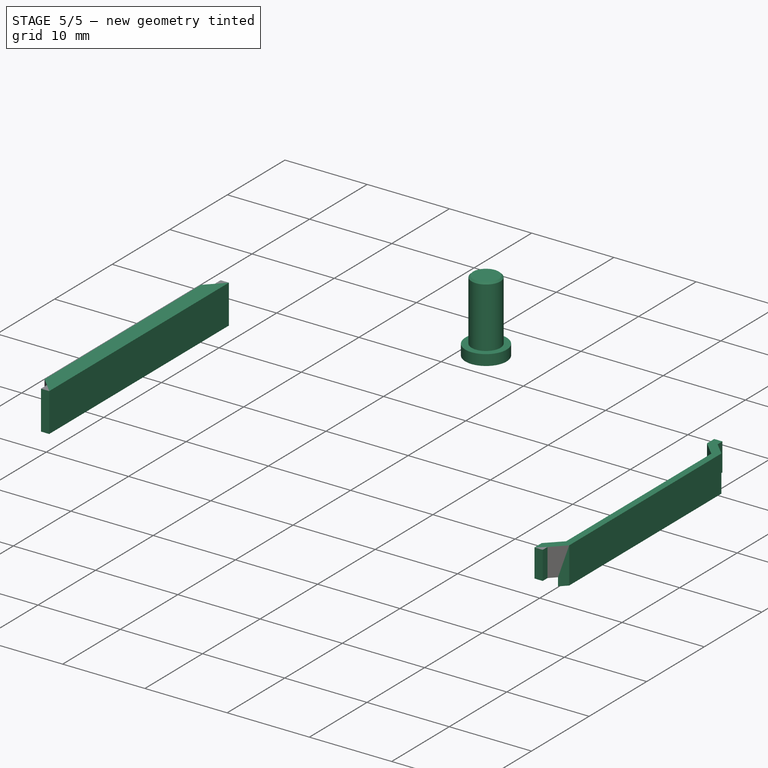
[diagram: stage 5 of 5 — iso view after this stage's code; geometry added in this stage tinted green]
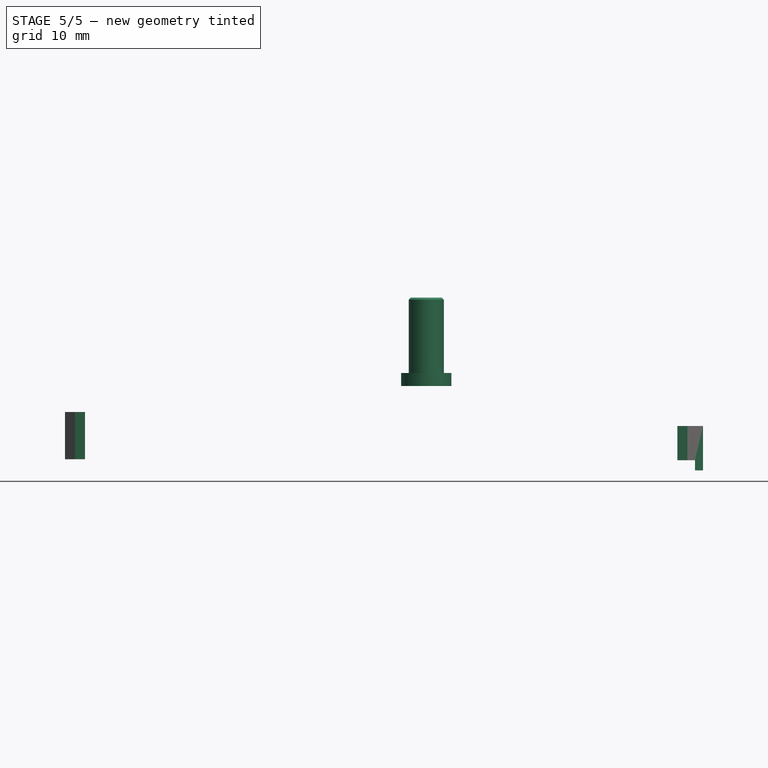
[diagram: stage 5 of 5 — front view after this stage's code; geometry added in this stage tinted green]
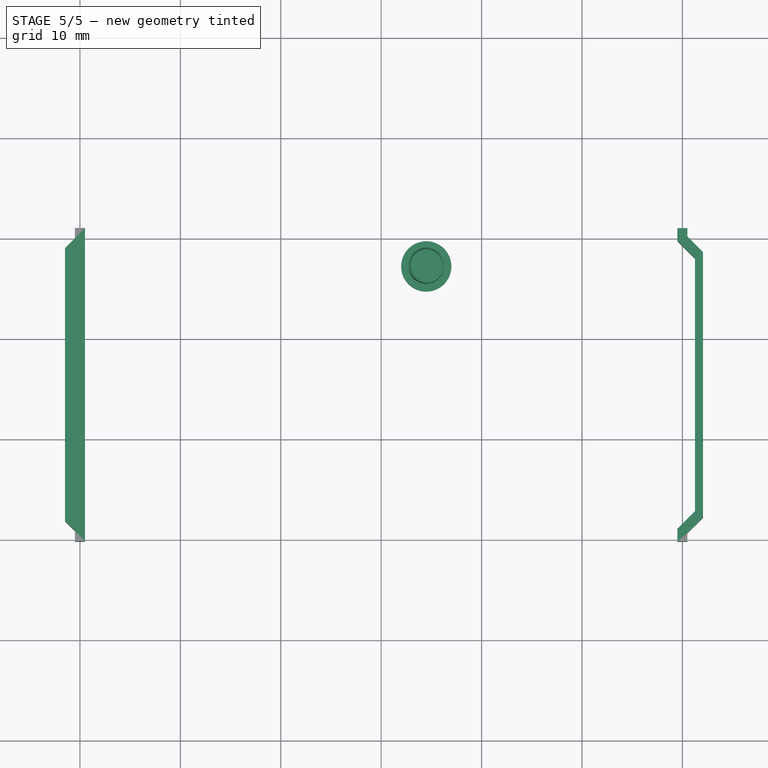
[diagram: stage 5 of 5 — top view after this stage's code; geometry added in this stage tinted green]
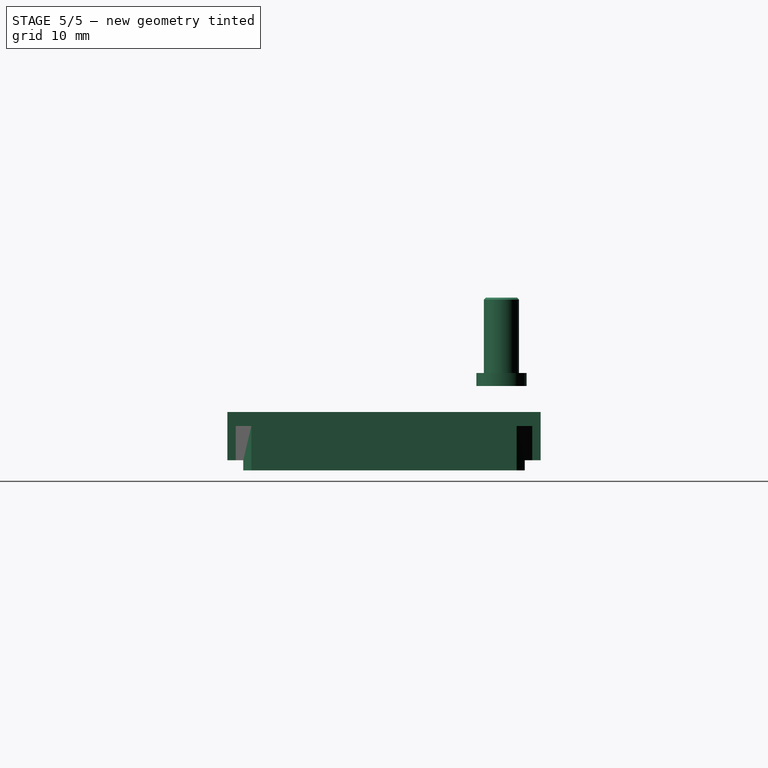
[diagram: stage 5 of 5 — right view after this stage's code; geometry added in this stage tinted green]
FEATURE [PartDesign::SubShapeBinder] Binder001
  BindCopyOnChange = 0
  BindMode = 0
  ClaimChildren = false
  Context = -> Body001 [Binder001.]
  Fuse = false
  MakeFace = true
  OffsetFill = false
  OffsetIntersection = false
  OffsetJoinType = 0
  OffsetOpenResult = false
  PartialLoad = false
  Relative = true
  Support = -> [Body[Pocket001.]]
  _Version = 2
FEATURE [Sketcher::SketchObject] Sketch004
  ArcFitTolerance = 1e-06
  AttachmentSupport = -> [Binder001]
  ExternalGeometry = -> [Binder001]
  FullyConstrained = false
  MakeInternals = false
  MapMode = 5
  Placement = pos=(0,0,3.25) rot=(1,0,0;3.14159rad)
  sketch-geometry (3):
    g0: Circle CenterX=4.49 CenterY=-67.1 CenterZ=0 NormalX=0 NormalY=0 NormalZ=1 AngleXU=0 Radius=2.5
    g1: Circle [constr] CenterX=4.49 CenterY=-67.1 CenterZ=0 NormalX=0 NormalY=0 NormalZ=1 AngleXU=0 Radius=2.9174
    g2: Circle CenterX=4.49 CenterY=-67.1 CenterZ=0 NormalX=0 NormalY=0 NormalZ=1 AngleXU=0 Radius=1.75
  constraints (4):
    c: Coincident(g1,g0)
    c: Coincident(g2,g0)
    c: Diameter(g0) = 5
    c: Diameter(g2) = 3.5
FEATURE [PartDesign::Pad] Pad003
  Direction = (0,0,-1)
  Length = 1.3
  Length2 = 10
  Profile = -> Sketch004 [Edge1]
  ReferenceAxis = -> Sketch004 [N_Axis]
  Suppressed = false
  Type = 0
FEATURE [PartDesign::Pad] Pad004
  BaseFeature = -> Pad003
  Direction = (0,0,-1)
  Length = 7.5
  Length2 = 10
  Profile = -> Sketch004 [Edge2]
  ReferenceAxis = -> Sketch004 [N_Axis]
  Reversed = true
  Suppressed = false
  Type = 0
FEATURE [PartDesign::Chamfer] Chamfer
  Angle = 45
  Base = -> Pad004 [Edge6]
  BaseFeature = -> Pad004
  ChamferType = 0
  FlipDirection = false
  Size = 0.2
  Size2 = 1
  SupportTransform = false
  Suppressed = false
  UseAllEdges = false
FEATURE [PartDesign::Body] Body001  label="Reset button"
  AllowCompound = false
  Group = -> [Binder001,Sketch004,Pad003,Pad004,Chamfer]
  Origin = -> Origin009
  Placement = pos=(0,0,-0.85) rot=(0,0,1;0rad)
  Tip = -> Chamfer
FEATURE [PartDesign::FeatureBase] Clone
  BaseFeature = -> Body001
  Suppressed = false
FEATURE [Sketcher::SketchObject] Sketch020
  ArcFitTolerance = 1e-06
  FullyConstrained = true
  MakeInternals = false
  MapMode = 5
  Placement = pos=(0,0,-9.5) rot=(1,0,0;3.14159rad)
  sketch-geometry (16):
    g0: LineSegment StartX=-27 StartY=4.34038 StartZ=0 EndX=-27 EndY=-1.15962 EndZ=0
    g1: LineSegment StartX=-26.5 StartY=-1.65962 StartZ=0 EndX=-24.9 EndY=-1.65962 EndZ=0
    g2: LineSegment StartX=-24.4 StartY=-1.15962 StartZ=0 EndX=-24.4 EndY=4.34038 EndZ=0
    g3: LineSegment StartX=-24.4 StartY=4.34038 StartZ=0 EndX=-27 EndY=4.34038 EndZ=0
    g4: LineSegment StartX=24.4 StartY=4.34038 StartZ=0 EndX=24.4 EndY=-1.15962 EndZ=0
    g5: LineSegment StartX=24.9 StartY=-1.65962 StartZ=0 EndX=26.5 EndY=-1.65962 EndZ=0
    g6: LineSegment StartX=27 StartY=-1.15962 StartZ=0 EndX=27 EndY=4.34038 EndZ=0
    g7: LineSegment StartX=27 StartY=4.34038 StartZ=0 EndX=24.4 EndY=4.34038 EndZ=0
    g8: ArcOfCircle CenterX=-26.5 CenterY=-1.15962 CenterZ=0 NormalX=0 NormalY=0 NormalZ=1 AngleXU=0 Radius=0.5 StartAngle=3.14159 EndAngle=4.71239
    g9: GeomPoint [constr] X=-27 Y=-1.65962 Z=0
    g10: ArcOfCircle CenterX=-24.9 CenterY=-1.15962 CenterZ=0 NormalX=0 NormalY=0 NormalZ=1 AngleXU=0 Radius=0.5 StartAngle=4.71239 EndAngle=6.28319
    g11: GeomPoint [constr] X=-24.4 Y=-1.65962 Z=0
    g12: ArcOfCircle CenterX=24.9 CenterY=-1.15962 CenterZ=0 NormalX=0 NormalY=0 NormalZ=1 AngleXU=0 Radius=0.5 StartAngle=3.14159 EndAngle=4.71239
    g13: GeomPoint [constr] X=24.4 Y=-1.65962 Z=0
    g14: ArcOfCircle CenterX=26.5 CenterY=-1.15962 CenterZ=0 NormalX=0 NormalY=0 NormalZ=1 AngleXU=0 Radius=0.5 StartAngle=4.71239 EndAngle=6.28319
    g15: GeomPoint [constr] X=27 Y=-1.65962 Z=0
  constraints (39):
    c: Coincident(g2,g3)
    c: Coincident(g3,g0)
    c: Vertical(g0)
    c: Vertical(g2)
    c: Horizontal(g1)
    c: Horizontal(g3)
    c: Distance(g0,g2) = 2.6
    c: Distance(g9,g3) = 6
    c: Coincident(g6,g7)
    c: Coincident(g7,g4)
    c: Vertical(g4)
    c: Vertical(g6)
    c: Horizontal(g5)
    c: Horizontal(g7)
    c: DistanceX(g0,g6) = 54
    c: Symmetric(g2,g4,g-2)
    c: PointOnObject(g9,g0)
    c: PointOnObject(g9,g1)
    c: Tangent(g0,g8) = -1.5708
    c: Tangent(g1,g8) = -1.5708
    c: PointOnObject(g11,g1)
    c: PointOnObject(g11,g2)
    c: Tangent(g1,g10) = -1.5708
    c: Tangent(g2,g10) = -1.5708
    c: PointOnObject(g13,g4)
    c: PointOnObject(g13,g5)
    c: Tangent(g4,g12) = -1.5708
    c: Tangent(g5,g12) = -1.5708
    c: PointOnObject(g15,g5)
    c: PointOnObject(g15,g6)
    c: Tangent(g5,g14) = -1.5708
    c: Tangent(g6,g14) = -1.5708
    c: Radius(g8) = 0.5
    c: Equal(g8,g10)
    c: Equal(g8,g12)
    c: Equal(g8,g14)
    c: Horizontal(g5,g1)
    c: Equal(g7,g3)
    c: PointOnObject(g0,g-3)
FEATURE [PartDesign::Pocket] Pocket012  label="Slots"
  BaseFeature = -> Pocket024
  Direction = (0,1e-16,1)
  Length = 5
  Length2 = 5
  Profile = -> Sketch020
  ReferenceAxis = -> Sketch020 [N_Axis]
  Suppressed = false
  Type = 1
FEATURE [PartDesign::Fillet] Fillet005
  Base = -> Pocket012 [Edge39,Edge91]
  BaseFeature = -> Pocket012
  Radius = 1
  Refine = true
  SupportTransform = false
  Suppressed = false
  UseAllEdges = false
FEATURE [Sketcher::SketchObject] Sketch032
  ArcFitTolerance = 1e-06
  AttachmentSupport = -> [Fillet005]
  ExternalGeometry = -> [Fillet005]
  FullyConstrained = true
  MakeInternals = false
  MapMode = 5
  Placement = pos=(0,0,-0.635) rot=(0,0,1;0rad)
  sketch-geometry (8):
    g0: LineSegment StartX=-30.5 StartY=71 StartZ=0 EndX=-30.5 EndY=39.8 EndZ=0
    g1: LineSegment StartX=-30.5 StartY=39.8 StartZ=0 EndX=-29.5 EndY=39.8 EndZ=0
    g2: LineSegment StartX=-29.5 StartY=39.8 StartZ=0 EndX=-29.5 EndY=71 EndZ=0
    g3: LineSegment StartX=-29.5 StartY=71 StartZ=0 EndX=-30.5 EndY=71 EndZ=0
    g4: LineSegment StartX=29.5 StartY=71 StartZ=0 EndX=29.5 EndY=39.8 EndZ=0
    g5: LineSegment StartX=29.5 StartY=39.8 StartZ=0 EndX=30.5 EndY=39.8 EndZ=0
    g6: LineSegment StartX=30.5 StartY=39.8 StartZ=0 EndX=30.5 EndY=71 EndZ=0
    g7: LineSegment StartX=30.5 StartY=71 StartZ=0 EndX=29.5 EndY=71 EndZ=0
  constraints (24):
    c: Coincident(g0,g1)
    c: Coincident(g1,g2)
    c: Coincident(g2,g3)
    c: Coincident(g3,g0)
    c: Vertical(g0)
    c: Vertical(g2)
    c: Horizontal(g1)
    c: Horizontal(g3)
    c: Coincident(g4,g5)
    c: Coincident(g5,g6)
    c: Coincident(g6,g7)
    c: Coincident(g7,g4)
    c: Vertical(g4)
    c: Vertical(g6)
    c: Horizontal(g5)
    c: Horizontal(g7)
    c: DistanceY(g-3,g2) = 0.5
    c: Horizontal(g2,g4)
    c: DistanceY(g0,g-4) = 0.5
    c: Vertical(g-4,g1)
    c: DistanceX(g1,g1) = 1
    c: DistanceX(g5,g5) = 1
    c: DistanceY(g5,g-5) = 0.5
    c: Vertical(g4,g-6)
FEATURE [PartDesign::Pocket] Pocket025  label="PCB side pockets"
  BaseFeature = -> Fillet005
  Direction = (0,0,-1)
  Length = 0
  Length2 = 5
  Profile = -> Sketch032
  ReferenceAxis = -> Sketch032 [N_Axis]
  Refine = true
  Suppressed = false
  Type = 3
  UpToFace = -> Fillet005 [Face6]
FEATURE [PartDesign::Body] Body003  label="FrontBody"
  AllowCompound = false
  Group = -> [Binder012,Binder011,Binder010,Binder,Binder002,Sketch010,Pad009,Draft001,Thickness001,Sketch011,Pocket005,Binder004,Sketch012,Sketch023,Binder008,Pocket014,Pocket006,Pad011,Sketch013,Binder005,Pad017,Pocket022,Sketch014,Sketch015,Pocket007,Pocket023,Pocket024,Sketch031,Sketch020,Pocket012,Fillet005,Sketch032,Pocket025]
  Origin = -> Origin011
  Tip = -> Pocket025
FEATURE [PartDesign::SubShapeBinder] Binder013  label="Display PCB binder"
  BindCopyOnChange = 0
  BindMode = 0
  ClaimChildren = false
  Context = -> Board_9dbe [Body005.Binder013.]
  Fuse = false
  MakeFace = true
  OffsetFill = false
  OffsetIntersection = false
  OffsetJoinType = 0
  OffsetOpenResult = false
  PartialLoad = false
  Placement = pos=(0,0,-0.5) rot=(0,0,1;0rad)
  Relative = true
  Support = -> [Body004[Pad018.]]
  _Version = 2
FEATURE [PartDesign::SubShapeBinder] Binder014  label="Front body binder"
  BindCopyOnChange = 0
  BindMode = 0
  ClaimChildren = false
  Context = -> Body005 [Binder014.]
  Fuse = false
  MakeFace = true
  OffsetFill = false
  OffsetIntersection = false
  OffsetJoinType = 0
  OffsetOpenResult = false
  PartialLoad = false
  Relative = true
  Support = -> [Body003]
  _Version = 2
FEATURE [Sketcher::SketchObject] Sketch033
  ArcFitTolerance = 1e-06
  AttachmentSupport = -> [Binder013]
  ExternalGeometry = -> [Binder014,Binder013]
  FullyConstrained = true
  MakeInternals = false
  MapMode = 5
  Placement = pos=(0,0,-5.45) rot=(0,0,1;0rad)
  sketch-geometry (14):
    g0: LineSegment StartX=29.5 StartY=71 StartZ=0 EndX=30.5 EndY=71 EndZ=0
    g1: LineSegment StartX=30.5 StartY=71 StartZ=0 EndX=30.5 EndY=70.1642 EndZ=0
    g2: LineSegment StartX=30.5 StartY=70.1642 StartZ=0 EndX=32.05 EndY=68.6142 EndZ=0
    g3: LineSegment StartX=32.05 StartY=42.1858 StartZ=0 EndX=30.5 EndY=40.6358 EndZ=0
    g4: LineSegment StartX=30.5 StartY=40.6358 StartZ=0 EndX=30.5 EndY=39.8 EndZ=0
    g5: LineSegment StartX=30.5 StartY=39.8 StartZ=0 EndX=29.5 EndY=39.8 EndZ=0
    g6: LineSegment StartX=32.05 StartY=42.1858 StartZ=0 EndX=32.05 EndY=68.6142 EndZ=0
    g7: LineSegment StartX=29.5 StartY=71 StartZ=0 EndX=29.5 EndY=69.75 EndZ=0
    g8: LineSegment StartX=29.5 StartY=69.75 StartZ=0 EndX=31.25 EndY=68 EndZ=0
    g9: LineSegment StartX=31.25 StartY=68 StartZ=0 EndX=31.25 EndY=42.8 EndZ=0
    g10: LineSegment StartX=31.25 StartY=42.8 StartZ=0 EndX=29.5 EndY=41.05 EndZ=0
    g11: LineSegment StartX=29.5 StartY=41.05 StartZ=0 EndX=29.5 EndY=39.8 EndZ=0
    g12: LineSegment [constr] StartX=29.5 StartY=69.75 StartZ=0 EndX=30.5 EndY=70.1642 EndZ=0
    g13: LineSegment [constr] StartX=30.5 StartY=40.6358 StartZ=0 EndX=29.5 EndY=41.05 EndZ=0
  constraints (34):
    c: Coincident(g-4,g0)
    c: Coincident(g0,g-4)
    c: Coincident(g0,g1)
    c: Coincident(g1,g-3)
    c: Coincident(g1,g2)
    c: Coincident(g3,g-5)
    c: Coincident(g3,g4)
    c: Coincident(g4,g-6)
    c: Coincident(g4,g5)
    c: Coincident(g5,g-6)
    c: PointOnObject(g2,g-3)
    c: PointOnObject(g3,g-5)
    c: Coincident(g6,g3)
    c: Coincident(g6,g2)
    c: Vertical(g6)
    c: Coincident(g0,g7)
    c: Vertical(g7)
    c: Coincident(g7,g8)
    c: PointOnObject(g8,g-7)
    c: Coincident(g8,g9)
    c: PointOnObject(g9,g-7)
    c: Coincident(g9,g10)
    c: Coincident(g10,g11)
    c: Coincident(g11,g5)
    c: Vertical(g11)
    c: Parallel(g3,g10)
    c: Parallel(g8,g2)
    c: DistanceX(g-7,g2) = 0.8
    c: Coincident(g12,g7)
    c: Coincident(g12,g1)
    c: Angle(g12,g7) = 1.1781
    c: Coincident(g13,g3)
    c: Coincident(g13,g10)
    c: Angle(g13,g10) = 1.1781
FEATURE [PartDesign::Pad] Pad020
  Direction = (0,0,1)
  Length = 10
  Length2 = 10
  Placement = pos=(0,0,-0.5) rot=(0,0,1;0rad)
  Profile = -> Sketch033
  ReferenceAxis = -> Sketch033 [N_Axis]
  Suppressed = false
  Type = 3
  UpToFace = -> Binder014 [Face74]
FEATURE [PartDesign::SubShapeBinder] Binder016  label="Front body binder for right cover"
  BindCopyOnChange = 0
  BindMode = 0
  ClaimChildren = false
  Context = -> Body006 [Binder016.]
  Fuse = false
  MakeFace = true
  OffsetFill = false
  OffsetIntersection = false
  OffsetJoinType = 0
  OffsetOpenResult = false
  PartialLoad = false
  Relative = true
  Support = -> [Body003]
  _Version = 2
FEATURE [PartDesign::SubShapeBinder] Binder017  label="Display PCB binder for the right cover"
  BindCopyOnChange = 0
  BindMode = 0
  ClaimChildren = false
  Context = -> Body006 [Binder017.]
  Fuse = false
  MakeFace = true
  OffsetFill = false
  OffsetIntersection = false
  OffsetJoinType = 0
  OffsetOpenResult = false
  PartialLoad = false
  Relative = true
  Support = -> [Board_9dbe[Body004.Pad018.]]
  _Version = 2
FEATURE [Sketcher::SketchObject] Sketch034
  ArcFitTolerance = 1e-06
  AttachmentSupport = -> [Binder017]
  ExternalGeometry = -> [Binder016]
  FullyConstrained = true
  MakeInternals = false
  MapMode = 5
  Placement = pos=(0,0,-5.35) rot=(0,0,1;0rad)
  sketch-geometry (8):
    g0: LineSegment StartX=-31.4889 StartY=68.9753 StartZ=0 EndX=-31.4889 EndY=41.8247 EndZ=0
    g1: LineSegment StartX=-31.4889 StartY=41.8247 StartZ=0 EndX=-30.5 EndY=40.8358 EndZ=0
    g2: LineSegment StartX=-30.5 StartY=40.8358 StartZ=0 EndX=-30.5 EndY=39.8 EndZ=0
    g3: LineSegment StartX=-30.5 StartY=39.8 StartZ=0 EndX=-29.5 EndY=39.8 EndZ=0
    g4: LineSegment StartX=-29.5 StartY=39.8 StartZ=0 EndX=-29.5 EndY=71 EndZ=0
    g5: LineSegment StartX=-29.5 StartY=71 StartZ=0 EndX=-30.5 EndY=71 EndZ=0
    g6: LineSegment StartX=-30.5 StartY=71 StartZ=0 EndX=-30.5 EndY=69.9642 EndZ=0
    g7: LineSegment StartX=-30.5 StartY=69.9642 StartZ=0 EndX=-31.4889 EndY=68.9753 EndZ=0
  constraints (16):
    c: Coincident(g-6,g0)
    c: Coincident(g0,g-5)
    c: Coincident(g0,g1)
    c: Coincident(g1,g-5)
    c: Coincident(g1,g2)
    c: Coincident(g2,g-4)
    c: Coincident(g2,g3)
    c: Coincident(g3,g-4)
    c: Coincident(g3,g4)
    c: Coincident(g4,g-3)
    c: Coincident(g4,g5)
    c: Coincident(g5,g-3)
    c: Coincident(g5,g6)
    c: Coincident(g6,g-6)
    c: Coincident(g6,g7)
    c: Coincident(g7,g0)
FEATURE [PartDesign::Pad] Pad021
  Direction = (0,0,1)
  Length = 10
  Length2 = 10
  Profile = -> Sketch034
  ReferenceAxis = -> Sketch034 [N_Axis]
  Suppressed = false
  Type = 3
  UpToFace = -> Binder016 [Face7]
FEATURE [PartDesign::Body] Body006  label="Right cover"
  AllowCompound = false
  Group = -> [Binder016,Binder017,Sketch034,Pad021]
  Origin = -> Origin040
  Tip = -> Pad021
FEATURE [Sketcher::SketchObject] Sketch035
  ArcFitTolerance = 1e-06
  AttachmentSupport = -> [Pad020]
  ExternalGeometry = -> [Pad020]
  FullyConstrained = true
  MakeInternals = false
  MapMode = 5
  Placement = pos=(0,0,-5.45) rot=(1,0,0;3.14159rad)
  sketch-geometry (4):
    g0: LineSegment StartX=32.05 StartY=-42.1858 StartZ=0 EndX=31.25 EndY=-41.3858 EndZ=0
    g1: LineSegment StartX=31.25 StartY=-41.3858 StartZ=0 EndX=31.25 EndY=-69.4142 EndZ=0
    g2: LineSegment StartX=31.25 StartY=-69.4142 StartZ=0 EndX=32.05 EndY=-68.6142 EndZ=0
    g3: LineSegment StartX=32.05 StartY=-68.6142 StartZ=0 EndX=32.05 EndY=-42.1858 EndZ=0
  constraints (10):
    c: Coincident(g-4,g0)
    c: PointOnObject(g0,g-4)
    c: Coincident(g0,g1)
    c: PointOnObject(g1,g-3)
    c: Vertical(g1)
    c: Coincident(g1,g2)
    c: Coincident(g2,g-3)
    c: Coincident(g2,g3)
    c: Coincident(g3,g0)
    c: PointOnObject(g0,g-5)
FEATURE [PartDesign::Pad] Pad022
  BaseFeature = -> Pad020
  Direction = (0,0,-1)
  Length = 1
  Length2 = 10
  Placement = pos=(0,0,-0.5) rot=(0,0,1;0rad)
  Profile = -> Sketch035
  ReferenceAxis = -> Sketch035 [N_Axis]
  Refine = true
  Suppressed = false
  Type = 0
FEATURE [PartDesign::Body] Body005  label="Left cover"
  AllowCompound = false
  Group = -> [Binder014,Binder013,Sketch033,Pad020,Sketch035,Pad022]
  Origin = -> Origin039
  Tip = -> Pad022
note: 1 file-system path scrubbed to <path> (originals preserved in the JSON sidecar)
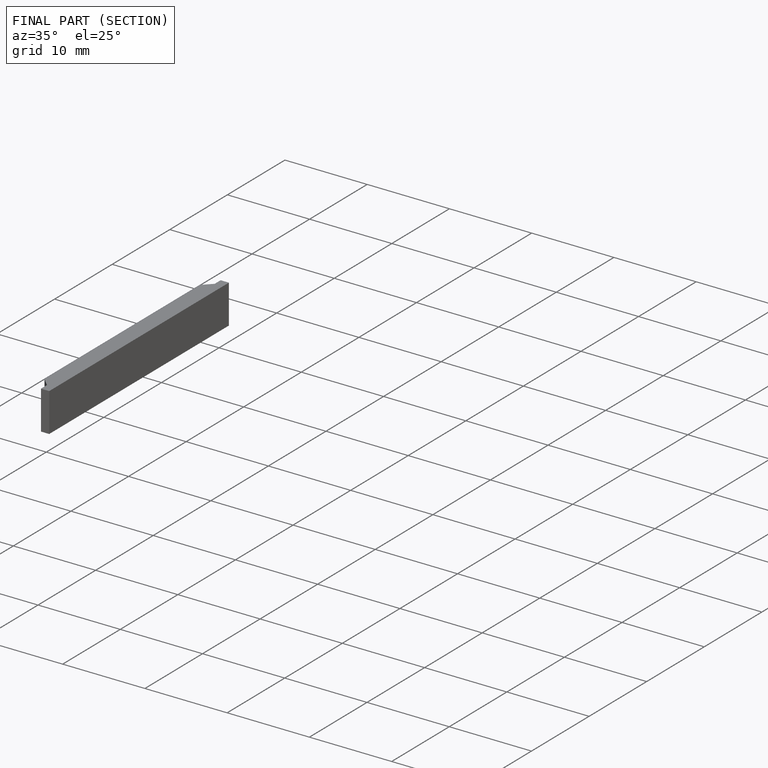
[diagram: finished part — half-section view (interior)]
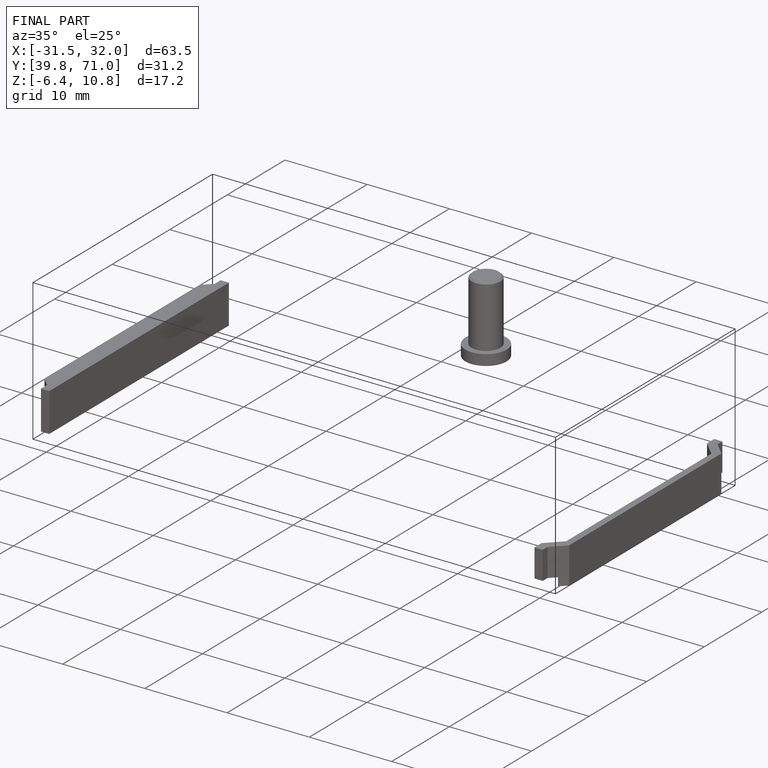
[diagram: finished part — iso view with bounding-box wireframe]
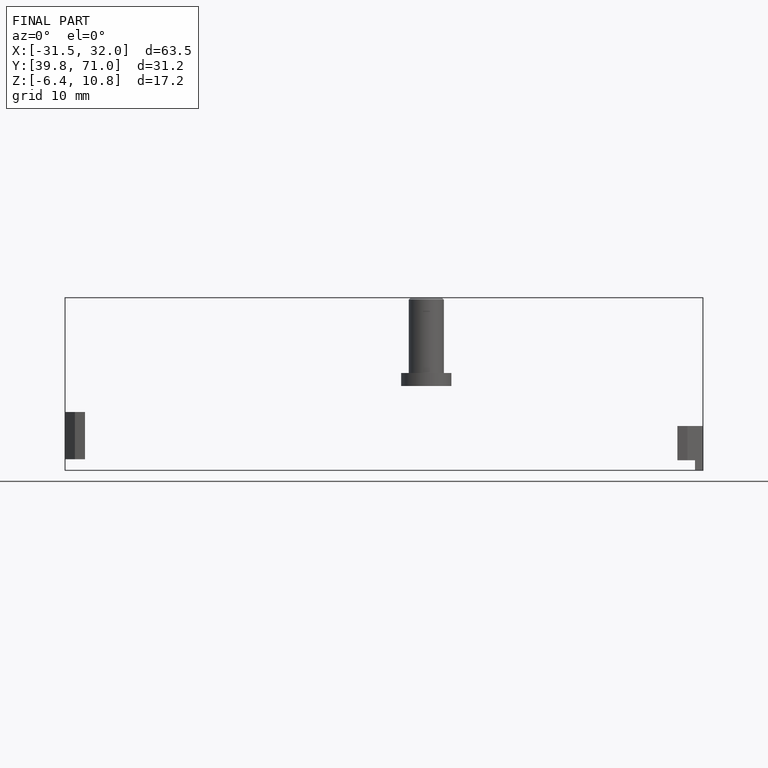
[diagram: finished part — front view with bounding-box wireframe]
